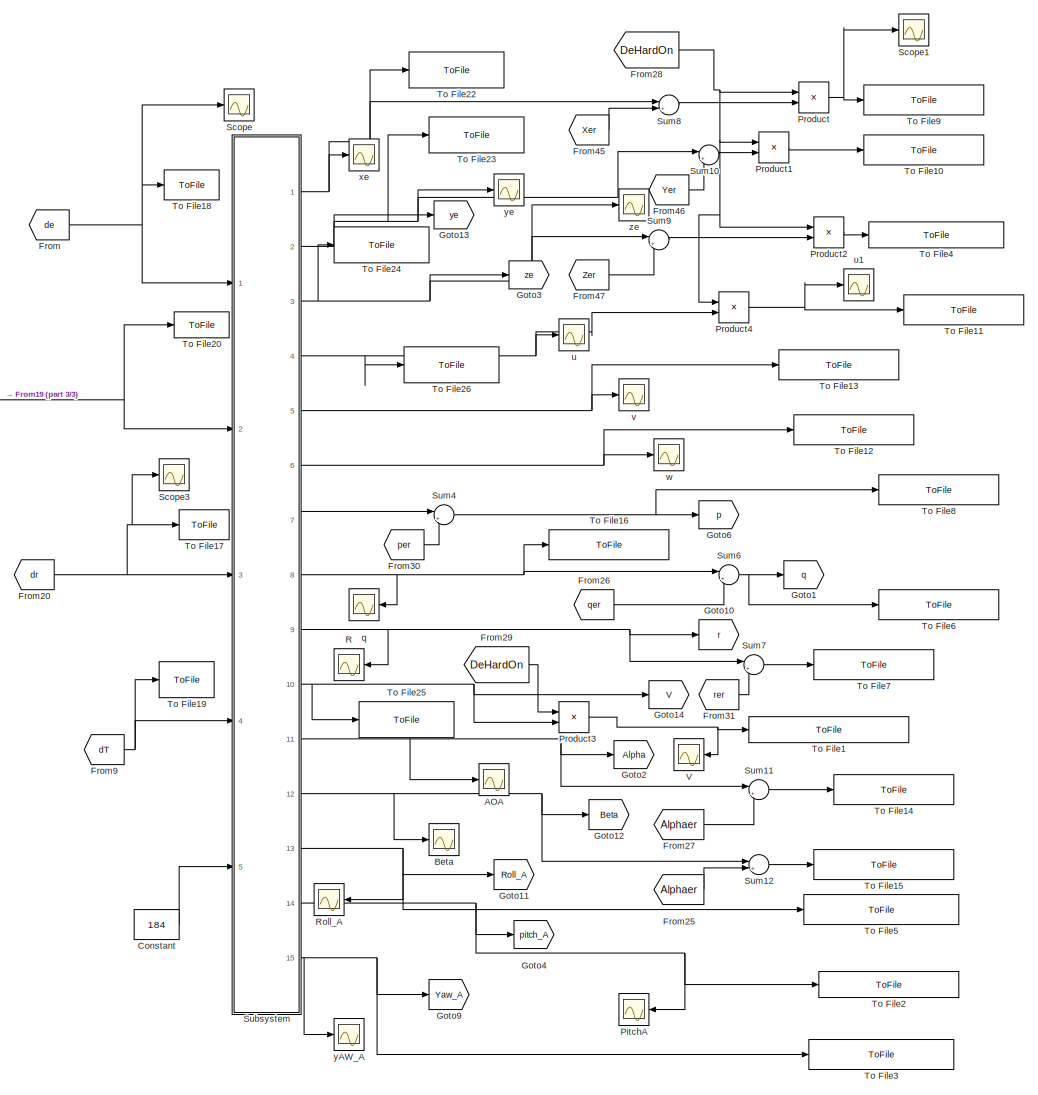
[diagram: root canvas - part 1/3, center side, full height]
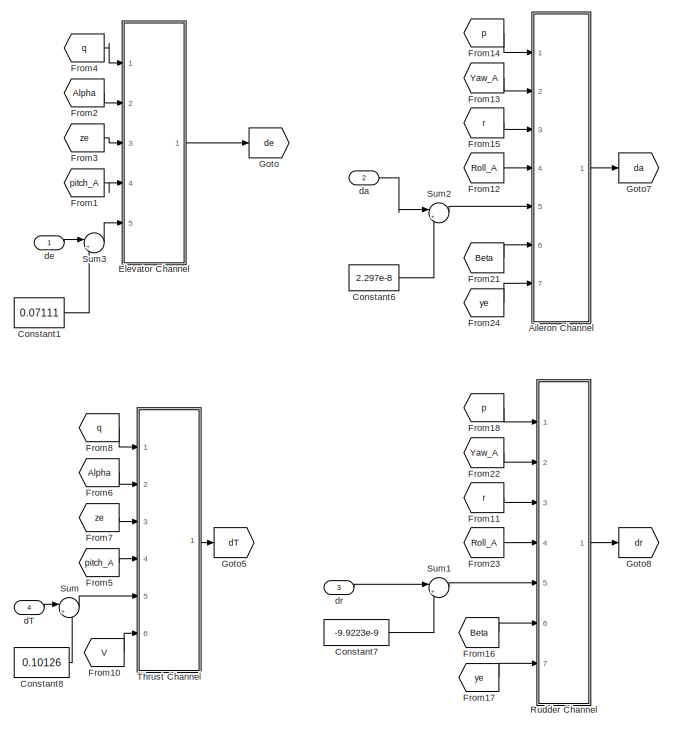
[diagram: root canvas - part 2/3, middle right region]
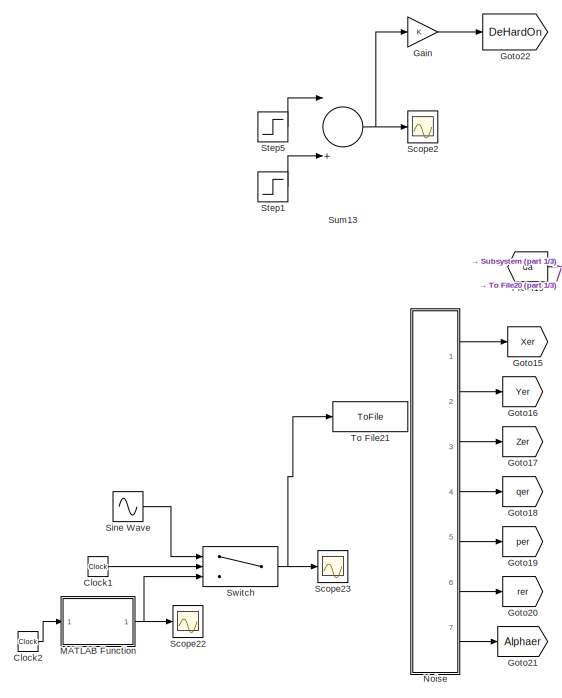
[diagram: root canvas - part 3/3, middle left region]
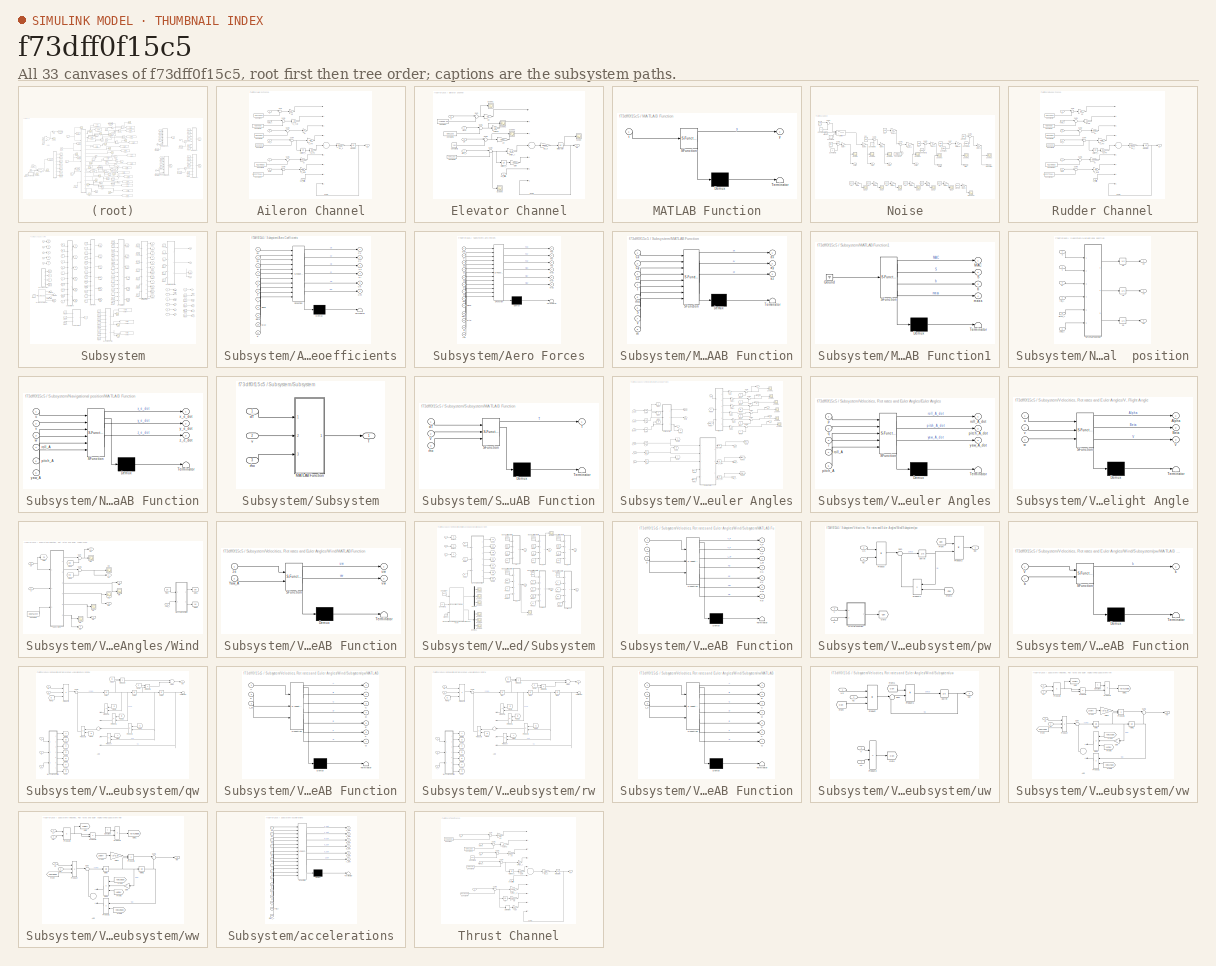
[diagram: thumbnail index - all 33 canvases of the model, root first then tree order]
MODEL slx_f73dff0f15c5
KIND model
CONFIG AbsTol = auto
CONFIG EnableMultiTasking = off
CONFIG FixedStep = auto
CONFIG MaxStep = auto
CONFIG MinStep = auto
CONFIG RelTol = 1e-3
CONFIG SampleTimeConstraint = Unconstrained
CONFIG Solver = VariableStepAuto
CONFIG SolverName = VariableStepAuto
CONFIG StartTime = 0.0
CONFIG StopTime = 200
BLOCK [Scope] AOA
  NumInputPorts = 1
  Ports = [1]
  ScopeSpecificationString = Simulink.scopes.TimeScopeBlockCfg('CurrentConfiguration', extmgr.ConfigurationSet(extmgr.Configuration('Core','General UI',true),extmgr.Configuration('Core','Source UI',true),extmgr.Configuration('Sources','WiredSimulink',true,'DataLoggingVariableName','ScopeData4'),extmgr.Configuration('Visuals','Time Domain',true,'SerializedDisplays',{struct('MinYLimReal','0.05051','MaxYLimReal','0.05129','YLabe...<+1445ch>
BLOCK [SubSystem] Aileron Channel
  Ports = [7, 1]
  RequestExecContextInheritance = off
  Variant = off
BLOCK [Inport] Aileron Channel/Beta
  IconDisplay = Port number
  Port = 6
BLOCK [Constant] Aileron Channel/Constant
  Value = -7.8474e-24
BLOCK [Constant] Aileron Channel/Constant1
  Value = 4.8875e-9
BLOCK [Constant] Aileron Channel/Constant2
  Value = 8.371e-23
BLOCK [Constant] Aileron Channel/Constant3
  Value = -1.2318e-8
BLOCK [Constant] Aileron Channel/Constant4
  Value = -5.5767751e-9
BLOCK [Constant] Aileron Channel/Constant5
  Value = -6.2148e-15
BLOCK [Integrator] Aileron Channel/Integrator
  InitialCondition = 2.297e-8
  LimitOutput = on
  LowerSaturationLimit = -0.3490658504
  Ports = [1, 1]
  UpperSaturationLimit = 0.3490658504
BLOCK [Integrator] Aileron Channel/KIpitch_A
  Ports = [1, 1]
BLOCK [Gain] Aileron Channel/K_Beta
  Gain = -0.05
  OutDataTypeStr = Inherit: Inherit via internal rule
  ParamDataTypeStr = Inherit: Inherit via internal rule
  SaturateOnIntegerOverflow = off
BLOCK [Gain] Aileron Channel/K_Phi
  Gain = -80
  OutDataTypeStr = Inherit: Inherit via internal rule
  ParamDataTypeStr = Inherit: Inherit via internal rule
  SaturateOnIntegerOverflow = off
BLOCK [Gain] Aileron Channel/K_YAW
  Gain = -20
  OutDataTypeStr = Inherit: Inherit via internal rule
  ParamDataTypeStr = Inherit: Inherit via internal rule
  SaturateOnIntegerOverflow = off
BLOCK [Gain] Aileron Channel/Ki_Phi
  Gain = -80
  OutDataTypeStr = Inherit: Inherit via internal rule
  ParamDataTypeStr = Inherit: Inherit via internal rule
  SaturateOnIntegerOverflow = off
BLOCK [Gain] Aileron Channel/Kq
  Gain = -15
  OutDataTypeStr = Inherit: Inherit via internal rule
  ParamDataTypeStr = Inherit: Inherit via internal rule
  SaturateOnIntegerOverflow = off
BLOCK [Gain] Aileron Channel/Kr
  Gain = -10
  OutDataTypeStr = Inherit: Inherit via internal rule
  ParamDataTypeStr = Inherit: Inherit via internal rule
  SaturateOnIntegerOverflow = off
BLOCK [Gain] Aileron Channel/Ky
  Gain = -0.015
  OutDataTypeStr = Inherit: Inherit via internal rule
  ParamDataTypeStr = Inherit: Inherit via internal rule
  SaturateOnIntegerOverflow = off
BLOCK [Inport] Aileron Channel/Phi_A
  IconDisplay = Port number
  Port = 4
BLOCK [Sum] Aileron Channel/Sum
  IconShape = round
  InputSameDT = off
  Inputs = |-+
  OutDataTypeStr = Inherit: Inherit via internal rule
  Ports = [2, 1]
  SaturateOnIntegerOverflow = off
BLOCK [Sum] Aileron Channel/Sum1
  IconShape = round
  InputSameDT = off
  Inputs = |-+
  OutDataTypeStr = Inherit: Inherit via internal rule
  Ports = [2, 1]
  SaturateOnIntegerOverflow = off
BLOCK [Sum] Aileron Channel/Sum2
  IconShape = round
  InputSameDT = off
  Inputs = |-+
  OutDataTypeStr = Inherit: Inherit via internal rule
  Ports = [2, 1]
  SaturateOnIntegerOverflow = off
BLOCK [Sum] Aileron Channel/Sum3
  InputSameDT = off
  Inputs = |++++++++-
  OutDataTypeStr = Inherit: Inherit via internal rule
  Ports = [9, 1]
  SaturateOnIntegerOverflow = off
BLOCK [Sum] Aileron Channel/Sum4
  IconShape = round
  InputSameDT = off
  Inputs = |-+
  OutDataTypeStr = Inherit: Inherit via internal rule
  Ports = [2, 1]
  SaturateOnIntegerOverflow = off
BLOCK [Sum] Aileron Channel/Sum5
  IconShape = round
  InputSameDT = off
  Inputs = |-+
  OutDataTypeStr = Inherit: Inherit via internal rule
  Ports = [2, 1]
  SaturateOnIntegerOverflow = off
BLOCK [Sum] Aileron Channel/Sum6
  IconShape = round
  InputSameDT = off
  Inputs = |-+
  OutDataTypeStr = Inherit: Inherit via internal rule
  Ports = [2, 1]
  SaturateOnIntegerOverflow = off
BLOCK [Inport] Aileron Channel/Yaw_A
  IconDisplay = Port number
  Port = 2
BLOCK [Outport] Aileron Channel/da
  IconDisplay = Port number
  OutMax = [0.3490658504]
  OutMin = [-0.3490658504]
BLOCK [Inport] Aileron Channel/da_Initital
  IconDisplay = Port number
  Port = 5
BLOCK [Inport] Aileron Channel/p
  IconDisplay = Port number
BLOCK [Inport] Aileron Channel/r
  IconDisplay = Port number
  Port = 3
BLOCK [Gain] Aileron Channel/tau_a
  Gain = 1/0.031
  OutDataTypeStr = Inherit: Inherit via internal rule
  ParamDataTypeStr = Inherit: Inherit via internal rule
  SaturateOnIntegerOverflow = off
BLOCK [Inport] Aileron Channel/y
  IconDisplay = Port number
  Port = 7
BLOCK [Scope] Beta 
  NumInputPorts = 1
  Ports = [1]
  ScopeSpecificationString = Simulink.scopes.TimeScopeBlockCfg('CurrentConfiguration', extmgr.ConfigurationSet(extmgr.Configuration('Core','General UI',true),extmgr.Configuration('Core','Source UI',true),extmgr.Configuration('Sources','WiredSimulink',true,'DataLoggingVariableName','ScopeData5'),extmgr.Configuration('Visuals','Time Domain',true,'SerializedDisplays',{struct('MinYLimReal','-0.00147','MaxYLimReal','0.00129','YLab...<+1446ch>
BLOCK [Clock] Clock1
BLOCK [Clock] Clock2
BLOCK [Constant] Constant
  Value = 184
BLOCK [Constant] Constant1
  Value = 0.07111
BLOCK [Constant] Constant6
  Value = 2.297e-8
BLOCK [Constant] Constant7
  Value = -9.9223e-9
BLOCK [Constant] Constant8
  Value = 0.10126
BLOCK [SubSystem] Elevator Channel
  Ports = [5, 1]
  RequestExecContextInheritance = off
  Variant = off
BLOCK [Inport] Elevator Channel/Alpha
  IconDisplay = Port number
  Port = 2
BLOCK [Constant] Elevator Channel/Constant
  Value = -7.7868e-20
BLOCK [Constant] Elevator Channel/Constant1
  Value = 0.051153
BLOCK [Constant] Elevator Channel/Constant2
  Value = 184
BLOCK [Constant] Elevator Channel/Constant3
  Value = 0.051153
BLOCK [Gain] Elevator Channel/Gain
  Gain = -0.016
  OutDataTypeStr = Inherit: Inherit via internal rule
  ParamDataTypeStr = Inherit: Inherit via internal rule
  SaturateOnIntegerOverflow = off
BLOCK [Integrator] Elevator Channel/Integrator
  InitialCondition = 0.07111
  LimitOutput = on
  LowerSaturationLimit = -0.6981317008
  Ports = [1, 1]
  UpperSaturationLimit = 0.3490658504
BLOCK [Integrator] Elevator Channel/KIpitch_A
  Ports = [1, 1]
BLOCK [Gain] Elevator Channel/KPitch_A
  Gain = -0.9
  OutDataTypeStr = Inherit: Inherit via internal rule
  ParamDataTypeStr = Inherit: Inherit via internal rule
  SaturateOnIntegerOverflow = off
BLOCK [Gain] Elevator Channel/Kalpha
  Gain = -5.1
  OutDataTypeStr = Inherit: Inherit via internal rule
  ParamDataTypeStr = Inherit: Inherit via internal rule
  SaturateOnIntegerOverflow = off
BLOCK [Gain] Elevator Channel/Kq
  Gain = -0.1
  OutDataTypeStr = Inherit: Inherit via internal rule
  ParamDataTypeStr = Inherit: Inherit via internal rule
  SaturateOnIntegerOverflow = off
BLOCK [Inport] Elevator Channel/Pitch_A
  IconDisplay = Port number
  Port = 4
BLOCK [Scope] Elevator Channel/Scope
  NumInputPorts = 1
  Ports = [1]
  ScopeSpecificationString = Simulink.scopes.TimeScopeBlockCfg('CurrentConfiguration', extmgr.ConfigurationSet(extmgr.Configuration('Core','General UI',true),extmgr.Configuration('Core','Source UI',true),extmgr.Configuration('Sources','WiredSimulink',true,'DataLoggingVariableName','ScopeData1'),extmgr.Configuration('Visuals','Time Domain',true,'SerializedDisplays',{struct('MinYLimReal','-0.82903','MaxYLimReal','0.47997','YLab...<+1413ch>
BLOCK [Scope] Elevator Channel/Scope1
  NumInputPorts = 1
  Ports = [1]
  ScopeSpecificationString = Simulink.scopes.TimeScopeBlockCfg('CurrentConfiguration', extmgr.ConfigurationSet(extmgr.Configuration('Core','General UI',true),extmgr.Configuration('Core','Source UI',true),extmgr.Configuration('Sources','WiredSimulink',true,'DataLoggingVariableName','ScopeData6'),extmgr.Configuration('Visuals','Time Domain',true,'SerializedDisplays',{struct('MinYLimReal','-0.01992','MaxYLimReal','-0.01252','YLa...<+1408ch>
BLOCK [Scope] Elevator Channel/Scope2
  NumInputPorts = 1
  Ports = [1]
  ScopeSpecificationString = Simulink.scopes.TimeScopeBlockCfg('CurrentConfiguration', extmgr.ConfigurationSet(extmgr.Configuration('Core','General UI',true),extmgr.Configuration('Core','Source UI',true),extmgr.Configuration('Sources','WiredSimulink',true,'DataLoggingVariableName','ScopeData7'),extmgr.Configuration('Visuals','Time Domain',true,'SerializedDisplays',{struct('MinYLimReal','-0.00683','MaxYLimReal','0.00673','YLab...<+1363ch>
BLOCK [Scope] Elevator Channel/Scope3
  NumInputPorts = 1
  Ports = [1]
  ScopeSpecificationString = Simulink.scopes.TimeScopeBlockCfg('CurrentConfiguration', extmgr.ConfigurationSet(extmgr.Configuration('Core','General UI',true),extmgr.Configuration('Core','Source UI',true),extmgr.Configuration('Sources','WiredSimulink',true,'DataLoggingVariableName','ScopeData8'),extmgr.Configuration('Visuals','Time Domain',true,'SerializedDisplays',{struct('MinYLimReal','-4.42364','MaxYLimReal','4.22355','YLab...<+1363ch>
BLOCK [Scope] Elevator Channel/Scope5
  NumInputPorts = 1
  Ports = [1]
  ScopeSpecificationString = Simulink.scopes.TimeScopeBlockCfg('CurrentConfiguration', extmgr.ConfigurationSet(extmgr.Configuration('Core','General UI',true),extmgr.Configuration('Core','Source UI',true),extmgr.Configuration('Sources','WiredSimulink',true,'DataLoggingVariableName','ScopeData10'),extmgr.Configuration('Visuals','Time Domain',true,'SerializedDisplays',{struct('MinYLimReal','-0.00892','MaxYLimReal','0.00603','YLa...<+1364ch>
BLOCK [Sum] Elevator Channel/Sum
  IconShape = round
  InputSameDT = off
  Inputs = |-+
  OutDataTypeStr = Inherit: Inherit via internal rule
  Ports = [2, 1]
  SaturateOnIntegerOverflow = off
BLOCK [Sum] Elevator Channel/Sum1
  IconShape = round
  InputSameDT = off
  Inputs = |-+
  OutDataTypeStr = Inherit: Inherit via internal rule
  Ports = [2, 1]
  SaturateOnIntegerOverflow = off
BLOCK [Sum] Elevator Channel/Sum2
  IconShape = round
  InputSameDT = off
  Inputs = |-+
  OutDataTypeStr = Inherit: Inherit via internal rule
  Ports = [2, 1]
  SaturateOnIntegerOverflow = off
BLOCK [Sum] Elevator Channel/Sum3
  InputSameDT = off
  Inputs = |++++++-
  OutDataTypeStr = Inherit: Inherit via internal rule
  Ports = [7, 1]
  SaturateOnIntegerOverflow = off
BLOCK [Sum] Elevator Channel/Sum4
  IconShape = round
  InputSameDT = off
  Inputs = |-+
  OutDataTypeStr = Inherit: Inherit via internal rule
  Ports = [2, 1]
  SaturateOnIntegerOverflow = off
BLOCK [Inport] Elevator Channel/Ze
  IconDisplay = Port number
  Port = 3
BLOCK [Outport] Elevator Channel/de
  IconDisplay = Port number
  OutMax = [0.3490658504]
  OutMin = [-0.6981317008504]
BLOCK [Inport] Elevator Channel/de_Initital
  IconDisplay = Port number
  Port = 5
BLOCK [Inport] Elevator Channel/q
  IconDisplay = Port number
BLOCK [Gain] Elevator Channel/tau_e
  Gain = 1/0.031
  OutDataTypeStr = Inherit: Inherit via internal rule
  ParamDataTypeStr = Inherit: Inherit via internal rule
  SaturateOnIntegerOverflow = off
BLOCK [Gain] Elevator Channel/ze
  Gain = -0.001
  OutDataTypeStr = Inherit: Inherit via internal rule
  ParamDataTypeStr = Inherit: Inherit via internal rule
  SaturateOnIntegerOverflow = off
BLOCK [From] From
  GotoTag = de
BLOCK [From] From1
  GotoTag = pitch_A
BLOCK [From] From10
  GotoTag = V
BLOCK [From] From11
  GotoTag = r
BLOCK [From] From12
  GotoTag = Roll_A
BLOCK [From] From13
  GotoTag = Yaw_A
BLOCK [From] From14
  GotoTag = p
BLOCK [From] From15
  GotoTag = r
BLOCK [From] From16
  GotoTag = Beta
BLOCK [From] From17
  GotoTag = ye
BLOCK [From] From18
  GotoTag = p
BLOCK [From] From19
  GotoTag = da
BLOCK [From] From2
  GotoTag = Alpha
BLOCK [From] From20
  GotoTag = dr
BLOCK [From] From21
  GotoTag = Beta
BLOCK [From] From22
  GotoTag = Yaw_A
BLOCK [From] From23
  GotoTag = Roll_A
BLOCK [From] From24
  GotoTag = ye
BLOCK [From] From25
  GotoTag = Alphaer
  TagVisibility = global
BLOCK [From] From26
  GotoTag = qer
  TagVisibility = global
BLOCK [From] From27
  GotoTag = Alphaer
  TagVisibility = global
BLOCK [From] From28
  GotoTag = DeHardOn
  TagVisibility = global
BLOCK [From] From29
  GotoTag = DeHardOn
  TagVisibility = global
BLOCK [From] From3
  GotoTag = ze
BLOCK [From] From30
  GotoTag = per
  TagVisibility = global
BLOCK [From] From31
  GotoTag = rer
  TagVisibility = global
BLOCK [From] From4
  GotoTag = q
BLOCK [From] From45
  GotoTag = Xer
  TagVisibility = global
BLOCK [From] From46
  GotoTag = Yer
  TagVisibility = global
BLOCK [From] From47
  GotoTag = Zer
  TagVisibility = global
BLOCK [From] From5
  GotoTag = pitch_A
BLOCK [From] From6
  GotoTag = Alpha
BLOCK [From] From7
  GotoTag = ze
BLOCK [From] From8
  GotoTag = q
BLOCK [From] From9
  GotoTag = dT
BLOCK [Gain] Gain
  OutDataTypeStr = Inherit: Inherit via internal rule
  ParamDataTypeStr = Inherit: Inherit via internal rule
  SaturateOnIntegerOverflow = off
BLOCK [Goto] Goto
  GotoTag = de
BLOCK [Goto] Goto1
  GotoTag = q
BLOCK [Goto] Goto10
  GotoTag = r
BLOCK [Goto] Goto11
  GotoTag = Roll_A
BLOCK [Goto] Goto12
  GotoTag = Beta
BLOCK [Goto] Goto13
  GotoTag = ye
BLOCK [Goto] Goto14
  GotoTag = V
BLOCK [Goto] Goto15
  GotoTag = Xer
  TagVisibility = global
BLOCK [Goto] Goto16
  GotoTag = Yer
  TagVisibility = global
BLOCK [Goto] Goto17
  GotoTag = Zer
  TagVisibility = global
BLOCK [Goto] Goto18
  GotoTag = qer
  TagVisibility = global
BLOCK [Goto] Goto19
  GotoTag = per
  TagVisibility = global
BLOCK [Goto] Goto2
  GotoTag = Alpha
BLOCK [Goto] Goto20
  GotoTag = rer
  TagVisibility = global
BLOCK [Goto] Goto21
  GotoTag = Alphaer
  TagVisibility = global
BLOCK [Goto] Goto22
  GotoTag = DeHardOn
  TagVisibility = global
BLOCK [Goto] Goto3
  GotoTag = ze
BLOCK [Goto] Goto4
  GotoTag = pitch_A
BLOCK [Goto] Goto5
  GotoTag = dT
BLOCK [Goto] Goto6
  GotoTag = p
BLOCK [Goto] Goto7
  GotoTag = da
BLOCK [Goto] Goto8
  GotoTag = dr
BLOCK [Goto] Goto9
  GotoTag = Yaw_A
BLOCK [SubSystem] MATLAB Function
  ErrorFcn = Stateflow.Translate.translate
  PermitHierarchicalResolution = ExplicitOnly
  Ports = [1, 1]
  RequestExecContextInheritance = off
  SFBlockType = MATLAB Function
  TreatAsAtomicUnit = on
  Variant = off
BLOCK [Demux] MATLAB Function/ Demux 
  Outputs = 1
  Ports = [1, 1]
BLOCK [S-Function] MATLAB Function/ SFunction 
  EnableBusSupport = on
  FunctionName = sf_sfun
  PortCounts = [1 2]
  Ports = [1, 2]
  SFcnIsStateOwnerBlock = off
  SFunctionDeploymentMode = off
  Tag = Stateflow S-Function FlightDynamicModelBlackOut 15
BLOCK [Terminator] MATLAB Function/ Terminator 
BLOCK [Inport] MATLAB Function/t
  IconDisplay = Port number
BLOCK [Outport] MATLAB Function/y
  IconDisplay = Port number
BLOCK [SubSystem] Noise
  Ports = [0, 7]
  RequestExecContextInheritance = off
  Variant = off
BLOCK [UniformRandomNumber] Noise/AlphaEr
  Maximum = 0.001*0.1014*pi/180
  Minimum = -0.001*0.1014*pi/180
  SampleTime = 0.1
BLOCK [Outport] Noise/Alphaerror
  IconDisplay = Port number
  Port = 7
BLOCK [Clock] Noise/Clock1
BLOCK [Constant] Noise/Constant
  Value = 0.1*pi/180
BLOCK [Constant] Noise/Constant1
  Value = 2*pi/180
BLOCK [Constant] Noise/Constant2
  Value = 0.1*pi/180
BLOCK [Constant] Noise/Constant3
  Value = 5
BLOCK [Constant] Noise/Constant4
  Value = 2
BLOCK [Constant] Noise/Constant5
  Value = 4
BLOCK [Constant] Noise/Constant6
  Value = 0.1*pi/180
BLOCK [Constant] Noise/Constant7
  Value = 0
BLOCK [Gain] Noise/Gain
  Gain = 0.2
  OutDataTypeStr = Inherit: Inherit via internal rule
  ParamDataTypeStr = Inherit: Inherit via internal rule
  SaturateOnIntegerOverflow = off
BLOCK [Gain] Noise/Gain1
  Gain = 0.2
  OutDataTypeStr = Inherit: Inherit via internal rule
  ParamDataTypeStr = Inherit: Inherit via internal rule
  SaturateOnIntegerOverflow = off
BLOCK [Gain] Noise/Gain10
  Gain = 0
  OutDataTypeStr = Inherit: Inherit via internal rule
  ParamDataTypeStr = Inherit: Inherit via internal rule
  SaturateOnIntegerOverflow = off
BLOCK [Gain] Noise/Gain11
  Gain = 0
  OutDataTypeStr = Inherit: Inherit via internal rule
  ParamDataTypeStr = Inherit: Inherit via internal rule
  SaturateOnIntegerOverflow = off
BLOCK [Gain] Noise/Gain12
  Gain = 0
  OutDataTypeStr = Inherit: Inherit via internal rule
  ParamDataTypeStr = Inherit: Inherit via internal rule
  SaturateOnIntegerOverflow = off
BLOCK [Gain] Noise/Gain13
  Gain = 0
  OutDataTypeStr = Inherit: Inherit via internal rule
  ParamDataTypeStr = Inherit: Inherit via internal rule
  SaturateOnIntegerOverflow = off
BLOCK [Gain] Noise/Gain14
  Gain = 0.1
  OutDataTypeStr = Inherit: Inherit via internal rule
  ParamDataTypeStr = Inherit: Inherit via internal rule
  SaturateOnIntegerOverflow = off
BLOCK [Gain] Noise/Gain2
  Gain = 0.2
  OutDataTypeStr = Inherit: Inherit via internal rule
  ParamDataTypeStr = Inherit: Inherit via internal rule
  SaturateOnIntegerOverflow = off
BLOCK [Gain] Noise/Gain3
  Gain = 0.2
  OutDataTypeStr = Inherit: Inherit via internal rule
  ParamDataTypeStr = Inherit: Inherit via internal rule
  SaturateOnIntegerOverflow = off
BLOCK [Gain] Noise/Gain4
  Gain = 0.2
  OutDataTypeStr = Inherit: Inherit via internal rule
  ParamDataTypeStr = Inherit: Inherit via internal rule
  SaturateOnIntegerOverflow = off
BLOCK [Gain] Noise/Gain5
  Gain = 0.2
  OutDataTypeStr = Inherit: Inherit via internal rule
  ParamDataTypeStr = Inherit: Inherit via internal rule
  SaturateOnIntegerOverflow = off
BLOCK [Gain] Noise/Gain6
  Gain = 0.2
  OutDataTypeStr = Inherit: Inherit via internal rule
  ParamDataTypeStr = Inherit: Inherit via internal rule
  SaturateOnIntegerOverflow = off
BLOCK [Gain] Noise/Gain7
  Gain = 0
  OutDataTypeStr = Inherit: Inherit via internal rule
  ParamDataTypeStr = Inherit: Inherit via internal rule
  SaturateOnIntegerOverflow = off
BLOCK [Gain] Noise/Gain8
  Gain = 0
  OutDataTypeStr = Inherit: Inherit via internal rule
  ParamDataTypeStr = Inherit: Inherit via internal rule
  SaturateOnIntegerOverflow = off
BLOCK [Gain] Noise/Gain9
  Gain = 0
  OutDataTypeStr = Inherit: Inherit via internal rule
  ParamDataTypeStr = Inherit: Inherit via internal rule
  SaturateOnIntegerOverflow = off
BLOCK [Scope] Noise/Scope
  NumInputPorts = 1
  Ports = [1]
  ScopeSpecificationString = Simulink.scopes.TimeScopeBlockCfg('CurrentConfiguration', extmgr.ConfigurationSet(extmgr.Configuration('Core','General UI',true),extmgr.Configuration('Core','Source UI',true),extmgr.Configuration('Sources','WiredSimulink',true,'DataLoggingVariableName','ScopeData15'),extmgr.Configuration('Visuals','Time Domain',true),extmgr.Configuration('Tools','Plot Navigation',true),extmgr.Configuration('Tools'...<+41ch>
BLOCK [Scope] Noise/Scope1
  NumInputPorts = 1
  Ports = [1]
  ScopeSpecificationString = Simulink.scopes.TimeScopeBlockCfg('CurrentConfiguration', extmgr.ConfigurationSet(extmgr.Configuration('Core','General UI',true),extmgr.Configuration('Core','Source UI',true),extmgr.Configuration('Sources','WiredSimulink',true,'DataLoggingVariableName','ScopeData10'),extmgr.Configuration('Visuals','Time Domain',true,'SerializedDisplays',{struct('MinYLimReal','-1.00000','MaxYLimReal','1.00000','YLa...<+1366ch>
BLOCK [Scope] Noise/Scope2
  NumInputPorts = 1
  Ports = [1]
  ScopeSpecificationString = Simulink.scopes.TimeScopeBlockCfg('CurrentConfiguration', extmgr.ConfigurationSet(extmgr.Configuration('Core','General UI',true),extmgr.Configuration('Core','Source UI',true),extmgr.Configuration('Sources','WiredSimulink',true,'DataLoggingVariableName','ScopeData2'),extmgr.Configuration('Visuals','Time Domain',true,'SerializedDisplays',{struct('MinYLimReal','-0.00441','MaxYLimReal','0.00441','YLab...<+1366ch>
BLOCK [Scope] Noise/Scope3
  NumInputPorts = 1
  Ports = [1]
  ScopeSpecificationString = Simulink.scopes.TimeScopeBlockCfg('CurrentConfiguration', extmgr.ConfigurationSet(extmgr.Configuration('Core','General UI',true),extmgr.Configuration('Core','Source UI',true),extmgr.Configuration('Sources','WiredSimulink',true,'DataLoggingVariableName','ScopeData11'),extmgr.Configuration('Visuals','Time Domain',true,'SerializedDisplays',{struct('MinYLimReal','-1.00000','MaxYLimReal','1.00000','YLa...<+1366ch>
BLOCK [Scope] Noise/Scope4
  NumInputPorts = 1
  Ports = [1]
  ScopeSpecificationString = Simulink.scopes.TimeScopeBlockCfg('CurrentConfiguration', extmgr.ConfigurationSet(extmgr.Configuration('Core','General UI',true),extmgr.Configuration('Core','Source UI',true),extmgr.Configuration('Sources','WiredSimulink',true,'DataLoggingVariableName','ScopeData12'),extmgr.Configuration('Visuals','Time Domain',true,'SerializedDisplays',{struct('MinYLimReal','0.0174529','MaxYLimReal','0.01745365',...<+1384ch>
BLOCK [Scope] Noise/Scope5
  NumInputPorts = 1
  Ports = [1]
  ScopeSpecificationString = Simulink.scopes.TimeScopeBlockCfg('CurrentConfiguration', extmgr.ConfigurationSet(extmgr.Configuration('Core','General UI',true),extmgr.Configuration('Core','Source UI',true),extmgr.Configuration('Sources','WiredSimulink',true,'DataLoggingVariableName','ScopeData13'),extmgr.Configuration('Visuals','Time Domain',true,'SerializedDisplays',{struct('MinYLimReal','-0.00441','MaxYLimReal','0.00441','YLa...<+1367ch>
BLOCK [Scope] Noise/Scope6
  NumInputPorts = 1
  Ports = [1]
  ScopeSpecificationString = Simulink.scopes.TimeScopeBlockCfg('CurrentConfiguration', extmgr.ConfigurationSet(extmgr.Configuration('Core','General UI',true),extmgr.Configuration('Core','Source UI',true),extmgr.Configuration('Sources','WiredSimulink',true,'DataLoggingVariableName','ScopeData14'),extmgr.Configuration('Visuals','Time Domain',true,'SerializedDisplays',{struct('MinYLimReal','-0.00441','MaxYLimReal','0.00441','YLa...<+1367ch>
BLOCK [Sum] Noise/Sum
  IconShape = round
  InputSameDT = off
  Inputs = |++
  OutDataTypeStr = Inherit: Inherit via internal rule
  Ports = [2, 1]
  SaturateOnIntegerOverflow = off
BLOCK [Sum] Noise/Sum1
  IconShape = round
  InputSameDT = off
  Inputs = |++
  OutDataTypeStr = Inherit: Inherit via internal rule
  Ports = [2, 1]
  SaturateOnIntegerOverflow = off
BLOCK [Sum] Noise/Sum2
  IconShape = round
  InputSameDT = off
  Inputs = |++
  OutDataTypeStr = Inherit: Inherit via internal rule
  Ports = [2, 1]
  SaturateOnIntegerOverflow = off
BLOCK [Sum] Noise/Sum3
  IconShape = round
  InputSameDT = off
  Inputs = |++
  OutDataTypeStr = Inherit: Inherit via internal rule
  Ports = [2, 1]
  SaturateOnIntegerOverflow = off
BLOCK [Sum] Noise/Sum4
  IconShape = round
  InputSameDT = off
  Inputs = |++
  OutDataTypeStr = Inherit: Inherit via internal rule
  Ports = [2, 1]
  SaturateOnIntegerOverflow = off
BLOCK [Sum] Noise/Sum5
  IconShape = round
  InputSameDT = off
  Inputs = |++
  OutDataTypeStr = Inherit: Inherit via internal rule
  Ports = [2, 1]
  SaturateOnIntegerOverflow = off
BLOCK [Sum] Noise/Sum6
  IconShape = round
  InputSameDT = off
  Inputs = |++
  OutDataTypeStr = Inherit: Inherit via internal rule
  Ports = [2, 1]
  SaturateOnIntegerOverflow = off
BLOCK [Switch] Noise/Switch
  InputSameDT = off
  SaturateOnIntegerOverflow = off
  Threshold = 20
BLOCK [Reference] Noise/Xe  REF=simulink/Sources/Band-Limited
White Noise
  Ports = [0, 1]
  SourceBlock = simulink/Sources/Band-Limited\nWhite Noise
  SourceProductBaseCode = SL
  SourceProductName = Simulink
  SourceType = Band-Limited White Noise.
BLOCK [Scope] Noise/XeSc
  NumInputPorts = 1
  Ports = [1]
  ScopeSpecificationString = Simulink.scopes.TimeScopeBlockCfg('CurrentConfiguration', extmgr.ConfigurationSet(extmgr.Configuration('Core','General UI',true),extmgr.Configuration('Core','Source UI',true),extmgr.Configuration('Sources','WiredSimulink',true,'DataLoggingVariableName','ScopeData3'),extmgr.Configuration('Visuals','Time Domain',true,'SerializedDisplays',{struct('MinYLimReal','-12.86598','MaxYLimReal','13.82401','YL...<+1367ch>
BLOCK [UniformRandomNumber] Noise/Xer
  Maximum = 2
  Minimum = -2
  SampleTime = 0.1
BLOCK [Outport] Noise/Xerror
  IconDisplay = Port number
BLOCK [Reference] Noise/Ye  REF=simulink/Sources/Band-Limited
White Noise
  Ports = [0, 1]
  SourceBlock = simulink/Sources/Band-Limited\nWhite Noise
  SourceProductBaseCode = SL
  SourceProductName = Simulink
  SourceType = Band-Limited White Noise.
BLOCK [Scope] Noise/YeSc
  NumInputPorts = 1
  Ports = [1]
  ScopeSpecificationString = Simulink.scopes.TimeScopeBlockCfg('CurrentConfiguration', extmgr.ConfigurationSet(extmgr.Configuration('Core','General UI',true),extmgr.Configuration('Core','Source UI',true),extmgr.Configuration('Sources','WiredSimulink',true,'DataLoggingVariableName','ScopeData5'),extmgr.Configuration('Visuals','Time Domain',true,'SerializedDisplays',{struct('MinYLimReal','-0.6433','MaxYLimReal','0.6912','YLabel...<+1358ch>
BLOCK [UniformRandomNumber] Noise/Yer
  Maximum = 0.05
  Minimum = -0.05
  SampleTime = 0.1
BLOCK [Outport] Noise/Yerror
  IconDisplay = Port number
  Port = 2
BLOCK [Reference] Noise/Ze  REF=simulink/Sources/Band-Limited
White Noise
  Ports = [0, 1]
  SourceBlock = simulink/Sources/Band-Limited\nWhite Noise
  SourceProductBaseCode = SL
  SourceProductName = Simulink
  SourceType = Band-Limited White Noise.
BLOCK [Scope] Noise/ZeSc
  NumInputPorts = 1
  Ports = [1]
  ScopeSpecificationString = Simulink.scopes.TimeScopeBlockCfg('CurrentConfiguration', extmgr.ConfigurationSet(extmgr.Configuration('Core','General UI',true),extmgr.Configuration('Core','Source UI',true),extmgr.Configuration('Sources','WiredSimulink',true,'DataLoggingVariableName','ScopeData6'),extmgr.Configuration('Visuals','Time Domain',true,'SerializedDisplays',{struct('MinYLimReal','-0.90976','MaxYLimReal','0.97751','YLab...<+1364ch>
BLOCK [UniformRandomNumber] Noise/Zer
  SampleTime = 0.1
BLOCK [Outport] Noise/Zerror
  IconDisplay = Port number
  Port = 3
BLOCK [Reference] Noise/alphae  REF=simulink/Sources/Band-Limited
White Noise
  Ports = [0, 1]
  SourceBlock = simulink/Sources/Band-Limited\nWhite Noise
  SourceProductBaseCode = SL
  SourceProductName = Simulink
  SourceType = Band-Limited White Noise.
BLOCK [Scope] Noise/alphaeSc
  NumInputPorts = 1
  Ports = [1]
  ScopeSpecificationString = Simulink.scopes.TimeScopeBlockCfg('CurrentConfiguration', extmgr.ConfigurationSet(extmgr.Configuration('Core','General UI',true),extmgr.Configuration('Core','Source UI',true),extmgr.Configuration('Sources','WiredSimulink',true,'DataLoggingVariableName','ScopeData8'),extmgr.Configuration('Visuals','Time Domain',true,'SerializedDisplays',{struct('MinYLimReal','-0.00257','MaxYLimReal','0.00276','YLab...<+1364ch>
BLOCK [UniformRandomNumber] Noise/pEr
  Maximum = 0.001*1.8707*pi/180
  Minimum = -0.001*1.8707*pi/180
  SampleTime = 0.1
BLOCK [Reference] Noise/pe  REF=simulink/Sources/Band-Limited
White Noise
  Ports = [0, 1]
  SourceBlock = simulink/Sources/Band-Limited\nWhite Noise
  SourceProductBaseCode = SL
  SourceProductName = Simulink
  SourceType = Band-Limited White Noise.
BLOCK [Scope] Noise/peSc
  NumInputPorts = 1
  Ports = [1]
  ScopeSpecificationString = Simulink.scopes.TimeScopeBlockCfg('CurrentConfiguration', extmgr.ConfigurationSet(extmgr.Configuration('Core','General UI',true),extmgr.Configuration('Core','Source UI',true),extmgr.Configuration('Sources','WiredSimulink',true,'DataLoggingVariableName','ScopeData7'),extmgr.Configuration('Visuals','Time Domain',true,'SerializedDisplays',{struct('MinYLimReal','-2.94144','MaxYLimReal','3.76225','YLab...<+1359ch>
BLOCK [Outport] Noise/perror
  IconDisplay = Port number
  Port = 5
BLOCK [UniformRandomNumber] Noise/qEr
  Maximum = 0.001*1.8707*pi/180
  Minimum = -0.001*1.8707*pi/180
  SampleTime = 0.1
BLOCK [Reference] Noise/qe  REF=simulink/Sources/Band-Limited
White Noise
  Ports = [0, 1]
  SourceBlock = simulink/Sources/Band-Limited\nWhite Noise
  SourceProductBaseCode = SL
  SourceProductName = Simulink
  SourceType = Band-Limited White Noise.
BLOCK [Scope] Noise/qeSc
  NumInputPorts = 1
  Ports = [1]
  ScopeSpecificationString = Simulink.scopes.TimeScopeBlockCfg('CurrentConfiguration', extmgr.ConfigurationSet(extmgr.Configuration('Core','General UI',true),extmgr.Configuration('Core','Source UI',true),extmgr.Configuration('Sources','WiredSimulink',true,'DataLoggingVariableName','ScopeData4'),extmgr.Configuration('Visuals','Time Domain',true,'SerializedDisplays',{struct('MinYLimReal','-0.02877','MaxYLimReal','0.03091','YLab...<+1364ch>
BLOCK [Outport] Noise/qerror
  IconDisplay = Port number
  Port = 4
BLOCK [UniformRandomNumber] Noise/rEr
  Maximum = 0.001*1.8707*pi/180
  Minimum = -0.001*1.8707*pi/180
  SampleTime = 0.1
BLOCK [Reference] Noise/re  REF=simulink/Sources/Band-Limited
White Noise
  Ports = [0, 1]
  SourceBlock = simulink/Sources/Band-Limited\nWhite Noise
  SourceProductBaseCode = SL
  SourceProductName = Simulink
  SourceType = Band-Limited White Noise.
BLOCK [Scope] Noise/reSc
  NumInputPorts = 1
  Ports = [1]
  ScopeSpecificationString = Simulink.scopes.TimeScopeBlockCfg('CurrentConfiguration', extmgr.ConfigurationSet(extmgr.Configuration('Core','General UI',true),extmgr.Configuration('Core','Source UI',true),extmgr.Configuration('Sources','WiredSimulink',true,'DataLoggingVariableName','ScopeData9'),extmgr.Configuration('Visuals','Time Domain',true,'SerializedDisplays',{struct('MinYLimReal','-0.02877','MaxYLimReal','0.03091','YLab...<+1364ch>
BLOCK [Outport] Noise/rerror
  IconDisplay = Port number
  Port = 6
BLOCK [Scope] PitchA
  NumInputPorts = 1
  Ports = [1]
  ScopeSpecificationString = Simulink.scopes.TimeScopeBlockCfg('CurrentConfiguration', extmgr.ConfigurationSet(extmgr.Configuration('Core','General UI',true),extmgr.Configuration('Core','Source UI',true),extmgr.Configuration('Sources','WiredSimulink',true,'DataLoggingVariableName','ScopeData1'),extmgr.Configuration('Visuals','Time Domain',true,'SerializedDisplays',{struct('MinYLimReal','0.051143','MaxYLimReal','0.05123','YLab...<+1446ch>
BLOCK [Product] Product
  InputSameDT = off
  OutDataTypeStr = Inherit: Inherit via internal rule
  Ports = [2, 1]
  RndMeth = Floor
  SaturateOnIntegerOverflow = off
BLOCK [Product] Product1
  InputSameDT = off
  OutDataTypeStr = Inherit: Inherit via internal rule
  Ports = [2, 1]
  RndMeth = Floor
  SaturateOnIntegerOverflow = off
BLOCK [Product] Product2
  InputSameDT = off
  OutDataTypeStr = Inherit: Inherit via internal rule
  Ports = [2, 1]
  RndMeth = Floor
  SaturateOnIntegerOverflow = off
BLOCK [Product] Product3
  InputSameDT = off
  OutDataTypeStr = Inherit: Inherit via internal rule
  Ports = [2, 1]
  RndMeth = Floor
  SaturateOnIntegerOverflow = off
BLOCK [Product] Product4
  InputSameDT = off
  OutDataTypeStr = Inherit: Inherit via internal rule
  Ports = [2, 1]
  RndMeth = Floor
  SaturateOnIntegerOverflow = off
BLOCK [Scope] R 
  NumInputPorts = 1
  Ports = [1]
  ScopeSpecificationString = Simulink.scopes.TimeScopeBlockCfg('CurrentConfiguration', extmgr.ConfigurationSet(extmgr.Configuration('Core','General UI',true),extmgr.Configuration('Core','Source UI',true),extmgr.Configuration('Sources','WiredSimulink',true,'DataLoggingVariableName','ScopeData6'),extmgr.Configuration('Visuals','Time Domain',true,'SerializedDisplays',{struct('MinYLimReal','-0.14964','MaxYLimReal','0.11679','YLab...<+1443ch>
BLOCK [Scope] Roll_A 
  NumInputPorts = 1
  Ports = [1]
  ScopeSpecificationString = Simulink.scopes.TimeScopeBlockCfg('CurrentConfiguration', extmgr.ConfigurationSet(extmgr.Configuration('Core','General UI',true),extmgr.Configuration('Core','Source UI',true),extmgr.Configuration('Sources','WiredSimulink',true,'DataLoggingVariableName','ScopeData7'),extmgr.Configuration('Visuals','Time Domain',true,'SerializedDisplays',{struct('MinYLimReal','-0.01219','MaxYLimReal','0.00868','YLab...<+1444ch>
BLOCK [SubSystem] Rudder Channel
  Ports = [7, 1]
  RequestExecContextInheritance = off
  Variant = off
BLOCK [Inport] Rudder Channel/Beta
  IconDisplay = Port number
  Port = 6
BLOCK [Constant] Rudder Channel/Constant10
  Value = -5.5767751e-9
BLOCK [Constant] Rudder Channel/Constant11
  Value = -6.2148e-15
BLOCK [Constant] Rudder Channel/Constant6
  Value = -7.8474e-24
BLOCK [Constant] Rudder Channel/Constant7
  Value = 4.8875e-9
BLOCK [Constant] Rudder Channel/Constant8
  Value = 8.371e-23
BLOCK [Constant] Rudder Channel/Constant9
  Value = -1.2318e-8
BLOCK [Integrator] Rudder Channel/Integrator
  InitialCondition = -9.9223e-9
  LimitOutput = on
  LowerSaturationLimit = -0.5235987756
  Ports = [1, 1]
  UpperSaturationLimit = 0.5235987756
BLOCK [Integrator] Rudder Channel/KIpitch_A
  Ports = [1, 1]
BLOCK [Gain] Rudder Channel/K_Beta
  Gain = -1.8
  OutDataTypeStr = Inherit: Inherit via internal rule
  ParamDataTypeStr = Inherit: Inherit via internal rule
  SaturateOnIntegerOverflow = off
BLOCK [Gain] Rudder Channel/K_Phi
  Gain = -0.25
  OutDataTypeStr = Inherit: Inherit via internal rule
  ParamDataTypeStr = Inherit: Inherit via internal rule
  SaturateOnIntegerOverflow = off
BLOCK [Gain] Rudder Channel/Ki_Phi
  Gain = -0.025
  OutDataTypeStr = Inherit: Inherit via internal rule
  ParamDataTypeStr = Inherit: Inherit via internal rule
  SaturateOnIntegerOverflow = off
BLOCK [Gain] Rudder Channel/Kp
  Gain = -0.1
  OutDataTypeStr = Inherit: Inherit via internal rule
  ParamDataTypeStr = Inherit: Inherit via internal rule
  SaturateOnIntegerOverflow = off
BLOCK [Gain] Rudder Channel/Ky
  Gain = -0.0045
  OutDataTypeStr = Inherit: Inherit via internal rule
  ParamDataTypeStr = Inherit: Inherit via internal rule
  SaturateOnIntegerOverflow = off
BLOCK [Gain] Rudder Channel/Kyaw
  Gain = -1.5
  OutDataTypeStr = Inherit: Inherit via internal rule
  ParamDataTypeStr = Inherit: Inherit via internal rule
  SaturateOnIntegerOverflow = off
BLOCK [Inport] Rudder Channel/Phi_A
  IconDisplay = Port number
  Port = 4
BLOCK [Sum] Rudder Channel/Sum
  IconShape = round
  InputSameDT = off
  Inputs = |-+
  OutDataTypeStr = Inherit: Inherit via internal rule
  Ports = [2, 1]
  SaturateOnIntegerOverflow = off
BLOCK [Sum] Rudder Channel/Sum1
  IconShape = round
  InputSameDT = off
  Inputs = |-+
  OutDataTypeStr = Inherit: Inherit via internal rule
  Ports = [2, 1]
  SaturateOnIntegerOverflow = off
BLOCK [Sum] Rudder Channel/Sum2
  IconShape = round
  InputSameDT = off
  Inputs = |-+
  OutDataTypeStr = Inherit: Inherit via internal rule
  Ports = [2, 1]
  SaturateOnIntegerOverflow = off
BLOCK [Sum] Rudder Channel/Sum3
  InputSameDT = off
  Inputs = |++++++++-
  OutDataTypeStr = Inherit: Inherit via internal rule
  Ports = [9, 1]
  SaturateOnIntegerOverflow = off
BLOCK [Sum] Rudder Channel/Sum4
  IconShape = round
  InputSameDT = off
  Inputs = |-+
  OutDataTypeStr = Inherit: Inherit via internal rule
  Ports = [2, 1]
  SaturateOnIntegerOverflow = off
BLOCK [Sum] Rudder Channel/Sum5
  IconShape = round
  InputSameDT = off
  Inputs = |-+
  OutDataTypeStr = Inherit: Inherit via internal rule
  Ports = [2, 1]
  SaturateOnIntegerOverflow = off
BLOCK [Sum] Rudder Channel/Sum6
  IconShape = round
  InputSameDT = off
  Inputs = |-+
  OutDataTypeStr = Inherit: Inherit via internal rule
  Ports = [2, 1]
  SaturateOnIntegerOverflow = off
BLOCK [Inport] Rudder Channel/Yaw_A
  IconDisplay = Port number
  Port = 2
BLOCK [Outport] Rudder Channel/dr
  IconDisplay = Port number
  OutMax = [0.5235987756]
  OutMin = [-0.5235987756]
BLOCK [Inport] Rudder Channel/dr_Initital
  IconDisplay = Port number
  Port = 5
BLOCK [Gain] Rudder Channel/kr 
  Gain = -0.008
  OutDataTypeStr = Inherit: Inherit via internal rule
  ParamDataTypeStr = Inherit: Inherit via internal rule
  SaturateOnIntegerOverflow = off
BLOCK [Inport] Rudder Channel/p
  IconDisplay = Port number
BLOCK [Inport] Rudder Channel/r
  IconDisplay = Port number
  Port = 3
BLOCK [Gain] Rudder Channel/tau_r
  Gain = 1/0.031
  OutDataTypeStr = Inherit: Inherit via internal rule
  ParamDataTypeStr = Inherit: Inherit via internal rule
  SaturateOnIntegerOverflow = off
BLOCK [Inport] Rudder Channel/y
  IconDisplay = Port number
  Port = 7
BLOCK [Scope] Scope
  NumInputPorts = 1
  Ports = [1]
  ScopeSpecificationString = Simulink.scopes.TimeScopeBlockCfg('CurrentConfiguration', extmgr.ConfigurationSet(extmgr.Configuration('Core','General UI',true),extmgr.Configuration('Core','Source UI',true),extmgr.Configuration('Sources','WiredSimulink',true,'DataLoggingVariableName','ScopeData6'),extmgr.Configuration('Visuals','Time Domain',true,'SerializedDisplays',{struct('MinYLimReal','0.07073','MaxYLimReal','0.07144','YLabe...<+1428ch>
BLOCK [Scope] Scope1
  NumInputPorts = 1
  Ports = [1]
  ScopeSpecificationString = Simulink.scopes.TimeScopeBlockCfg('CurrentConfiguration', extmgr.ConfigurationSet(extmgr.Configuration('Core','General UI',true),extmgr.Configuration('Core','Source UI',true),extmgr.Configuration('Sources','WiredSimulink',true,'DataLoggingVariableName','ScopeData1'),extmgr.Configuration('Visuals','Time Domain',true,'SerializedDisplays',{struct('MinYLimReal','-1127.01743','MaxYLimReal','10143.1569'...<+1442ch>
BLOCK [Scope] Scope2
  NumInputPorts = 1
  Ports = [1]
  ScopeSpecificationString = Simulink.scopes.TimeScopeBlockCfg('CurrentConfiguration', extmgr.ConfigurationSet(extmgr.Configuration('Core','General UI',true),extmgr.Configuration('Core','Source UI',true),extmgr.Configuration('Sources','WiredSimulink',true,'DataLoggingVariableName','ScopeData1'),extmgr.Configuration('Visuals','Time Domain',true,'SerializedDisplays',{struct('MinYLimReal','-0.125','MaxYLimReal','1.125','YLabelRe...<+1406ch>
BLOCK [Scope] Scope22
  NumInputPorts = 1
  Ports = [1]
  ScopeSpecificationString = Simulink.scopes.TimeScopeBlockCfg('CurrentConfiguration', extmgr.ConfigurationSet(extmgr.Configuration('Core','General UI',true),extmgr.Configuration('Core','Source UI',true),extmgr.Configuration('Sources','WiredSimulink',true,'DataLoggingVariableName','ScopeData2'),extmgr.Configuration('Visuals','Time Domain',true,'SerializedDisplays',{struct('MinYLimReal','-0.28778','MaxYLimReal','0.29754','YLab...<+1374ch>
BLOCK [Scope] Scope23
  NumInputPorts = 1
  Ports = [1]
  ScopeSpecificationString = Simulink.scopes.TimeScopeBlockCfg('CurrentConfiguration', extmgr.ConfigurationSet(extmgr.Configuration('Core','General UI',true),extmgr.Configuration('Core','Source UI',true),extmgr.Configuration('Sources','WiredSimulink',true,'DataLoggingVariableName','ScopeData3'),extmgr.Configuration('Visuals','Time Domain',true,'SerializedDisplays',{struct('MinYLimReal','-0.23012','MaxYLimReal','0.21946','YLab...<+1392ch>
BLOCK [Scope] Scope3
  NumInputPorts = 1
  Ports = [1]
  ScopeSpecificationString = Simulink.scopes.TimeScopeBlockCfg('CurrentConfiguration', extmgr.ConfigurationSet(extmgr.Configuration('Core','General UI',true),extmgr.Configuration('Core','Source UI',true),extmgr.Configuration('Sources','WiredSimulink',true,'DataLoggingVariableName','ScopeData2'),extmgr.Configuration('Visuals','Time Domain',true,'SerializedDisplays',{struct('MinYLimReal','-0.00551','MaxYLimReal','0.00378','YLab...<+1373ch>
BLOCK [Sin] Sine Wave
  Amplitude = 0.1745
  Frequency = 0.1833
  Phase = pi
  Ports = [0, 1]
  SampleTime = 0
BLOCK [Step] Step1
  SampleTime = 20
  Time = 80
BLOCK [Step] Step5
  After = 0
  Before = 1
  SampleTime = 20
  Time = 40
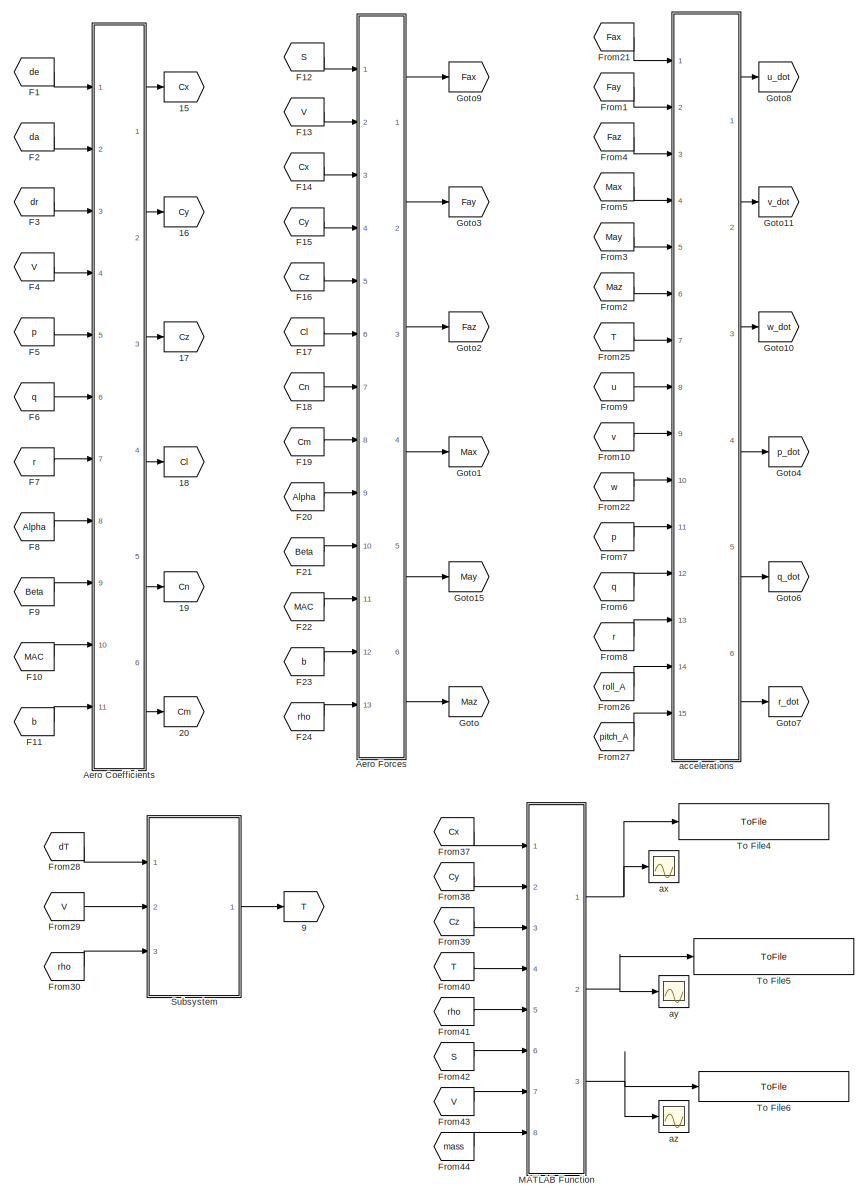
[diagram: Subsystem - part 1/3, center side, full height]
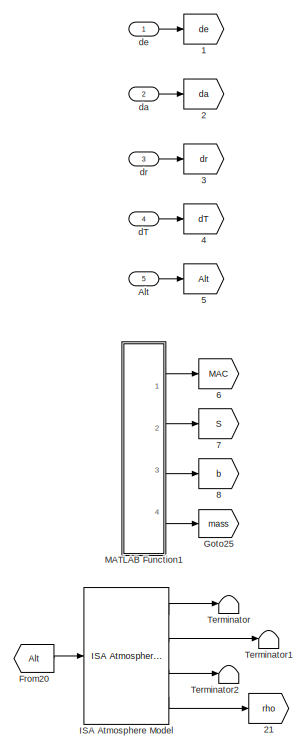
[diagram: Subsystem - part 2/3, top left region]
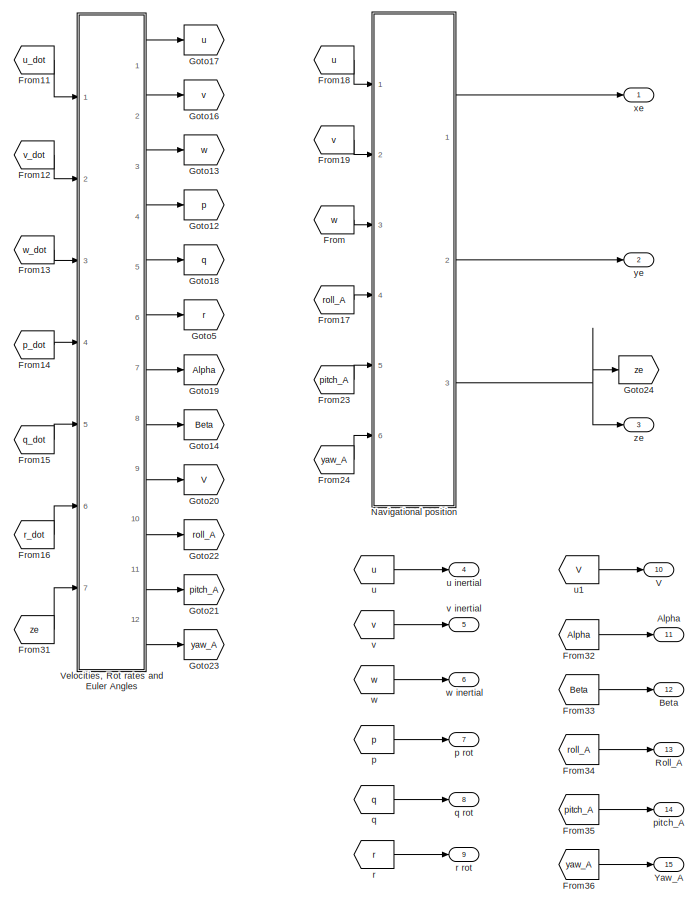
[diagram: Subsystem - part 3/3, right side, full height]
BLOCK [SubSystem] Subsystem
  Ports = [5, 15]
  RequestExecContextInheritance = off
  Variant = off
BLOCK [Goto] Subsystem/1
  GotoTag = de
BLOCK [Goto] Subsystem/15
  GotoTag = Cx
BLOCK [Goto] Subsystem/16
  GotoTag = Cy
BLOCK [Goto] Subsystem/17
  GotoTag = Cz
BLOCK [Goto] Subsystem/18
  GotoTag = Cl
BLOCK [Goto] Subsystem/19
  GotoTag = Cn
BLOCK [Goto] Subsystem/2
  GotoTag = da
BLOCK [Goto] Subsystem/20
  GotoTag = Cm
BLOCK [Goto] Subsystem/21
  GotoTag = rho
BLOCK [Goto] Subsystem/3
  GotoTag = dr
BLOCK [Goto] Subsystem/4
  GotoTag = dT
BLOCK [Goto] Subsystem/5
  GotoTag = Alt
BLOCK [Goto] Subsystem/6
  GotoTag = MAC
BLOCK [Goto] Subsystem/7
  GotoTag = S
BLOCK [Goto] Subsystem/8
  GotoTag = b
BLOCK [Goto] Subsystem/9
  GotoTag = T
BLOCK [SubSystem] Subsystem/Aero Coefficients
  ErrorFcn = Stateflow.Translate.translate
  PermitHierarchicalResolution = ExplicitOnly
  Ports = [11, 6]
  RequestExecContextInheritance = off
  SFBlockType = MATLAB Function
  TreatAsAtomicUnit = on
  Variant = off
BLOCK [Demux] Subsystem/Aero Coefficients/ Demux 
  Outputs = 1
  Ports = [1, 1]
BLOCK [S-Function] Subsystem/Aero Coefficients/ SFunction 
  EnableBusSupport = on
  FunctionName = sf_sfun
  PortCounts = [11 7]
  Ports = [11, 7]
  SFcnIsStateOwnerBlock = off
  SFunctionDeploymentMode = off
  Tag = Stateflow S-Function FlightDynamicModelBlackOut 2
BLOCK [Terminator] Subsystem/Aero Coefficients/ Terminator 
BLOCK [Inport] Subsystem/Aero Coefficients/Beta
  IconDisplay = Port number
  Port = 9
BLOCK [Outport] Subsystem/Aero Coefficients/Cl
  IconDisplay = Port number
  Port = 4
BLOCK [Outport] Subsystem/Aero Coefficients/Cm
  IconDisplay = Port number
  Port = 6
BLOCK [Outport] Subsystem/Aero Coefficients/Cn
  IconDisplay = Port number
  Port = 5
BLOCK [Outport] Subsystem/Aero Coefficients/Cx
  IconDisplay = Port number
BLOCK [Outport] Subsystem/Aero Coefficients/Cy
  IconDisplay = Port number
  Port = 2
BLOCK [Outport] Subsystem/Aero Coefficients/Cz
  IconDisplay = Port number
  Port = 3
BLOCK [Inport] Subsystem/Aero Coefficients/MAC
  IconDisplay = Port number
  Port = 10
BLOCK [Inport] Subsystem/Aero Coefficients/V
  IconDisplay = Port number
  Port = 4
BLOCK [Inport] Subsystem/Aero Coefficients/alpha
  IconDisplay = Port number
  Port = 8
BLOCK [Inport] Subsystem/Aero Coefficients/b
  IconDisplay = Port number
  Port = 11
BLOCK [Inport] Subsystem/Aero Coefficients/da
  IconDisplay = Port number
  Port = 2
BLOCK [Inport] Subsystem/Aero Coefficients/de
  IconDisplay = Port number
BLOCK [Inport] Subsystem/Aero Coefficients/dr
  IconDisplay = Port number
  Port = 3
BLOCK [Inport] Subsystem/Aero Coefficients/p
  IconDisplay = Port number
  Port = 5
BLOCK [Inport] Subsystem/Aero Coefficients/q
  IconDisplay = Port number
  Port = 6
BLOCK [Inport] Subsystem/Aero Coefficients/r
  IconDisplay = Port number
  Port = 7
BLOCK [SubSystem] Subsystem/Aero Forces
  ErrorFcn = Stateflow.Translate.translate
  PermitHierarchicalResolution = ExplicitOnly
  Ports = [13, 6]
  RequestExecContextInheritance = off
  SFBlockType = MATLAB Function
  TreatAsAtomicUnit = on
  Variant = off
BLOCK [Demux] Subsystem/Aero Forces/ Demux 
  Outputs = 1
  Ports = [1, 1]
BLOCK [S-Function] Subsystem/Aero Forces/ SFunction 
  EnableBusSupport = on
  FunctionName = sf_sfun
  PortCounts = [13 7]
  Ports = [13, 7]
  SFcnIsStateOwnerBlock = off
  SFunctionDeploymentMode = off
  Tag = Stateflow S-Function FlightDynamicModelBlackOut 3
BLOCK [Terminator] Subsystem/Aero Forces/ Terminator 
BLOCK [Inport] Subsystem/Aero Forces/Beta
  IconDisplay = Port number
  Port = 10
BLOCK [Inport] Subsystem/Aero Forces/Cl
  IconDisplay = Port number
  Port = 6
BLOCK [Inport] Subsystem/Aero Forces/Cm
  IconDisplay = Port number
  Port = 8
BLOCK [Inport] Subsystem/Aero Forces/Cn
  IconDisplay = Port number
  Port = 7
BLOCK [Inport] Subsystem/Aero Forces/Cx
  IconDisplay = Port number
  Port = 3
BLOCK [Inport] Subsystem/Aero Forces/Cy
  IconDisplay = Port number
  Port = 4
BLOCK [Inport] Subsystem/Aero Forces/Cz
  IconDisplay = Port number
  Port = 5
BLOCK [Outport] Subsystem/Aero Forces/Fax
  IconDisplay = Port number
BLOCK [Outport] Subsystem/Aero Forces/Fay
  IconDisplay = Port number
  Port = 2
BLOCK [Outport] Subsystem/Aero Forces/Faz
  IconDisplay = Port number
  Port = 3
BLOCK [Inport] Subsystem/Aero Forces/MAC
  IconDisplay = Port number
  Port = 11
BLOCK [Outport] Subsystem/Aero Forces/Max
  IconDisplay = Port number
  Port = 4
BLOCK [Outport] Subsystem/Aero Forces/May
  IconDisplay = Port number
  Port = 5
BLOCK [Outport] Subsystem/Aero Forces/Maz
  IconDisplay = Port number
  Port = 6
BLOCK [Inport] Subsystem/Aero Forces/Sref
  IconDisplay = Port number
BLOCK [Inport] Subsystem/Aero Forces/V
  IconDisplay = Port number
  Port = 2
BLOCK [Inport] Subsystem/Aero Forces/alpha
  IconDisplay = Port number
  Port = 9
BLOCK [Inport] Subsystem/Aero Forces/b
  IconDisplay = Port number
  Port = 12
BLOCK [Inport] Subsystem/Aero Forces/rho
  IconDisplay = Port number
  Port = 13
BLOCK [Outport] Subsystem/Alpha
  IconDisplay = Port number
  Port = 11
BLOCK [Inport] Subsystem/Alt
  IconDisplay = Port number
  Port = 5
BLOCK [Outport] Subsystem/Beta
  IconDisplay = Port number
  Port = 12
BLOCK [From] Subsystem/F1
  GotoTag = de
BLOCK [From] Subsystem/F10
  GotoTag = MAC
BLOCK [From] Subsystem/F11
  GotoTag = b
BLOCK [From] Subsystem/F12
  GotoTag = S
BLOCK [From] Subsystem/F13
  GotoTag = V
BLOCK [From] Subsystem/F14
  GotoTag = Cx
BLOCK [From] Subsystem/F15
  GotoTag = Cy
BLOCK [From] Subsystem/F16
  GotoTag = Cz
BLOCK [From] Subsystem/F17
  GotoTag = Cl
BLOCK [From] Subsystem/F18
  GotoTag = Cn
BLOCK [From] Subsystem/F19
  GotoTag = Cm
BLOCK [From] Subsystem/F2
  GotoTag = da
BLOCK [From] Subsystem/F20
  GotoTag = Alpha
BLOCK [From] Subsystem/F21
  GotoTag = Beta
BLOCK [From] Subsystem/F22
  GotoTag = MAC
BLOCK [From] Subsystem/F23
  GotoTag = b
BLOCK [From] Subsystem/F24
  GotoTag = rho
BLOCK [From] Subsystem/F3
  GotoTag = dr
BLOCK [From] Subsystem/F4
  GotoTag = V
BLOCK [From] Subsystem/F5
  GotoTag = p
BLOCK [From] Subsystem/F6
  GotoTag = q
BLOCK [From] Subsystem/F7
  GotoTag = r
BLOCK [From] Subsystem/F8
  GotoTag = Alpha
BLOCK [From] Subsystem/F9
  GotoTag = Beta
BLOCK [From] Subsystem/From
  GotoTag = w
BLOCK [From] Subsystem/From1
  GotoTag = Fay
BLOCK [From] Subsystem/From10
  GotoTag = v
BLOCK [From] Subsystem/From11
  GotoTag = u_dot
BLOCK [From] Subsystem/From12
  GotoTag = v_dot
BLOCK [From] Subsystem/From13
  GotoTag = w_dot
BLOCK [From] Subsystem/From14
  GotoTag = p_dot
BLOCK [From] Subsystem/From15
  GotoTag = q_dot
BLOCK [From] Subsystem/From16
  GotoTag = r_dot
BLOCK [From] Subsystem/From17
  GotoTag = roll_A
BLOCK [From] Subsystem/From18
  GotoTag = u
BLOCK [From] Subsystem/From19
  GotoTag = v
BLOCK [From] Subsystem/From2
  GotoTag = Maz
BLOCK [From] Subsystem/From20
  GotoTag = Alt
BLOCK [From] Subsystem/From21
  GotoTag = Fax
BLOCK [From] Subsystem/From22
  GotoTag = w
BLOCK [From] Subsystem/From23
  GotoTag = pitch_A
BLOCK [From] Subsystem/From24
  GotoTag = yaw_A
BLOCK [From] Subsystem/From25
  GotoTag = T
BLOCK [From] Subsystem/From26
  GotoTag = roll_A
BLOCK [From] Subsystem/From27
  GotoTag = pitch_A
BLOCK [From] Subsystem/From28
  GotoTag = dT
BLOCK [From] Subsystem/From29
  GotoTag = V
BLOCK [From] Subsystem/From3
  GotoTag = May
BLOCK [From] Subsystem/From30
  GotoTag = rho
BLOCK [From] Subsystem/From31
  GotoTag = ze
BLOCK [From] Subsystem/From32
  GotoTag = Alpha
BLOCK [From] Subsystem/From33
  GotoTag = Beta
BLOCK [From] Subsystem/From34
  GotoTag = roll_A
BLOCK [From] Subsystem/From35
  GotoTag = pitch_A
BLOCK [From] Subsystem/From36
  GotoTag = yaw_A
BLOCK [From] Subsystem/From37
  GotoTag = Cx
BLOCK [From] Subsystem/From38
  GotoTag = Cy
BLOCK [From] Subsystem/From39
  GotoTag = Cz
BLOCK [From] Subsystem/From4
  GotoTag = Faz
BLOCK [From] Subsystem/From40
  GotoTag = T
BLOCK [From] Subsystem/From41
  GotoTag = rho
BLOCK [From] Subsystem/From42
  GotoTag = S
BLOCK [From] Subsystem/From43
  GotoTag = V
BLOCK [From] Subsystem/From44
  GotoTag = mass
BLOCK [From] Subsystem/From5
  GotoTag = Max
BLOCK [From] Subsystem/From6
  GotoTag = q
BLOCK [From] Subsystem/From7
  GotoTag = p
BLOCK [From] Subsystem/From8
  GotoTag = r
BLOCK [From] Subsystem/From9
  GotoTag = u
BLOCK [Goto] Subsystem/Goto
  GotoTag = Maz
BLOCK [Goto] Subsystem/Goto1
  GotoTag = Max
BLOCK [Goto] Subsystem/Goto10
  GotoTag = w_dot
BLOCK [Goto] Subsystem/Goto11
  GotoTag = v_dot
BLOCK [Goto] Subsystem/Goto12
  GotoTag = p
BLOCK [Goto] Subsystem/Goto13
  GotoTag = w
BLOCK [Goto] Subsystem/Goto14
  GotoTag = Beta
BLOCK [Goto] Subsystem/Goto15
  GotoTag = May
BLOCK [Goto] Subsystem/Goto16
  GotoTag = v
BLOCK [Goto] Subsystem/Goto17
  GotoTag = u
BLOCK [Goto] Subsystem/Goto18
  GotoTag = q
BLOCK [Goto] Subsystem/Goto19
  GotoTag = Alpha
BLOCK [Goto] Subsystem/Goto2
  GotoTag = Faz
BLOCK [Goto] Subsystem/Goto20
  GotoTag = V
BLOCK [Goto] Subsystem/Goto21
  GotoTag = pitch_A
BLOCK [Goto] Subsystem/Goto22
  GotoTag = roll_A
BLOCK [Goto] Subsystem/Goto23
  GotoTag = yaw_A
BLOCK [Goto] Subsystem/Goto24
  GotoTag = ze
BLOCK [Goto] Subsystem/Goto25
  GotoTag = mass
BLOCK [Goto] Subsystem/Goto3
  GotoTag = Fay
BLOCK [Goto] Subsystem/Goto4
  GotoTag = p_dot
BLOCK [Goto] Subsystem/Goto5
  GotoTag = r
BLOCK [Goto] Subsystem/Goto6
  GotoTag = q_dot
BLOCK [Goto] Subsystem/Goto7
  GotoTag = r_dot
BLOCK [Goto] Subsystem/Goto8
  GotoTag = u_dot
BLOCK [Goto] Subsystem/Goto9
  GotoTag = Fax
BLOCK [Reference] Subsystem/ISA Atmosphere Model  REF=aerolibatmos2/ISA Atmosphere Model
  Ports = [1, 4]
  SourceBlock = aerolibatmos2/ISA Atmosphere Model
  SourceProductBaseCode = AE
  SourceProductName = Aerospace Blockset
  SourceType = International Standard Atmosphere Model
BLOCK [SubSystem] Subsystem/MATLAB Function
  ErrorFcn = Stateflow.Translate.translate
  PermitHierarchicalResolution = ExplicitOnly
  Ports = [8, 3]
  RequestExecContextInheritance = off
  SFBlockType = MATLAB Function
  TreatAsAtomicUnit = on
  Variant = off
BLOCK [Demux] Subsystem/MATLAB Function/ Demux 
  Outputs = 1
  Ports = [1, 1]
BLOCK [S-Function] Subsystem/MATLAB Function/ SFunction 
  EnableBusSupport = on
  FunctionName = sf_sfun
  PortCounts = [8 4]
  Ports = [8, 4]
  SFcnIsStateOwnerBlock = off
  SFunctionDeploymentMode = off
  Tag = Stateflow S-Function FlightDynamicModelBlackOut 14
BLOCK [Terminator] Subsystem/MATLAB Function/ Terminator 
BLOCK [Inport] Subsystem/MATLAB Function/Cx
  IconDisplay = Port number
BLOCK [Inport] Subsystem/MATLAB Function/Cy
  IconDisplay = Port number
  Port = 2
BLOCK [Inport] Subsystem/MATLAB Function/Cz
  IconDisplay = Port number
  Port = 3
BLOCK [Inport] Subsystem/MATLAB Function/S
  IconDisplay = Port number
  Port = 6
BLOCK [Inport] Subsystem/MATLAB Function/T
  IconDisplay = Port number
  Port = 4
BLOCK [Inport] Subsystem/MATLAB Function/V
  IconDisplay = Port number
  Port = 7
BLOCK [Outport] Subsystem/MATLAB Function/ax
  IconDisplay = Port number
BLOCK [Outport] Subsystem/MATLAB Function/ay
  IconDisplay = Port number
  Port = 2
BLOCK [Outport] Subsystem/MATLAB Function/az
  IconDisplay = Port number
  Port = 3
BLOCK [Inport] Subsystem/MATLAB Function/m
  IconDisplay = Port number
  Port = 8
BLOCK [Inport] Subsystem/MATLAB Function/rho
  IconDisplay = Port number
  Port = 5
BLOCK [SubSystem] Subsystem/MATLAB Function1
  ErrorFcn = Stateflow.Translate.translate
  PermitHierarchicalResolution = ExplicitOnly
  Ports = [0, 4]
  RequestExecContextInheritance = off
  SFBlockType = MATLAB Function
  TreatAsAtomicUnit = on
  Variant = off
BLOCK [Demux] Subsystem/MATLAB Function1/ Demux 
  Outputs = 1
  Ports = [1, 1]
BLOCK [Ground] Subsystem/MATLAB Function1/ Ground 
BLOCK [S-Function] Subsystem/MATLAB Function1/ SFunction 
  EnableBusSupport = on
  FunctionName = sf_sfun
  PortCounts = [1 5]
  Ports = [1, 5]
  SFcnIsStateOwnerBlock = off
  SFunctionDeploymentMode = off
  Tag = Stateflow S-Function FlightDynamicModelBlackOut 1
BLOCK [Terminator] Subsystem/MATLAB Function1/ Terminator 
BLOCK [Outport] Subsystem/MATLAB Function1/MAC
  IconDisplay = Port number
BLOCK [Outport] Subsystem/MATLAB Function1/S
  IconDisplay = Port number
  Port = 2
BLOCK [Outport] Subsystem/MATLAB Function1/b
  IconDisplay = Port number
  Port = 3
BLOCK [Outport] Subsystem/MATLAB Function1/mass
  IconDisplay = Port number
  Port = 4
BLOCK [SubSystem] Subsystem/Navigational  position
  Ports = [6, 3]
  RequestExecContextInheritance = off
  Variant = off
BLOCK [SubSystem] Subsystem/Navigational  position/MATLAB Function
  ErrorFcn = Stateflow.Translate.translate
  PermitHierarchicalResolution = ExplicitOnly
  Ports = [6, 3]
  RequestExecContextInheritance = off
  SFBlockType = MATLAB Function
  TreatAsAtomicUnit = on
  Variant = off
BLOCK [Demux] Subsystem/Navigational  position/MATLAB Function/ Demux 
  Outputs = 1
  Ports = [1, 1]
BLOCK [S-Function] Subsystem/Navigational  position/MATLAB Function/ SFunction 
  EnableBusSupport = on
  FunctionName = sf_sfun
  PortCounts = [6 4]
  Ports = [6, 4]
  SFcnIsStateOwnerBlock = off
  SFunctionDeploymentMode = off
  Tag = Stateflow S-Function FlightDynamicModelBlackOut 7
BLOCK [Terminator] Subsystem/Navigational  position/MATLAB Function/ Terminator 
BLOCK [Inport] Subsystem/Navigational  position/MATLAB Function/pitch_A
  IconDisplay = Port number
  Port = 5
BLOCK [Inport] Subsystem/Navigational  position/MATLAB Function/roll_A
  IconDisplay = Port number
  Port = 4
BLOCK [Inport] Subsystem/Navigational  position/MATLAB Function/u
  IconDisplay = Port number
BLOCK [Inport] Subsystem/Navigational  position/MATLAB Function/v
  IconDisplay = Port number
  Port = 2
BLOCK [Inport] Subsystem/Navigational  position/MATLAB Function/w
  IconDisplay = Port number
  Port = 3
BLOCK [Outport] Subsystem/Navigational  position/MATLAB Function/x_e_dot
  IconDisplay = Port number
BLOCK [Outport] Subsystem/Navigational  position/MATLAB Function/y_e_dot
  IconDisplay = Port number
  Port = 2
BLOCK [Inport] Subsystem/Navigational  position/MATLAB Function/yaw_A
  IconDisplay = Port number
  Port = 6
BLOCK [Outport] Subsystem/Navigational  position/MATLAB Function/z_e_dot
  IconDisplay = Port number
  Port = 3
BLOCK [Inport] Subsystem/Navigational  position/pitch_A
  IconDisplay = Port number
  Port = 5
BLOCK [Inport] Subsystem/Navigational  position/roll_A
  IconDisplay = Port number
  Port = 4
BLOCK [Inport] Subsystem/Navigational  position/u
  IconDisplay = Port number
BLOCK [Inport] Subsystem/Navigational  position/v
  IconDisplay = Port number
  Port = 2
BLOCK [Inport] Subsystem/Navigational  position/w
  IconDisplay = Port number
  Port = 3
BLOCK [Outport] Subsystem/Navigational  position/xe
  IconDisplay = Port number
BLOCK [Integrator] Subsystem/Navigational  position/xe 
  ContinuousStateAttributes = 'xPosition'
  Ports = [1, 1]
BLOCK [Inport] Subsystem/Navigational  position/yaw_A
  IconDisplay = Port number
  Port = 6
BLOCK [Outport] Subsystem/Navigational  position/ye
  IconDisplay = Port number
  Port = 2
BLOCK [Integrator] Subsystem/Navigational  position/ye 
  ContinuousStateAttributes = 'yPosition'
  InitialCondition = -6.2148e-15
  Ports = [1, 1]
BLOCK [Outport] Subsystem/Navigational  position/ze
  IconDisplay = Port number
  Port = 3
BLOCK [Integrator] Subsystem/Navigational  position/ze 
  ContinuousStateAttributes = 'zPosition'
  InitialCondition = 184
  Ports = [1, 1]
BLOCK [Outport] Subsystem/Roll_A
  IconDisplay = Port number
  Port = 13
BLOCK [SubSystem] Subsystem/Subsystem
  Ports = [3, 1]
  RequestExecContextInheritance = off
  Variant = off
BLOCK [SubSystem] Subsystem/Subsystem/MATLAB Function
  ErrorFcn = Stateflow.Translate.translate
  PermitHierarchicalResolution = ExplicitOnly
  Ports = [3, 1]
  RequestExecContextInheritance = off
  SFBlockType = MATLAB Function
  TreatAsAtomicUnit = on
  Variant = off
BLOCK [Demux] Subsystem/Subsystem/MATLAB Function/ Demux 
  Outputs = 1
  Ports = [1, 1]
BLOCK [S-Function] Subsystem/Subsystem/MATLAB Function/ SFunction 
  EnableBusSupport = on
  FunctionName = sf_sfun
  PortCounts = [3 2]
  Ports = [3, 2]
  SFcnIsStateOwnerBlock = off
  SFunctionDeploymentMode = off
  Tag = Stateflow S-Function FlightDynamicModelBlackOut 8
BLOCK [Terminator] Subsystem/Subsystem/MATLAB Function/ Terminator 
BLOCK [Outport] Subsystem/Subsystem/MATLAB Function/T
  IconDisplay = Port number
BLOCK [Inport] Subsystem/Subsystem/MATLAB Function/V
  IconDisplay = Port number
  Port = 2
BLOCK [Inport] Subsystem/Subsystem/MATLAB Function/dT
  IconDisplay = Port number
BLOCK [Inport] Subsystem/Subsystem/MATLAB Function/rho
  IconDisplay = Port number
  Port = 3
BLOCK [Outport] Subsystem/Subsystem/T
  IconDisplay = Port number
BLOCK [Inport] Subsystem/Subsystem/dT
  IconDisplay = Port number
BLOCK [Inport] Subsystem/Subsystem/rho
  IconDisplay = Port number
  Port = 3
BLOCK [Inport] Subsystem/Subsystem/v
  IconDisplay = Port number
  Port = 2
BLOCK [Terminator] Subsystem/Terminator
BLOCK [Terminator] Subsystem/Terminator1
BLOCK [Terminator] Subsystem/Terminator2
BLOCK [ToFile] Subsystem/To File4
  Filename = axControlledWindStep.mat
  MatrixName = axControlledWindStep
  Ports = [1]
BLOCK [ToFile] Subsystem/To File5
  Filename = ayControlledWindStep.mat
  MatrixName = ayControlledWindStep
  Ports = [1]
BLOCK [ToFile] Subsystem/To File6
  Filename = azControlledWindStep.mat
  MatrixName = azControlledWindStep
  Ports = [1]
BLOCK [Outport] Subsystem/V
  IconDisplay = Port number
  Port = 10
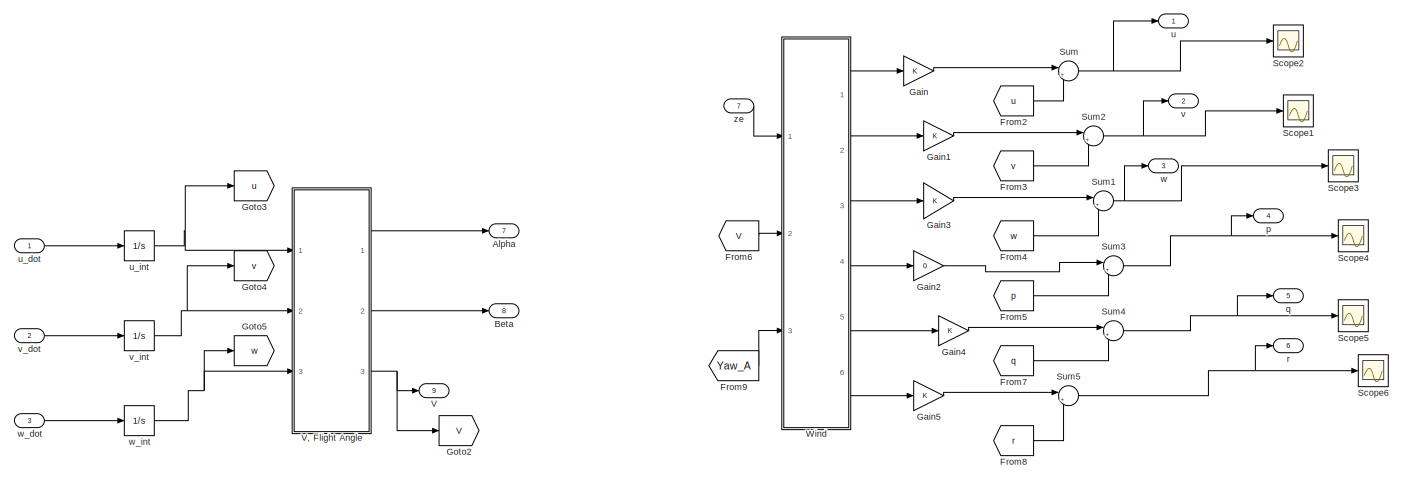
[diagram: Subsystem/Velocities, Rot rates and Euler Angles - part 1/2, full width, top band]
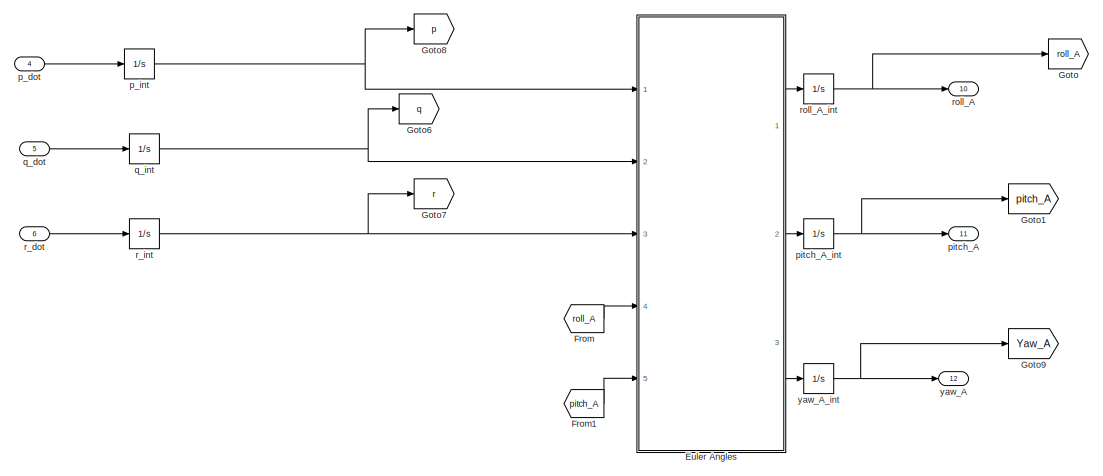
[diagram: Subsystem/Velocities, Rot rates and Euler Angles - part 2/2, full width, bottom band]
BLOCK [SubSystem] Subsystem/Velocities, Rot rates and Euler Angles
  Ports = [7, 12]
  RequestExecContextInheritance = off
  Variant = off
BLOCK [Outport] Subsystem/Velocities, Rot rates and Euler Angles/Alpha
  IconDisplay = Port number
  Port = 7
BLOCK [Outport] Subsystem/Velocities, Rot rates and Euler Angles/Beta
  IconDisplay = Port number
  Port = 8
BLOCK [SubSystem] Subsystem/Velocities, Rot rates and Euler Angles/Euler Angles
  ErrorFcn = Stateflow.Translate.translate
  PermitHierarchicalResolution = ExplicitOnly
  Ports = [5, 3]
  RequestExecContextInheritance = off
  SFBlockType = MATLAB Function
  TreatAsAtomicUnit = on
  Variant = off
BLOCK [Demux] Subsystem/Velocities, Rot rates and Euler Angles/Euler Angles/ Demux 
  Outputs = 1
  Ports = [1, 1]
BLOCK [S-Function] Subsystem/Velocities, Rot rates and Euler Angles/Euler Angles/ SFunction 
  EnableBusSupport = on
  FunctionName = sf_sfun
  PortCounts = [5 4]
  Ports = [5, 4]
  SFcnIsStateOwnerBlock = off
  SFunctionDeploymentMode = off
  Tag = Stateflow S-Function FlightDynamicModelBlackOut 6
BLOCK [Terminator] Subsystem/Velocities, Rot rates and Euler Angles/Euler Angles/ Terminator 
BLOCK [Inport] Subsystem/Velocities, Rot rates and Euler Angles/Euler Angles/p
  IconDisplay = Port number
BLOCK [Inport] Subsystem/Velocities, Rot rates and Euler Angles/Euler Angles/pitch_A
  IconDisplay = Port number
  Port = 5
BLOCK [Outport] Subsystem/Velocities, Rot rates and Euler Angles/Euler Angles/pitch_A_dot
  IconDisplay = Port number
  Port = 2
BLOCK [Inport] Subsystem/Velocities, Rot rates and Euler Angles/Euler Angles/q
  IconDisplay = Port number
  Port = 2
BLOCK [Inport] Subsystem/Velocities, Rot rates and Euler Angles/Euler Angles/r
  IconDisplay = Port number
  Port = 3
BLOCK [Inport] Subsystem/Velocities, Rot rates and Euler Angles/Euler Angles/roll_A
  IconDisplay = Port number
  Port = 4
BLOCK [Outport] Subsystem/Velocities, Rot rates and Euler Angles/Euler Angles/roll_A_dot
  IconDisplay = Port number
BLOCK [Outport] Subsystem/Velocities, Rot rates and Euler Angles/Euler Angles/yaw_A_dot
  IconDisplay = Port number
  Port = 3
BLOCK [From] Subsystem/Velocities, Rot rates and Euler Angles/From
  GotoTag = roll_A
BLOCK [From] Subsystem/Velocities, Rot rates and Euler Angles/From1
  GotoTag = pitch_A
BLOCK [From] Subsystem/Velocities, Rot rates and Euler Angles/From2
  GotoTag = u
BLOCK [From] Subsystem/Velocities, Rot rates and Euler Angles/From3
  GotoTag = v
BLOCK [From] Subsystem/Velocities, Rot rates and Euler Angles/From4
  GotoTag = w
BLOCK [From] Subsystem/Velocities, Rot rates and Euler Angles/From5
  GotoTag = p
BLOCK [From] Subsystem/Velocities, Rot rates and Euler Angles/From6
  GotoTag = V
BLOCK [From] Subsystem/Velocities, Rot rates and Euler Angles/From7
  GotoTag = q
BLOCK [From] Subsystem/Velocities, Rot rates and Euler Angles/From8
  GotoTag = r
BLOCK [From] Subsystem/Velocities, Rot rates and Euler Angles/From9
  GotoTag = Yaw_A
BLOCK [Gain] Subsystem/Velocities, Rot rates and Euler Angles/Gain
  OutDataTypeStr = Inherit: Inherit via internal rule
  ParamDataTypeStr = Inherit: Inherit via internal rule
  SaturateOnIntegerOverflow = off
BLOCK [Gain] Subsystem/Velocities, Rot rates and Euler Angles/Gain1
  OutDataTypeStr = Inherit: Inherit via internal rule
  ParamDataTypeStr = Inherit: Inherit via internal rule
  SaturateOnIntegerOverflow = off
BLOCK [Gain] Subsystem/Velocities, Rot rates and Euler Angles/Gain2
  Gain = 0
  OutDataTypeStr = Inherit: Inherit via internal rule
  ParamDataTypeStr = Inherit: Inherit via internal rule
  SaturateOnIntegerOverflow = off
BLOCK [Gain] Subsystem/Velocities, Rot rates and Euler Angles/Gain3
  OutDataTypeStr = Inherit: Inherit via internal rule
  ParamDataTypeStr = Inherit: Inherit via internal rule
  SaturateOnIntegerOverflow = off
BLOCK [Gain] Subsystem/Velocities, Rot rates and Euler Angles/Gain4
  OutDataTypeStr = Inherit: Inherit via internal rule
  ParamDataTypeStr = Inherit: Inherit via internal rule
  SaturateOnIntegerOverflow = off
BLOCK [Gain] Subsystem/Velocities, Rot rates and Euler Angles/Gain5
  OutDataTypeStr = Inherit: Inherit via internal rule
  ParamDataTypeStr = Inherit: Inherit via internal rule
  SaturateOnIntegerOverflow = off
BLOCK [Goto] Subsystem/Velocities, Rot rates and Euler Angles/Goto
  GotoTag = roll_A
BLOCK [Goto] Subsystem/Velocities, Rot rates and Euler Angles/Goto1
  GotoTag = pitch_A
BLOCK [Goto] Subsystem/Velocities, Rot rates and Euler Angles/Goto2
  GotoTag = V
BLOCK [Goto] Subsystem/Velocities, Rot rates and Euler Angles/Goto3
  GotoTag = u
BLOCK [Goto] Subsystem/Velocities, Rot rates and Euler Angles/Goto4
  GotoTag = v
BLOCK [Goto] Subsystem/Velocities, Rot rates and Euler Angles/Goto5
  GotoTag = w
BLOCK [Goto] Subsystem/Velocities, Rot rates and Euler Angles/Goto6
  GotoTag = q
BLOCK [Goto] Subsystem/Velocities, Rot rates and Euler Angles/Goto7
  GotoTag = r
BLOCK [Goto] Subsystem/Velocities, Rot rates and Euler Angles/Goto8
  GotoTag = p
BLOCK [Goto] Subsystem/Velocities, Rot rates and Euler Angles/Goto9
  GotoTag = Yaw_A
BLOCK [Scope] Subsystem/Velocities, Rot rates and Euler Angles/Scope1
  NumInputPorts = 1
  Ports = [1]
  ScopeSpecificationString = Simulink.scopes.TimeScopeBlockCfg('CurrentConfiguration', extmgr.ConfigurationSet(extmgr.Configuration('Core','General UI',true),extmgr.Configuration('Core','Source UI',true),extmgr.Configuration('Sources','WiredSimulink',true,'DataLoggingVariableName','ScopeData1'),extmgr.Configuration('Visuals','Time Domain',true,'SerializedDisplays',{struct('MinYLimReal','-0.16863','MaxYLimReal','0.16669','YLab...<+1417ch>
BLOCK [Scope] Subsystem/Velocities, Rot rates and Euler Angles/Scope2
  NumInputPorts = 1
  Ports = [1]
  ScopeSpecificationString = Simulink.scopes.TimeScopeBlockCfg('CurrentConfiguration', extmgr.ConfigurationSet(extmgr.Configuration('Core','General UI',true),extmgr.Configuration('Core','Source UI',true),extmgr.Configuration('Sources','WiredSimulink',true,'DataLoggingVariableName','ScopeData2'),extmgr.Configuration('Visuals','Time Domain',true,'SerializedDisplays',{struct('MinYLimReal','13.98636','MaxYLimReal','49.81352','YLa...<+1440ch>
BLOCK [Scope] Subsystem/Velocities, Rot rates and Euler Angles/Scope3
  NumInputPorts = 1
  Ports = [1]
  ScopeSpecificationString = Simulink.scopes.TimeScopeBlockCfg('CurrentConfiguration', extmgr.ConfigurationSet(extmgr.Configuration('Core','General UI',true),extmgr.Configuration('Core','Source UI',true),extmgr.Configuration('Sources','WiredSimulink',true,'DataLoggingVariableName','ScopeData3'),extmgr.Configuration('Visuals','Time Domain',true,'SerializedDisplays',{struct('MinYLimReal','1.68839','MaxYLimReal','7.38648','YLabe...<+1386ch>
BLOCK [Scope] Subsystem/Velocities, Rot rates and Euler Angles/Scope4
  NumInputPorts = 1
  Ports = [1]
  ScopeSpecificationString = Simulink.scopes.TimeScopeBlockCfg('CurrentConfiguration', extmgr.ConfigurationSet(extmgr.Configuration('Core','General UI',true),extmgr.Configuration('Core','Source UI',true),extmgr.Configuration('Sources','WiredSimulink',true,'DataLoggingVariableName','ScopeData4'),extmgr.Configuration('Visuals','Time Domain',true,'SerializedDisplays',{struct('MinYLimReal','-0.01386','MaxYLimReal','0.01338','YLab...<+1416ch>
BLOCK [Scope] Subsystem/Velocities, Rot rates and Euler Angles/Scope5
  NumInputPorts = 1
  Ports = [1]
  ScopeSpecificationString = Simulink.scopes.TimeScopeBlockCfg('CurrentConfiguration', extmgr.ConfigurationSet(extmgr.Configuration('Core','General UI',true),extmgr.Configuration('Core','Source UI',true),extmgr.Configuration('Sources','WiredSimulink',true,'DataLoggingVariableName','ScopeData5'),extmgr.Configuration('Visuals','Time Domain',true,'SerializedDisplays',{struct('MinYLimReal','-0.49564','MaxYLimReal','0.59715','YLab...<+1416ch>
BLOCK [Scope] Subsystem/Velocities, Rot rates and Euler Angles/Scope6
  NumInputPorts = 1
  Ports = [1]
  ScopeSpecificationString = Simulink.scopes.TimeScopeBlockCfg('CurrentConfiguration', extmgr.ConfigurationSet(extmgr.Configuration('Core','General UI',true),extmgr.Configuration('Core','Source UI',true),extmgr.Configuration('Sources','WiredSimulink',true,'DataLoggingVariableName','ScopeData6'),extmgr.Configuration('Visuals','Time Domain',true,'SerializedDisplays',{struct('MinYLimReal','-0.0058','MaxYLimReal','0.00792','YLabe...<+1414ch>
BLOCK [Sum] Subsystem/Velocities, Rot rates and Euler Angles/Sum
  IconShape = round
  InputSameDT = off
  Inputs = |++
  OutDataTypeStr = Inherit: Inherit via internal rule
  Ports = [2, 1]
  SaturateOnIntegerOverflow = off
BLOCK [Sum] Subsystem/Velocities, Rot rates and Euler Angles/Sum1
  IconShape = round
  InputSameDT = off
  Inputs = |++
  OutDataTypeStr = Inherit: Inherit via internal rule
  Ports = [2, 1]
  SaturateOnIntegerOverflow = off
BLOCK [Sum] Subsystem/Velocities, Rot rates and Euler Angles/Sum2
  IconShape = round
  InputSameDT = off
  Inputs = |++
  OutDataTypeStr = Inherit: Inherit via internal rule
  Ports = [2, 1]
  SaturateOnIntegerOverflow = off
BLOCK [Sum] Subsystem/Velocities, Rot rates and Euler Angles/Sum3
  IconShape = round
  InputSameDT = off
  Inputs = |++
  OutDataTypeStr = Inherit: Inherit via internal rule
  Ports = [2, 1]
  SaturateOnIntegerOverflow = off
BLOCK [Sum] Subsystem/Velocities, Rot rates and Euler Angles/Sum4
  IconShape = round
  InputSameDT = off
  Inputs = |++
  OutDataTypeStr = Inherit: Inherit via internal rule
  Ports = [2, 1]
  SaturateOnIntegerOverflow = off
BLOCK [Sum] Subsystem/Velocities, Rot rates and Euler Angles/Sum5
  IconShape = round
  InputSameDT = off
  Inputs = |++
  OutDataTypeStr = Inherit: Inherit via internal rule
  Ports = [2, 1]
  SaturateOnIntegerOverflow = off
BLOCK [Outport] Subsystem/Velocities, Rot rates and Euler Angles/V
  IconDisplay = Port number
  Port = 9
BLOCK [SubSystem] Subsystem/Velocities, Rot rates and Euler Angles/V, Flight Angle
  ErrorFcn = Stateflow.Translate.translate
  PermitHierarchicalResolution = ExplicitOnly
  Ports = [3, 3]
  RequestExecContextInheritance = off
  SFBlockType = MATLAB Function
  TreatAsAtomicUnit = on
  Variant = off
BLOCK [Demux] Subsystem/Velocities, Rot rates and Euler Angles/V, Flight Angle/ Demux 
  Outputs = 1
  Ports = [1, 1]
BLOCK [S-Function] Subsystem/Velocities, Rot rates and Euler Angles/V, Flight Angle/ SFunction 
  EnableBusSupport = on
  FunctionName = sf_sfun
  PortCounts = [3 4]
  Ports = [3, 4]
  SFcnIsStateOwnerBlock = off
  SFunctionDeploymentMode = off
  Tag = Stateflow S-Function FlightDynamicModelBlackOut 5
BLOCK [Terminator] Subsystem/Velocities, Rot rates and Euler Angles/V, Flight Angle/ Terminator 
BLOCK [Outport] Subsystem/Velocities, Rot rates and Euler Angles/V, Flight Angle/Alpha
  IconDisplay = Port number
BLOCK [Outport] Subsystem/Velocities, Rot rates and Euler Angles/V, Flight Angle/Beta
  IconDisplay = Port number
  Port = 2
BLOCK [Outport] Subsystem/Velocities, Rot rates and Euler Angles/V, Flight Angle/V
  IconDisplay = Port number
  Port = 3
BLOCK [Inport] Subsystem/Velocities, Rot rates and Euler Angles/V, Flight Angle/u
  IconDisplay = Port number
BLOCK [Inport] Subsystem/Velocities, Rot rates and Euler Angles/V, Flight Angle/v
  IconDisplay = Port number
  Port = 2
BLOCK [Inport] Subsystem/Velocities, Rot rates and Euler Angles/V, Flight Angle/w
  IconDisplay = Port number
  Port = 3
BLOCK [SubSystem] Subsystem/Velocities, Rot rates and Euler Angles/Wind
  Ports = [3, 6]
  RequestExecContextInheritance = off
  Variant = off
BLOCK [Constant] Subsystem/Velocities, Rot rates and Euler Angles/Wind/Constant2
  Value = 2.08751424
BLOCK [From] Subsystem/Velocities, Rot rates and Euler Angles/Wind/From
  GotoTag = ze
BLOCK [From] Subsystem/Velocities, Rot rates and Euler Angles/Wind/From1
  GotoTag = uw
BLOCK [From] Subsystem/Velocities, Rot rates and Euler Angles/Wind/From2
  GotoTag = vw
BLOCK [Goto] Subsystem/Velocities, Rot rates and Euler Angles/Wind/Goto
  GotoTag = ze
BLOCK [Goto] Subsystem/Velocities, Rot rates and Euler Angles/Wind/Goto1
  GotoTag = uw
BLOCK [Goto] Subsystem/Velocities, Rot rates and Euler Angles/Wind/Goto2
  GotoTag = vw
BLOCK [SubSystem] Subsystem/Velocities, Rot rates and Euler Angles/Wind/MATLAB Function
  ErrorFcn = Stateflow.Translate.translate
  PermitHierarchicalResolution = ExplicitOnly
  Ports = [2, 2]
  RequestExecContextInheritance = off
  SFBlockType = MATLAB Function
  TreatAsAtomicUnit = on
  Variant = off
BLOCK [Demux] Subsystem/Velocities, Rot rates and Euler Angles/Wind/MATLAB Function/ Demux 
  Outputs = 1
  Ports = [1, 1]
BLOCK [S-Function] Subsystem/Velocities, Rot rates and Euler Angles/Wind/MATLAB Function/ SFunction 
  EnableBusSupport = on
  FunctionName = sf_sfun
  PortCounts = [2 3]
  Ports = [2, 3]
  SFcnIsStateOwnerBlock = off
  SFunctionDeploymentMode = off
  Tag = Stateflow S-Function FlightDynamicModelBlackOut 13
BLOCK [Terminator] Subsystem/Velocities, Rot rates and Euler Angles/Wind/MATLAB Function/ Terminator 
BLOCK [Inport] Subsystem/Velocities, Rot rates and Euler Angles/Wind/MATLAB Function/Yaw_A
  IconDisplay = Port number
  Port = 2
BLOCK [Outport] Subsystem/Velocities, Rot rates and Euler Angles/Wind/MATLAB Function/uw
  IconDisplay = Port number
BLOCK [Outport] Subsystem/Velocities, Rot rates and Euler Angles/Wind/MATLAB Function/vw
  IconDisplay = Port number
  Port = 2
BLOCK [Inport] Subsystem/Velocities, Rot rates and Euler Angles/Wind/MATLAB Function/ze
  IconDisplay = Port number
BLOCK [Outport] Subsystem/Velocities, Rot rates and Euler Angles/Wind/Pw
  IconDisplay = Port number
  Port = 4
BLOCK [Scope] Subsystem/Velocities, Rot rates and Euler Angles/Wind/Pw 
  NumInputPorts = 1
  Ports = [1]
  ScopeSpecificationString = Simulink.scopes.TimeScopeBlockCfg('CurrentConfiguration', extmgr.ConfigurationSet(extmgr.Configuration('Core','General UI',true),extmgr.Configuration('Core','Source UI',true),extmgr.Configuration('Sources','WiredSimulink',true,'DataLoggingVariableName','ScopeData1','DataLoggingLimitDataPoints',true,'DataLoggingSaveFormat','Array','DataLoggingDecimation','1','DataLoggingDecimateData',true),extmgr.C...<+1603ch>
BLOCK [Outport] Subsystem/Velocities, Rot rates and Euler Angles/Wind/Qw
  IconDisplay = Port number
  Port = 5
BLOCK [Scope] Subsystem/Velocities, Rot rates and Euler Angles/Wind/Qw 
  NumInputPorts = 1
  Ports = [1]
  ScopeSpecificationString = Simulink.scopes.TimeScopeBlockCfg('CurrentConfiguration', extmgr.ConfigurationSet(extmgr.Configuration('Core','General UI',true),extmgr.Configuration('Core','Source UI',true),extmgr.Configuration('Sources','WiredSimulink',true,'DataLoggingVariableName','ScopeData2','DataLoggingLimitDataPoints',true,'DataLoggingSaveFormat','Array','DataLoggingDecimation','1','DataLoggingDecimateData',true),extmgr.C...<+1591ch>
BLOCK [Outport] Subsystem/Velocities, Rot rates and Euler Angles/Wind/Rw
  IconDisplay = Port number
  Port = 6
BLOCK [Scope] Subsystem/Velocities, Rot rates and Euler Angles/Wind/Rw 
  NumInputPorts = 1
  Ports = [1]
  ScopeSpecificationString = Simulink.scopes.TimeScopeBlockCfg('CurrentConfiguration', extmgr.ConfigurationSet(extmgr.Configuration('Core','General UI',true),extmgr.Configuration('Core','Source UI',true),extmgr.Configuration('Sources','WiredSimulink',true,'DataLoggingVariableName','ScopeData3','DataLoggingLimitDataPoints',true,'DataLoggingSaveFormat','Array','DataLoggingDecimation','1','DataLoggingDecimateData',true),extmgr.C...<+1547ch>
BLOCK [SubSystem] Subsystem/Velocities, Rot rates and Euler Angles/Wind/Subsystem
  Ports = [3, 6]
  RequestExecContextInheritance = off
  Variant = off
BLOCK [Reference] Subsystem/Velocities, Rot rates and Euler Angles/Wind/Subsystem/Band-Limited White Noise  REF=simulink/Sources/Band-Limited
White Noise
  Ports = [0, 1]
  SourceBlock = simulink/Sources/Band-Limited\nWhite Noise
  SourceProductBaseCode = SL
  SourceProductName = Simulink
  SourceType = Band-Limited White Noise.
BLOCK [Reference] Subsystem/Velocities, Rot rates and Euler Angles/Wind/Subsystem/Band-Limited White Noise1  REF=simulink/Sources/Band-Limited
White Noise
  Ports = [0, 1]
  SourceBlock = simulink/Sources/Band-Limited\nWhite Noise
  SourceProductBaseCode = SL
  SourceProductName = Simulink
  SourceType = Band-Limited White Noise.
BLOCK [Reference] Subsystem/Velocities, Rot rates and Euler Angles/Wind/Subsystem/Band-Limited White Noise2  REF=simulink/Sources/Band-Limited
White Noise
  Ports = [0, 1]
  SourceBlock = simulink/Sources/Band-Limited\nWhite Noise
  SourceProductBaseCode = SL
  SourceProductName = Simulink
  SourceType = Band-Limited White Noise.
BLOCK [Reference] Subsystem/Velocities, Rot rates and Euler Angles/Wind/Subsystem/Band-Limited White Noise3  REF=simulink/Sources/Band-Limited
White Noise
  Ports = [0, 1]
  SourceBlock = simulink/Sources/Band-Limited\nWhite Noise
  SourceProductBaseCode = SL
  SourceProductName = Simulink
  SourceType = Band-Limited White Noise.
BLOCK [Reference] Subsystem/Velocities, Rot rates and Euler Angles/Wind/Subsystem/Band-Limited White Noise4  REF=simulink/Sources/Band-Limited
White Noise
  Ports = [0, 1]
  SourceBlock = simulink/Sources/Band-Limited\nWhite Noise
  SourceProductBaseCode = SL
  SourceProductName = Simulink
  SourceType = Band-Limited White Noise.
BLOCK [Reference] Subsystem/Velocities, Rot rates and Euler Angles/Wind/Subsystem/Band-Limited White Noise5  REF=simulink/Sources/Band-Limited
White Noise
  Ports = [0, 1]
  SourceBlock = simulink/Sources/Band-Limited\nWhite Noise
  SourceProductBaseCode = SL
  SourceProductName = Simulink
  SourceType = Band-Limited White Noise.
BLOCK [Constant] Subsystem/Velocities, Rot rates and Euler Angles/Wind/Subsystem/Constant
  Value = 320
BLOCK [Constant] Subsystem/Velocities, Rot rates and Euler Angles/Wind/Subsystem/Constant1
  Value = 45
BLOCK [Demux] Subsystem/Velocities, Rot rates and Euler Angles/Wind/Subsystem/Demux
  DisplayOption = bar
  Outputs = 3
  Ports = [1, 3]
BLOCK [Demux] Subsystem/Velocities, Rot rates and Euler Angles/Wind/Subsystem/Demux1
  DisplayOption = bar
  Outputs = 3
  Ports = [1, 3]
BLOCK [Reference] Subsystem/Velocities, Rot rates and Euler Angles/Wind/Subsystem/Dryden Wind Turbulence Model (Continuous (+q +r))  REF=aerolibwind2/Dryden Wind Turbulence Model 
(Continuous (+q -r))
  Ports = [3, 2]
  SourceBlock = aerolibwind2/Dryden Wind Turbulence Model \n(Continuous (+q -r))
  SourceProductBaseCode = AE
  SourceProductName = Aerospace Blockset
  SourceType = Wind Turbulence Model
BLOCK [From] Subsystem/Velocities, Rot rates and Euler Angles/Wind/Subsystem/From
  GotoTag = h
BLOCK [From] Subsystem/Velocities, Rot rates and Euler Angles/Wind/Subsystem/From1
  GotoTag = V
BLOCK [From] Subsystem/Velocities, Rot rates and Euler Angles/Wind/Subsystem/From10
  GotoTag = V
BLOCK [From] Subsystem/Velocities, Rot rates and Euler Angles/Wind/Subsystem/From11
  GotoTag = Lw
BLOCK [From] Subsystem/Velocities, Rot rates and Euler Angles/Wind/Subsystem/From12
  GotoTag = Kp
BLOCK [From] Subsystem/Velocities, Rot rates and Euler Angles/Wind/Subsystem/From13
  GotoTag = V
BLOCK [From] Subsystem/Velocities, Rot rates and Euler Angles/Wind/Subsystem/From14
  GotoTag = Kv
BLOCK [From] Subsystem/Velocities, Rot rates and Euler Angles/Wind/Subsystem/From15
  GotoTag = b
BLOCK [From] Subsystem/Velocities, Rot rates and Euler Angles/Wind/Subsystem/From16
  GotoTag = V
BLOCK [From] Subsystem/Velocities, Rot rates and Euler Angles/Wind/Subsystem/From17
  GotoTag = b
BLOCK [From] Subsystem/Velocities, Rot rates and Euler Angles/Wind/Subsystem/From18
  GotoTag = Lv
BLOCK [From] Subsystem/Velocities, Rot rates and Euler Angles/Wind/Subsystem/From19
  GotoTag = V
BLOCK [From] Subsystem/Velocities, Rot rates and Euler Angles/Wind/Subsystem/From2
  GotoTag = b
BLOCK [From] Subsystem/Velocities, Rot rates and Euler Angles/Wind/Subsystem/From20
  GotoTag = b
BLOCK [From] Subsystem/Velocities, Rot rates and Euler Angles/Wind/Subsystem/From21
  GotoTag = Kw
BLOCK [From] Subsystem/Velocities, Rot rates and Euler Angles/Wind/Subsystem/From22
  GotoTag = Lv
BLOCK [From] Subsystem/Velocities, Rot rates and Euler Angles/Wind/Subsystem/From3
  GotoTag = Ku
BLOCK [From] Subsystem/Velocities, Rot rates and Euler Angles/Wind/Subsystem/From4
  GotoTag = V
BLOCK [From] Subsystem/Velocities, Rot rates and Euler Angles/Wind/Subsystem/From5
  GotoTag = Lu
BLOCK [From] Subsystem/Velocities, Rot rates and Euler Angles/Wind/Subsystem/From6
  GotoTag = Kv
BLOCK [From] Subsystem/Velocities, Rot rates and Euler Angles/Wind/Subsystem/From7
  GotoTag = V
BLOCK [From] Subsystem/Velocities, Rot rates and Euler Angles/Wind/Subsystem/From8
  GotoTag = Lv
BLOCK [From] Subsystem/Velocities, Rot rates and Euler Angles/Wind/Subsystem/From9
  GotoTag = Kw
BLOCK [Goto] Subsystem/Velocities, Rot rates and Euler Angles/Wind/Subsystem/Goto
  GotoTag = Kw
BLOCK [Goto] Subsystem/Velocities, Rot rates and Euler Angles/Wind/Subsystem/Goto1
  GotoTag = Lu
BLOCK [Goto] Subsystem/Velocities, Rot rates and Euler Angles/Wind/Subsystem/Goto10
  GotoTag = h
BLOCK [Goto] Subsystem/Velocities, Rot rates and Euler Angles/Wind/Subsystem/Goto11
  GotoTag = V
BLOCK [Goto] Subsystem/Velocities, Rot rates and Euler Angles/Wind/Subsystem/Goto12
  GotoTag = b
BLOCK [Goto] Subsystem/Velocities, Rot rates and Euler Angles/Wind/Subsystem/Goto2
  GotoTag = Lv
BLOCK [Goto] Subsystem/Velocities, Rot rates and Euler Angles/Wind/Subsystem/Goto3
  GotoTag = Lw
BLOCK [Goto] Subsystem/Velocities, Rot rates and Euler Angles/Wind/Subsystem/Goto7
  GotoTag = Ku
BLOCK [Goto] Subsystem/Velocities, Rot rates and Euler Angles/Wind/Subsystem/Goto8
  GotoTag = Kv
BLOCK [Goto] Subsystem/Velocities, Rot rates and Euler Angles/Wind/Subsystem/Goto9
  GotoTag = Kp
BLOCK [Ground] Subsystem/Velocities, Rot rates and Euler Angles/Wind/Subsystem/Ground
BLOCK [SubSystem] Subsystem/Velocities, Rot rates and Euler Angles/Wind/Subsystem/MATLAB Function
  ErrorFcn = Stateflow.Translate.translate
  PermitHierarchicalResolution = ExplicitOnly
  Ports = [3, 7]
  RequestExecContextInheritance = off
  SFBlockType = MATLAB Function
  TreatAsAtomicUnit = on
  Variant = off
BLOCK [Demux] Subsystem/Velocities, Rot rates and Euler Angles/Wind/Subsystem/MATLAB Function/ Demux 
  Outputs = 1
  Ports = [1, 1]
BLOCK [S-Function] Subsystem/Velocities, Rot rates and Euler Angles/Wind/Subsystem/MATLAB Function/ SFunction 
  EnableBusSupport = on
  FunctionName = sf_sfun
  PortCounts = [3 8]
  Ports = [3, 8]
  SFcnIsStateOwnerBlock = off
  SFunctionDeploymentMode = off
  Tag = Stateflow S-Function FlightDynamicModelBlackOut 9
BLOCK [Terminator] Subsystem/Velocities, Rot rates and Euler Angles/Wind/Subsystem/MATLAB Function/ Terminator 
BLOCK [Outport] Subsystem/Velocities, Rot rates and Euler Angles/Wind/Subsystem/MATLAB Function/Kp
  IconDisplay = Port number
  Port = 7
BLOCK [Outport] Subsystem/Velocities, Rot rates and Euler Angles/Wind/Subsystem/MATLAB Function/Ku
  IconDisplay = Port number
  Port = 4
BLOCK [Outport] Subsystem/Velocities, Rot rates and Euler Angles/Wind/Subsystem/MATLAB Function/Kv
  IconDisplay = Port number
  Port = 5
BLOCK [Outport] Subsystem/Velocities, Rot rates and Euler Angles/Wind/Subsystem/MATLAB Function/Kw
  IconDisplay = Port number
  Port = 6
BLOCK [Outport] Subsystem/Velocities, Rot rates and Euler Angles/Wind/Subsystem/MATLAB Function/L_u
  IconDisplay = Port number
BLOCK [Outport] Subsystem/Velocities, Rot rates and Euler Angles/Wind/Subsystem/MATLAB Function/L_v
  IconDisplay = Port number
  Port = 2
BLOCK [Outport] Subsystem/Velocities, Rot rates and Euler Angles/Wind/Subsystem/MATLAB Function/L_w
  IconDisplay = Port number
  Port = 3
BLOCK [Inport] Subsystem/Velocities, Rot rates and Euler Angles/Wind/Subsystem/MATLAB Function/V
  IconDisplay = Port number
  Port = 2
BLOCK [Inport] Subsystem/Velocities, Rot rates and Euler Angles/Wind/Subsystem/MATLAB Function/b
  IconDisplay = Port number
  Port = 3
BLOCK [Inport] Subsystem/Velocities, Rot rates and Euler Angles/Wind/Subsystem/MATLAB Function/h
  IconDisplay = Port number
BLOCK [Outport] Subsystem/Velocities, Rot rates and Euler Angles/Wind/Subsystem/Pw
  IconDisplay = Port number
  Port = 4
BLOCK [Outport] Subsystem/Velocities, Rot rates and Euler Angles/Wind/Subsystem/Qw
  IconDisplay = Port number
  Port = 5
BLOCK [Outport] Subsystem/Velocities, Rot rates and Euler Angles/Wind/Subsystem/Rw
  IconDisplay = Port number
  Port = 6
BLOCK [Scope] Subsystem/Velocities, Rot rates and Euler Angles/Wind/Subsystem/Scope
  NumInputPorts = 1
  Ports = [1]
  ScopeSpecificationString = Simulink.scopes.TimeScopeBlockCfg('CurrentConfiguration', extmgr.ConfigurationSet(extmgr.Configuration('Core','General UI',true),extmgr.Configuration('Core','Source UI',true),extmgr.Configuration('Sources','WiredSimulink',true,'DataLoggingVariableName','ScopeData1'),extmgr.Configuration('Visuals','Time Domain',true,'SerializedDisplays',{struct('MinYLimReal','-0.37781','MaxYLimReal','0.34459','YLab...<+1390ch>
BLOCK [Scope] Subsystem/Velocities, Rot rates and Euler Angles/Wind/Subsystem/Scope1
  NumInputPorts = 1
  Ports = [1]
  ScopeSpecificationString = Simulink.scopes.TimeScopeBlockCfg('CurrentConfiguration', extmgr.ConfigurationSet(extmgr.Configuration('Core','General UI',true),extmgr.Configuration('Core','Source UI',true),extmgr.Configuration('Sources','WiredSimulink',true,'DataLoggingVariableName','ScopeData2'),extmgr.Configuration('Visuals','Time Domain',true,'SerializedDisplays',{struct('MinYLimReal','-0.24166','MaxYLimReal','0.17155','YLab...<+1366ch>
BLOCK [Scope] Subsystem/Velocities, Rot rates and Euler Angles/Wind/Subsystem/Scope2
  NumInputPorts = 1
  Ports = [1]
  ScopeSpecificationString = Simulink.scopes.TimeScopeBlockCfg('CurrentConfiguration', extmgr.ConfigurationSet(extmgr.Configuration('Core','General UI',true),extmgr.Configuration('Core','Source UI',true),extmgr.Configuration('Sources','WiredSimulink',true,'DataLoggingVariableName','ScopeData3'),extmgr.Configuration('Visuals','Time Domain',true,'SerializedDisplays',{struct('MinYLimReal','-0.26709','MaxYLimReal','0.24406','YLab...<+1420ch>
BLOCK [Scope] Subsystem/Velocities, Rot rates and Euler Angles/Wind/Subsystem/Scope3
  NumInputPorts = 1
  Ports = [1]
  ScopeSpecificationString = Simulink.scopes.TimeScopeBlockCfg('CurrentConfiguration', extmgr.ConfigurationSet(extmgr.Configuration('Core','General UI',true),extmgr.Configuration('Core','Source UI',true),extmgr.Configuration('Sources','WiredSimulink',true,'DataLoggingVariableName','ScopeData4'),extmgr.Configuration('Visuals','Time Domain',true),extmgr.Configuration('Tools','Plot Navigation',true),extmgr.Configuration('Tools',...<+40ch>
BLOCK [Scope] Subsystem/Velocities, Rot rates and Euler Angles/Wind/Subsystem/Scope4
  NumInputPorts = 1
  Ports = [1]
  ScopeSpecificationString = Simulink.scopes.TimeScopeBlockCfg('CurrentConfiguration', extmgr.ConfigurationSet(extmgr.Configuration('Core','General UI',true),extmgr.Configuration('Core','Source UI',true),extmgr.Configuration('Sources','WiredSimulink',true,'DataLoggingVariableName','ScopeData5'),extmgr.Configuration('Visuals','Time Domain',true,'SerializedDisplays',{struct('MinYLimReal','-0.02567','MaxYLimReal','0.02901','YLab...<+1396ch>
BLOCK [Scope] Subsystem/Velocities, Rot rates and Euler Angles/Wind/Subsystem/Scope5
  NumInputPorts = 1
  Ports = [1]
  ScopeSpecificationString = Simulink.scopes.TimeScopeBlockCfg('CurrentConfiguration', extmgr.ConfigurationSet(extmgr.Configuration('Core','General UI',true),extmgr.Configuration('Core','Source UI',true),extmgr.Configuration('Sources','WiredSimulink',true,'DataLoggingVariableName','ScopeData7'),extmgr.Configuration('Visuals','Time Domain',true,'SerializedDisplays',{struct('MinYLimReal','-0.01067','MaxYLimReal','0.01225','YLab...<+1395ch>
BLOCK [Scope] Subsystem/Velocities, Rot rates and Euler Angles/Wind/Subsystem/Scope6
  NumInputPorts = 1
  Ports = [1]
  ScopeSpecificationString = Simulink.scopes.TimeScopeBlockCfg('CurrentConfiguration', extmgr.ConfigurationSet(extmgr.Configuration('Core','General UI',true),extmgr.Configuration('Core','Source UI',true),extmgr.Configuration('Sources','WiredSimulink',true,'DataLoggingVariableName','ScopeData8'),extmgr.Configuration('Visuals','Time Domain',true),extmgr.Configuration('Tools','Plot Navigation',true),extmgr.Configuration('Tools',...<+40ch>
BLOCK [Scope] Subsystem/Velocities, Rot rates and Euler Angles/Wind/Subsystem/Scope7
  NumInputPorts = 1
  Ports = [1]
  ScopeSpecificationString = Simulink.scopes.TimeScopeBlockCfg('CurrentConfiguration', extmgr.ConfigurationSet(extmgr.Configuration('Core','General UI',true),extmgr.Configuration('Core','Source UI',true),extmgr.Configuration('Sources','WiredSimulink',true,'DataLoggingVariableName','ScopeData9'),extmgr.Configuration('Visuals','Time Domain',true,'SerializedDisplays',{struct('MinYLimReal','-0.00443','MaxYLimReal','0.005','YLabel...<+1382ch>
BLOCK [Outport] Subsystem/Velocities, Rot rates and Euler Angles/Wind/Subsystem/Uw
  IconDisplay = Port number
BLOCK [Inport] Subsystem/Velocities, Rot rates and Euler Angles/Wind/Subsystem/V
  IconDisplay = Port number
  Port = 2
BLOCK [Outport] Subsystem/Velocities, Rot rates and Euler Angles/Wind/Subsystem/Vw
  IconDisplay = Port number
  Port = 2
BLOCK [Outport] Subsystem/Velocities, Rot rates and Euler Angles/Wind/Subsystem/Ww
  IconDisplay = Port number
  Port = 3
BLOCK [Inport] Subsystem/Velocities, Rot rates and Euler Angles/Wind/Subsystem/b
  IconDisplay = Port number
  Port = 3
BLOCK [Inport] Subsystem/Velocities, Rot rates and Euler Angles/Wind/Subsystem/h
  IconDisplay = Port number
BLOCK [SubSystem] Subsystem/Velocities, Rot rates and Euler Angles/Wind/Subsystem/pw
  Ports = [4, 1]
  RequestExecContextInheritance = off
  Variant = off
BLOCK [From] Subsystem/Velocities, Rot rates and Euler Angles/Wind/Subsystem/pw/From
  GotoTag = Con
BLOCK [From] Subsystem/Velocities, Rot rates and Euler Angles/Wind/Subsystem/pw/From1
  GotoTag = Con
BLOCK [Goto] Subsystem/Velocities, Rot rates and Euler Angles/Wind/Subsystem/pw/Goto
  GotoTag = Con
BLOCK [Inport] Subsystem/Velocities, Rot rates and Euler Angles/Wind/Subsystem/pw/Kp
  IconDisplay = Port number
  Port = 2
BLOCK [SubSystem] Subsystem/Velocities, Rot rates and Euler Angles/Wind/Subsystem/pw/MATLAB Function
  ErrorFcn = Stateflow.Translate.translate
  PermitHierarchicalResolution = ExplicitOnly
  Ports = [2, 1]
  RequestExecContextInheritance = off
  SFBlockType = MATLAB Function
  TreatAsAtomicUnit = on
  Variant = off
BLOCK [Demux] Subsystem/Velocities, Rot rates and Euler Angles/Wind/Subsystem/pw/MATLAB Function/ Demux 
  Outputs = 1
  Ports = [1, 1]
BLOCK [S-Function] Subsystem/Velocities, Rot rates and Euler Angles/Wind/Subsystem/pw/MATLAB Function/ SFunction 
  EnableBusSupport = on
  FunctionName = sf_sfun
  PortCounts = [2 2]
  Ports = [2, 2]
  SFcnIsStateOwnerBlock = off
  SFunctionDeploymentMode = off
  Tag = Stateflow S-Function FlightDynamicModelBlackOut 10
BLOCK [Terminator] Subsystem/Velocities, Rot rates and Euler Angles/Wind/Subsystem/pw/MATLAB Function/ Terminator 
BLOCK [Inport] Subsystem/Velocities, Rot rates and Euler Angles/Wind/Subsystem/pw/MATLAB Function/V
  IconDisplay = Port number
BLOCK [Inport] Subsystem/Velocities, Rot rates and Euler Angles/Wind/Subsystem/pw/MATLAB Function/b
  IconDisplay = Port number
  Port = 2
BLOCK [Outport] Subsystem/Velocities, Rot rates and Euler Angles/Wind/Subsystem/pw/MATLAB Function/k
  IconDisplay = Port number
BLOCK [Product] Subsystem/Velocities, Rot rates and Euler Angles/Wind/Subsystem/pw/Product
  InputSameDT = off
  OutDataTypeStr = Inherit: Inherit via internal rule
  Ports = [2, 1]
  RndMeth = Floor
  SaturateOnIntegerOverflow = off
BLOCK [Product] Subsystem/Velocities, Rot rates and Euler Angles/Wind/Subsystem/pw/Product1
  InputSameDT = off
  OutDataTypeStr = Inherit: Inherit via internal rule
  Ports = [2, 1]
  RndMeth = Floor
  SaturateOnIntegerOverflow = off
BLOCK [Product] Subsystem/Velocities, Rot rates and Euler Angles/Wind/Subsystem/pw/Product2
  InputSameDT = off
  OutDataTypeStr = Inherit: Inherit via internal rule
  Ports = [2, 1]
  RndMeth = Floor
  SaturateOnIntegerOverflow = off
BLOCK [Sum] Subsystem/Velocities, Rot rates and Euler Angles/Wind/Subsystem/pw/Sum
  IconShape = round
  InputSameDT = off
  Inputs = |+-
  OutDataTypeStr = Inherit: Inherit via internal rule
  Ports = [2, 1]
  SaturateOnIntegerOverflow = off
BLOCK [Inport] Subsystem/Velocities, Rot rates and Euler Angles/Wind/Subsystem/pw/Us
  IconDisplay = Port number
BLOCK [Inport] Subsystem/Velocities, Rot rates and Euler Angles/Wind/Subsystem/pw/V
  IconDisplay = Port number
  Port = 3
BLOCK [Inport] Subsystem/Velocities, Rot rates and Euler Angles/Wind/Subsystem/pw/b
  IconDisplay = Port number
  Port = 4
BLOCK [Outport] Subsystem/Velocities, Rot rates and Euler Angles/Wind/Subsystem/pw/pw
  IconDisplay = Port number
BLOCK [Integrator] Subsystem/Velocities, Rot rates and Euler Angles/Wind/Subsystem/pw/pwInt
  Ports = [1, 1]
BLOCK [SubSystem] Subsystem/Velocities, Rot rates and Euler Angles/Wind/Subsystem/qw
  Ports = [5, 1]
  RequestExecContextInheritance = off
  Variant = off
BLOCK [Sum] Subsystem/Velocities, Rot rates and Euler Angles/Wind/Subsystem/qw/Add
  InputSameDT = off
  Inputs = +++++
  OutDataTypeStr = Inherit: Inherit via internal rule
  Ports = [5, 1]
  SaturateOnIntegerOverflow = off
BLOCK [Sum] Subsystem/Velocities, Rot rates and Euler Angles/Wind/Subsystem/qw/Add1
  InputSameDT = off
  OutDataTypeStr = Inherit: Inherit via internal rule
  Ports = [2, 1]
  SaturateOnIntegerOverflow = off
BLOCK [From] Subsystem/Velocities, Rot rates and Euler Angles/Wind/Subsystem/qw/From
BLOCK [From] Subsystem/Velocities, Rot rates and Euler Angles/Wind/Subsystem/qw/From1
  GotoTag = B
BLOCK [From] Subsystem/Velocities, Rot rates and Euler Angles/Wind/Subsystem/qw/From2
  GotoTag = E
BLOCK [From] Subsystem/Velocities, Rot rates and Euler Angles/Wind/Subsystem/qw/From3
  GotoTag = F
BLOCK [From] Subsystem/Velocities, Rot rates and Euler Angles/Wind/Subsystem/qw/From4
  GotoTag = G
BLOCK [From] Subsystem/Velocities, Rot rates and Euler Angles/Wind/Subsystem/qw/From5
  GotoTag = C
BLOCK [From] Subsystem/Velocities, Rot rates and Euler Angles/Wind/Subsystem/qw/From6
  GotoTag = D
BLOCK [From] Subsystem/Velocities, Rot rates and Euler Angles/Wind/Subsystem/qw/From7
  GotoTag = E
BLOCK [Goto] Subsystem/Velocities, Rot rates and Euler Angles/Wind/Subsystem/qw/Goto1
BLOCK [Goto] Subsystem/Velocities, Rot rates and Euler Angles/Wind/Subsystem/qw/Goto2
  GotoTag = F
BLOCK [Goto] Subsystem/Velocities, Rot rates and Euler Angles/Wind/Subsystem/qw/Goto3
  GotoTag = B
BLOCK [Goto] Subsystem/Velocities, Rot rates and Euler Angles/Wind/Subsystem/qw/Goto4
  GotoTag = C
BLOCK [Goto] Subsystem/Velocities, Rot rates and Euler Angles/Wind/Subsystem/qw/Goto5
  GotoTag = D
BLOCK [Goto] Subsystem/Velocities, Rot rates and Euler Angles/Wind/Subsystem/qw/Goto6
  GotoTag = E
BLOCK [Goto] Subsystem/Velocities, Rot rates and Euler Angles/Wind/Subsystem/qw/Goto7
  GotoTag = G
BLOCK [Inport] Subsystem/Velocities, Rot rates and Euler Angles/Wind/Subsystem/qw/L_v
  IconDisplay = Port number
  Port = 5
BLOCK [SubSystem] Subsystem/Velocities, Rot rates and Euler Angles/Wind/Subsystem/qw/MATLAB Function
  ErrorFcn = Stateflow.Translate.translate
  PermitHierarchicalResolution = ExplicitOnly
  Ports = [3, 7]
  RequestExecContextInheritance = off
  SFBlockType = MATLAB Function
  TreatAsAtomicUnit = on
  Variant = off
BLOCK [Demux] Subsystem/Velocities, Rot rates and Euler Angles/Wind/Subsystem/qw/MATLAB Function/ Demux 
  Outputs = 1
  Ports = [1, 1]
BLOCK [S-Function] Subsystem/Velocities, Rot rates and Euler Angles/Wind/Subsystem/qw/MATLAB Function/ SFunction 
  EnableBusSupport = on
  FunctionName = sf_sfun
  PortCounts = [3 8]
  Ports = [3, 8]
  SFcnIsStateOwnerBlock = off
  SFunctionDeploymentMode = off
  Tag = Stateflow S-Function FlightDynamicModelBlackOut 11
BLOCK [Terminator] Subsystem/Velocities, Rot rates and Euler Angles/Wind/Subsystem/qw/MATLAB Function/ Terminator 
BLOCK [Outport] Subsystem/Velocities, Rot rates and Euler Angles/Wind/Subsystem/qw/MATLAB Function/A
  IconDisplay = Port number
BLOCK [Outport] Subsystem/Velocities, Rot rates and Euler Angles/Wind/Subsystem/qw/MATLAB Function/B
  IconDisplay = Port number
  Port = 2
BLOCK [Outport] Subsystem/Velocities, Rot rates and Euler Angles/Wind/Subsystem/qw/MATLAB Function/C
  IconDisplay = Port number
  Port = 3
BLOCK [Outport] Subsystem/Velocities, Rot rates and Euler Angles/Wind/Subsystem/qw/MATLAB Function/D
  IconDisplay = Port number
  Port = 4
BLOCK [Outport] Subsystem/Velocities, Rot rates and Euler Angles/Wind/Subsystem/qw/MATLAB Function/E
  IconDisplay = Port number
  Port = 5
BLOCK [Outport] Subsystem/Velocities, Rot rates and Euler Angles/Wind/Subsystem/qw/MATLAB Function/F
  IconDisplay = Port number
  Port = 6
BLOCK [Outport] Subsystem/Velocities, Rot rates and Euler Angles/Wind/Subsystem/qw/MATLAB Function/G
  IconDisplay = Port number
  Port = 7
BLOCK [Inport] Subsystem/Velocities, Rot rates and Euler Angles/Wind/Subsystem/qw/MATLAB Function/L_w
  IconDisplay = Port number
  Port = 3
BLOCK [Inport] Subsystem/Velocities, Rot rates and Euler Angles/Wind/Subsystem/qw/MATLAB Function/V
  IconDisplay = Port number
BLOCK [Inport] Subsystem/Velocities, Rot rates and Euler Angles/Wind/Subsystem/qw/MATLAB Function/b
  IconDisplay = Port number
  Port = 2
BLOCK [Product] Subsystem/Velocities, Rot rates and Euler Angles/Wind/Subsystem/qw/Product
  InputSameDT = off
  OutDataTypeStr = Inherit: Inherit via internal rule
  Ports = [2, 1]
  RndMeth = Floor
  SaturateOnIntegerOverflow = off
BLOCK [Product] Subsystem/Velocities, Rot rates and Euler Angles/Wind/Subsystem/qw/Product1
  InputSameDT = off
  OutDataTypeStr = Inherit: Inherit via internal rule
  Ports = [2, 1]
  RndMeth = Floor
  SaturateOnIntegerOverflow = off
BLOCK [Product] Subsystem/Velocities, Rot rates and Euler Angles/Wind/Subsystem/qw/Product2
  InputSameDT = off
  Inputs = 3
  OutDataTypeStr = Inherit: Inherit via internal rule
  Ports = [3, 1]
  RndMeth = Floor
  SaturateOnIntegerOverflow = off
BLOCK [Product] Subsystem/Velocities, Rot rates and Euler Angles/Wind/Subsystem/qw/Product3
  InputSameDT = off
  OutDataTypeStr = Inherit: Inherit via internal rule
  Ports = [2, 1]
  RndMeth = Floor
  SaturateOnIntegerOverflow = off
BLOCK [Product] Subsystem/Velocities, Rot rates and Euler Angles/Wind/Subsystem/qw/Product4
  InputSameDT = off
  OutDataTypeStr = Inherit: Inherit via internal rule
  Ports = [2, 1]
  RndMeth = Floor
  SaturateOnIntegerOverflow = off
BLOCK [Product] Subsystem/Velocities, Rot rates and Euler Angles/Wind/Subsystem/qw/Product5
  InputSameDT = off
  OutDataTypeStr = Inherit: Inherit via internal rule
  Ports = [2, 1]
  RndMeth = Floor
  SaturateOnIntegerOverflow = off
BLOCK [Product] Subsystem/Velocities, Rot rates and Euler Angles/Wind/Subsystem/qw/Product6
  InputSameDT = off
  OutDataTypeStr = Inherit: Inherit via internal rule
  Ports = [2, 1]
  RndMeth = Floor
  SaturateOnIntegerOverflow = off
BLOCK [Product] Subsystem/Velocities, Rot rates and Euler Angles/Wind/Subsystem/qw/Product7
  InputSameDT = off
  OutDataTypeStr = Inherit: Inherit via internal rule
  Ports = [2, 1]
  RndMeth = Floor
  SaturateOnIntegerOverflow = off
BLOCK [Sum] Subsystem/Velocities, Rot rates and Euler Angles/Wind/Subsystem/qw/Sum1
  IconShape = round
  InputSameDT = off
  Inputs = |+-
  OutDataTypeStr = Inherit: Inherit via internal rule
  Ports = [2, 1]
  SaturateOnIntegerOverflow = off
BLOCK [Terminator] Subsystem/Velocities, Rot rates and Euler Angles/Wind/Subsystem/qw/Terminator
BLOCK [Inport] Subsystem/Velocities, Rot rates and Euler Angles/Wind/Subsystem/qw/Us
  IconDisplay = Port number
BLOCK [Inport] Subsystem/Velocities, Rot rates and Euler Angles/Wind/Subsystem/qw/V
  IconDisplay = Port number
  Port = 2
BLOCK [Inport] Subsystem/Velocities, Rot rates and Euler Angles/Wind/Subsystem/qw/b
  IconDisplay = Port number
  Port = 3
BLOCK [Inport] Subsystem/Velocities, Rot rates and Euler Angles/Wind/Subsystem/qw/kw
  IconDisplay = Port number
  Port = 4
BLOCK [Outport] Subsystem/Velocities, Rot rates and Euler Angles/Wind/Subsystem/qw/qw
  IconDisplay = Port number
BLOCK [Integrator] Subsystem/Velocities, Rot rates and Euler Angles/Wind/Subsystem/qw/qwInt
  Ports = [1, 1]
BLOCK [Integrator] Subsystem/Velocities, Rot rates and Euler Angles/Wind/Subsystem/qw/qwInt1
  Ports = [1, 1]
BLOCK [Integrator] Subsystem/Velocities, Rot rates and Euler Angles/Wind/Subsystem/qw/qwInt2
  Ports = [1, 1]
BLOCK [SubSystem] Subsystem/Velocities, Rot rates and Euler Angles/Wind/Subsystem/rw
  Ports = [5, 1]
  RequestExecContextInheritance = off
  Variant = off
BLOCK [Sum] Subsystem/Velocities, Rot rates and Euler Angles/Wind/Subsystem/rw/Add
  InputSameDT = off
  Inputs = +++++
  OutDataTypeStr = Inherit: Inherit via internal rule
  Ports = [5, 1]
  SaturateOnIntegerOverflow = off
BLOCK [Sum] Subsystem/Velocities, Rot rates and Euler Angles/Wind/Subsystem/rw/Add1
  InputSameDT = off
  OutDataTypeStr = Inherit: Inherit via internal rule
  Ports = [2, 1]
  SaturateOnIntegerOverflow = off
BLOCK [From] Subsystem/Velocities, Rot rates and Euler Angles/Wind/Subsystem/rw/From
BLOCK [From] Subsystem/Velocities, Rot rates and Euler Angles/Wind/Subsystem/rw/From1
  GotoTag = B
BLOCK [From] Subsystem/Velocities, Rot rates and Euler Angles/Wind/Subsystem/rw/From2
  GotoTag = E
BLOCK [From] Subsystem/Velocities, Rot rates and Euler Angles/Wind/Subsystem/rw/From3
  GotoTag = F
BLOCK [From] Subsystem/Velocities, Rot rates and Euler Angles/Wind/Subsystem/rw/From4
  GotoTag = G
BLOCK [From] Subsystem/Velocities, Rot rates and Euler Angles/Wind/Subsystem/rw/From5
  GotoTag = C
BLOCK [From] Subsystem/Velocities, Rot rates and Euler Angles/Wind/Subsystem/rw/From6
  GotoTag = D
BLOCK [From] Subsystem/Velocities, Rot rates and Euler Angles/Wind/Subsystem/rw/From7
  GotoTag = E
BLOCK [Goto] Subsystem/Velocities, Rot rates and Euler Angles/Wind/Subsystem/rw/Goto1
BLOCK [Goto] Subsystem/Velocities, Rot rates and Euler Angles/Wind/Subsystem/rw/Goto2
  GotoTag = F
BLOCK [Goto] Subsystem/Velocities, Rot rates and Euler Angles/Wind/Subsystem/rw/Goto3
  GotoTag = B
BLOCK [Goto] Subsystem/Velocities, Rot rates and Euler Angles/Wind/Subsystem/rw/Goto4
  GotoTag = C
BLOCK [Goto] Subsystem/Velocities, Rot rates and Euler Angles/Wind/Subsystem/rw/Goto5
  GotoTag = D
BLOCK [Goto] Subsystem/Velocities, Rot rates and Euler Angles/Wind/Subsystem/rw/Goto6
  GotoTag = E
BLOCK [Goto] Subsystem/Velocities, Rot rates and Euler Angles/Wind/Subsystem/rw/Goto7
  GotoTag = G
BLOCK [Inport] Subsystem/Velocities, Rot rates and Euler Angles/Wind/Subsystem/rw/L_v
  IconDisplay = Port number
  Port = 5
BLOCK [SubSystem] Subsystem/Velocities, Rot rates and Euler Angles/Wind/Subsystem/rw/MATLAB Function
  ErrorFcn = Stateflow.Translate.translate
  PermitHierarchicalResolution = ExplicitOnly
  Ports = [3, 7]
  RequestExecContextInheritance = off
  SFBlockType = MATLAB Function
  TreatAsAtomicUnit = on
  Variant = off
BLOCK [Demux] Subsystem/Velocities, Rot rates and Euler Angles/Wind/Subsystem/rw/MATLAB Function/ Demux 
  Outputs = 1
  Ports = [1, 1]
BLOCK [S-Function] Subsystem/Velocities, Rot rates and Euler Angles/Wind/Subsystem/rw/MATLAB Function/ SFunction 
  EnableBusSupport = on
  FunctionName = sf_sfun
  PortCounts = [3 8]
  Ports = [3, 8]
  SFcnIsStateOwnerBlock = off
  SFunctionDeploymentMode = off
  Tag = Stateflow S-Function FlightDynamicModelBlackOut 12
BLOCK [Terminator] Subsystem/Velocities, Rot rates and Euler Angles/Wind/Subsystem/rw/MATLAB Function/ Terminator 
BLOCK [Outport] Subsystem/Velocities, Rot rates and Euler Angles/Wind/Subsystem/rw/MATLAB Function/A
  IconDisplay = Port number
BLOCK [Outport] Subsystem/Velocities, Rot rates and Euler Angles/Wind/Subsystem/rw/MATLAB Function/B
  IconDisplay = Port number
  Port = 2
BLOCK [Outport] Subsystem/Velocities, Rot rates and Euler Angles/Wind/Subsystem/rw/MATLAB Function/C
  IconDisplay = Port number
  Port = 3
BLOCK [Outport] Subsystem/Velocities, Rot rates and Euler Angles/Wind/Subsystem/rw/MATLAB Function/D
  IconDisplay = Port number
  Port = 4
BLOCK [Outport] Subsystem/Velocities, Rot rates and Euler Angles/Wind/Subsystem/rw/MATLAB Function/E
  IconDisplay = Port number
  Port = 5
BLOCK [Outport] Subsystem/Velocities, Rot rates and Euler Angles/Wind/Subsystem/rw/MATLAB Function/F
  IconDisplay = Port number
  Port = 6
BLOCK [Outport] Subsystem/Velocities, Rot rates and Euler Angles/Wind/Subsystem/rw/MATLAB Function/G
  IconDisplay = Port number
  Port = 7
BLOCK [Inport] Subsystem/Velocities, Rot rates and Euler Angles/Wind/Subsystem/rw/MATLAB Function/L_v
  IconDisplay = Port number
  Port = 3
BLOCK [Inport] Subsystem/Velocities, Rot rates and Euler Angles/Wind/Subsystem/rw/MATLAB Function/V
  IconDisplay = Port number
BLOCK [Inport] Subsystem/Velocities, Rot rates and Euler Angles/Wind/Subsystem/rw/MATLAB Function/b
  IconDisplay = Port number
  Port = 2
BLOCK [Product] Subsystem/Velocities, Rot rates and Euler Angles/Wind/Subsystem/rw/Product
  InputSameDT = off
  OutDataTypeStr = Inherit: Inherit via internal rule
  Ports = [2, 1]
  RndMeth = Floor
  SaturateOnIntegerOverflow = off
BLOCK [Product] Subsystem/Velocities, Rot rates and Euler Angles/Wind/Subsystem/rw/Product1
  InputSameDT = off
  OutDataTypeStr = Inherit: Inherit via internal rule
  Ports = [2, 1]
  RndMeth = Floor
  SaturateOnIntegerOverflow = off
BLOCK [Product] Subsystem/Velocities, Rot rates and Euler Angles/Wind/Subsystem/rw/Product2
  InputSameDT = off
  Inputs = 3
  OutDataTypeStr = Inherit: Inherit via internal rule
  Ports = [3, 1]
  RndMeth = Floor
  SaturateOnIntegerOverflow = off
BLOCK [Product] Subsystem/Velocities, Rot rates and Euler Angles/Wind/Subsystem/rw/Product3
  InputSameDT = off
  OutDataTypeStr = Inherit: Inherit via internal rule
  Ports = [2, 1]
  RndMeth = Floor
  SaturateOnIntegerOverflow = off
BLOCK [Product] Subsystem/Velocities, Rot rates and Euler Angles/Wind/Subsystem/rw/Product4
  InputSameDT = off
  OutDataTypeStr = Inherit: Inherit via internal rule
  Ports = [2, 1]
  RndMeth = Floor
  SaturateOnIntegerOverflow = off
BLOCK [Product] Subsystem/Velocities, Rot rates and Euler Angles/Wind/Subsystem/rw/Product5
  InputSameDT = off
  OutDataTypeStr = Inherit: Inherit via internal rule
  Ports = [2, 1]
  RndMeth = Floor
  SaturateOnIntegerOverflow = off
BLOCK [Product] Subsystem/Velocities, Rot rates and Euler Angles/Wind/Subsystem/rw/Product6
  InputSameDT = off
  OutDataTypeStr = Inherit: Inherit via internal rule
  Ports = [2, 1]
  RndMeth = Floor
  SaturateOnIntegerOverflow = off
BLOCK [Product] Subsystem/Velocities, Rot rates and Euler Angles/Wind/Subsystem/rw/Product7
  InputSameDT = off
  OutDataTypeStr = Inherit: Inherit via internal rule
  Ports = [2, 1]
  RndMeth = Floor
  SaturateOnIntegerOverflow = off
BLOCK [Sum] Subsystem/Velocities, Rot rates and Euler Angles/Wind/Subsystem/rw/Sum1
  IconShape = round
  InputSameDT = off
  Inputs = |+-
  OutDataTypeStr = Inherit: Inherit via internal rule
  Ports = [2, 1]
  SaturateOnIntegerOverflow = off
BLOCK [Terminator] Subsystem/Velocities, Rot rates and Euler Angles/Wind/Subsystem/rw/Terminator
BLOCK [Inport] Subsystem/Velocities, Rot rates and Euler Angles/Wind/Subsystem/rw/Us
  IconDisplay = Port number
BLOCK [Inport] Subsystem/Velocities, Rot rates and Euler Angles/Wind/Subsystem/rw/V
  IconDisplay = Port number
  Port = 2
BLOCK [Inport] Subsystem/Velocities, Rot rates and Euler Angles/Wind/Subsystem/rw/b
  IconDisplay = Port number
  Port = 3
BLOCK [Inport] Subsystem/Velocities, Rot rates and Euler Angles/Wind/Subsystem/rw/kv
  IconDisplay = Port number
  Port = 4
BLOCK [Outport] Subsystem/Velocities, Rot rates and Euler Angles/Wind/Subsystem/rw/rw
  IconDisplay = Port number
BLOCK [Integrator] Subsystem/Velocities, Rot rates and Euler Angles/Wind/Subsystem/rw/rwInt
  Ports = [1, 1]
BLOCK [Integrator] Subsystem/Velocities, Rot rates and Euler Angles/Wind/Subsystem/rw/rwInt1
  Ports = [1, 1]
BLOCK [Integrator] Subsystem/Velocities, Rot rates and Euler Angles/Wind/Subsystem/rw/rwInt2
  Ports = [1, 1]
BLOCK [SubSystem] Subsystem/Velocities, Rot rates and Euler Angles/Wind/Subsystem/uw
  Ports = [4, 1]
  RequestExecContextInheritance = off
  Variant = off
BLOCK [From] Subsystem/Velocities, Rot rates and Euler Angles/Wind/Subsystem/uw/From
  GotoTag = Con
BLOCK [From] Subsystem/Velocities, Rot rates and Euler Angles/Wind/Subsystem/uw/From1
  GotoTag = Con
BLOCK [Goto] Subsystem/Velocities, Rot rates and Euler Angles/Wind/Subsystem/uw/Goto
  GotoTag = Con
BLOCK [Inport] Subsystem/Velocities, Rot rates and Euler Angles/Wind/Subsystem/uw/Ku
  IconDisplay = Port number
  Port = 2
BLOCK [Inport] Subsystem/Velocities, Rot rates and Euler Angles/Wind/Subsystem/uw/Lu
  IconDisplay = Port number
  Port = 4
BLOCK [Product] Subsystem/Velocities, Rot rates and Euler Angles/Wind/Subsystem/uw/Product
  InputSameDT = off
  Inputs = 3
  OutDataTypeStr = Inherit: Inherit via internal rule
  Ports = [3, 1]
  RndMeth = Floor
  SaturateOnIntegerOverflow = off
BLOCK [Product] Subsystem/Velocities, Rot rates and Euler Angles/Wind/Subsystem/uw/Product1
  InputSameDT = off
  OutDataTypeStr = Inherit: Inherit via internal rule
  Ports = [2, 1]
  RndMeth = Floor
  SaturateOnIntegerOverflow = off
BLOCK [Product] Subsystem/Velocities, Rot rates and Euler Angles/Wind/Subsystem/uw/Product2
  InputSameDT = off
  Inputs = */
  OutDataTypeStr = Inherit: Inherit via internal rule
  Ports = [2, 1]
  RndMeth = Floor
  SaturateOnIntegerOverflow = off
BLOCK [Sum] Subsystem/Velocities, Rot rates and Euler Angles/Wind/Subsystem/uw/Sum
  IconShape = round
  InputSameDT = off
  Inputs = |+-
  OutDataTypeStr = Inherit: Inherit via internal rule
  Ports = [2, 1]
  SaturateOnIntegerOverflow = off
BLOCK [Inport] Subsystem/Velocities, Rot rates and Euler Angles/Wind/Subsystem/uw/Us
  IconDisplay = Port number
BLOCK [Inport] Subsystem/Velocities, Rot rates and Euler Angles/Wind/Subsystem/uw/V
  IconDisplay = Port number
  Port = 3
BLOCK [Outport] Subsystem/Velocities, Rot rates and Euler Angles/Wind/Subsystem/uw/uw
  IconDisplay = Port number
BLOCK [Integrator] Subsystem/Velocities, Rot rates and Euler Angles/Wind/Subsystem/uw/uwInt
  Ports = [1, 1]
BLOCK [SubSystem] Subsystem/Velocities, Rot rates and Euler Angles/Wind/Subsystem/vw
  Ports = [4, 1]
  RequestExecContextInheritance = off
  Variant = off
BLOCK [Sum] Subsystem/Velocities, Rot rates and Euler Angles/Wind/Subsystem/vw/Add
  InputSameDT = off
  OutDataTypeStr = Inherit: Inherit via internal rule
  Ports = [2, 1]
  SaturateOnIntegerOverflow = off
BLOCK [Constant] Subsystem/Velocities, Rot rates and Euler Angles/Wind/Subsystem/vw/Constant
BLOCK [Product] Subsystem/Velocities, Rot rates and Euler Angles/Wind/Subsystem/vw/Divide
  InputSameDT = off
  Inputs = ***
  OutDataTypeStr = Inherit: Inherit via internal rule
  Ports = [3, 1]
  RndMeth = Floor
  SaturateOnIntegerOverflow = off
BLOCK [From] Subsystem/Velocities, Rot rates and Euler Angles/Wind/Subsystem/vw/From
  GotoTag = VOvLvSqd
BLOCK [From] Subsystem/Velocities, Rot rates and Euler Angles/Wind/Subsystem/vw/From1
  GotoTag = VOvLvSqd
BLOCK [From] Subsystem/Velocities, Rot rates and Euler Angles/Wind/Subsystem/vw/From2
  GotoTag = VOvLvSqd
BLOCK [From] Subsystem/Velocities, Rot rates and Euler Angles/Wind/Subsystem/vw/From3
  GotoTag = LvOvV
BLOCK [From] Subsystem/Velocities, Rot rates and Euler Angles/Wind/Subsystem/vw/From4
  GotoTag = LvOvV
BLOCK [Gain] Subsystem/Velocities, Rot rates and Euler Angles/Wind/Subsystem/vw/Gain
  Gain = 2
  OutDataTypeStr = Inherit: Inherit via internal rule
  ParamDataTypeStr = Inherit: Inherit via internal rule
  SaturateOnIntegerOverflow = off
BLOCK [Gain] Subsystem/Velocities, Rot rates and Euler Angles/Wind/Subsystem/vw/Gain1
  Gain = (3^0.5)
  OutDataTypeStr = Inherit: Inherit via internal rule
  ParamDataTypeStr = Inherit: Inherit via internal rule
  SaturateOnIntegerOverflow = off
BLOCK [Goto] Subsystem/Velocities, Rot rates and Euler Angles/Wind/Subsystem/vw/Goto
  GotoTag = LvOvV
BLOCK [Goto] Subsystem/Velocities, Rot rates and Euler Angles/Wind/Subsystem/vw/Goto1
  GotoTag = VOvLvSqd
BLOCK [Inport] Subsystem/Velocities, Rot rates and Euler Angles/Wind/Subsystem/vw/Kv
  IconDisplay = Port number
  Port = 2
BLOCK [Inport] Subsystem/Velocities, Rot rates and Euler Angles/Wind/Subsystem/vw/Lv
  IconDisplay = Port number
  Port = 4
BLOCK [Product] Subsystem/Velocities, Rot rates and Euler Angles/Wind/Subsystem/vw/Product
  InputSameDT = off
  Inputs = 3
  OutDataTypeStr = Inherit: Inherit via internal rule
  Ports = [3, 1]
  RndMeth = Floor
  SaturateOnIntegerOverflow = off
BLOCK [Product] Subsystem/Velocities, Rot rates and Euler Angles/Wind/Subsystem/vw/Product1
  InputSameDT = off
  OutDataTypeStr = Inherit: Inherit via internal rule
  Ports = [2, 1]
  RndMeth = Floor
  SaturateOnIntegerOverflow = off
BLOCK [Product] Subsystem/Velocities, Rot rates and Euler Angles/Wind/Subsystem/vw/Product2
  InputSameDT = off
  Inputs = /*
  OutDataTypeStr = Inherit: Inherit via internal rule
  Ports = [2, 1]
  RndMeth = Floor
  SaturateOnIntegerOverflow = off
BLOCK [Product] Subsystem/Velocities, Rot rates and Euler Angles/Wind/Subsystem/vw/Product3
  InputSameDT = off
  OutDataTypeStr = Inherit: Inherit via internal rule
  Ports = [2, 1]
  RndMeth = Floor
  SaturateOnIntegerOverflow = off
BLOCK [Product] Subsystem/Velocities, Rot rates and Euler Angles/Wind/Subsystem/vw/Product4
  InputSameDT = off
  Inputs = */
  OutDataTypeStr = Inherit: Inherit via internal rule
  Ports = [2, 1]
  RndMeth = Floor
  SaturateOnIntegerOverflow = off
BLOCK [Product] Subsystem/Velocities, Rot rates and Euler Angles/Wind/Subsystem/vw/Product5
  InputSameDT = off
  OutDataTypeStr = Inherit: Inherit via internal rule
  Ports = [2, 1]
  RndMeth = Floor
  SaturateOnIntegerOverflow = off
BLOCK [Sum] Subsystem/Velocities, Rot rates and Euler Angles/Wind/Subsystem/vw/Sum
  IconShape = round
  InputSameDT = off
  Inputs = |+-
  OutDataTypeStr = Inherit: Inherit via internal rule
  Ports = [2, 1]
  SaturateOnIntegerOverflow = off
BLOCK [Sum] Subsystem/Velocities, Rot rates and Euler Angles/Wind/Subsystem/vw/Sum1
  IconShape = round
  InputSameDT = off
  Inputs = |++
  OutDataTypeStr = Inherit: Inherit via internal rule
  Ports = [2, 1]
  SaturateOnIntegerOverflow = off
BLOCK [Inport] Subsystem/Velocities, Rot rates and Euler Angles/Wind/Subsystem/vw/Us
  IconDisplay = Port number
BLOCK [Inport] Subsystem/Velocities, Rot rates and Euler Angles/Wind/Subsystem/vw/V
  IconDisplay = Port number
  Port = 3
BLOCK [Outport] Subsystem/Velocities, Rot rates and Euler Angles/Wind/Subsystem/vw/vw
  IconDisplay = Port number
BLOCK [Integrator] Subsystem/Velocities, Rot rates and Euler Angles/Wind/Subsystem/vw/vwInt
  Ports = [1, 1]
BLOCK [Integrator] Subsystem/Velocities, Rot rates and Euler Angles/Wind/Subsystem/vw/vwInt1
  Ports = [1, 1]
BLOCK [SubSystem] Subsystem/Velocities, Rot rates and Euler Angles/Wind/Subsystem/ww
  Ports = [4, 1]
  RequestExecContextInheritance = off
  Variant = off
BLOCK [Sum] Subsystem/Velocities, Rot rates and Euler Angles/Wind/Subsystem/ww/Add
  InputSameDT = off
  OutDataTypeStr = Inherit: Inherit via internal rule
  Ports = [2, 1]
  SaturateOnIntegerOverflow = off
BLOCK [Constant] Subsystem/Velocities, Rot rates and Euler Angles/Wind/Subsystem/ww/Constant
BLOCK [Product] Subsystem/Velocities, Rot rates and Euler Angles/Wind/Subsystem/ww/Divide
  InputSameDT = off
  Inputs = ***
  OutDataTypeStr = Inherit: Inherit via internal rule
  Ports = [3, 1]
  RndMeth = Floor
  SaturateOnIntegerOverflow = off
BLOCK [From] Subsystem/Velocities, Rot rates and Euler Angles/Wind/Subsystem/ww/From
  GotoTag = VOvLwSqd
BLOCK [From] Subsystem/Velocities, Rot rates and Euler Angles/Wind/Subsystem/ww/From1
  GotoTag = VOvLwSqd
BLOCK [From] Subsystem/Velocities, Rot rates and Euler Angles/Wind/Subsystem/ww/From2
  GotoTag = VOvLwSqd
BLOCK [From] Subsystem/Velocities, Rot rates and Euler Angles/Wind/Subsystem/ww/From3
  GotoTag = LwOvV
BLOCK [From] Subsystem/Velocities, Rot rates and Euler Angles/Wind/Subsystem/ww/From4
  GotoTag = LwOvV
BLOCK [Gain] Subsystem/Velocities, Rot rates and Euler Angles/Wind/Subsystem/ww/Gain
  Gain = 2
  OutDataTypeStr = Inherit: Inherit via internal rule
  ParamDataTypeStr = Inherit: Inherit via internal rule
  SaturateOnIntegerOverflow = off
BLOCK [Gain] Subsystem/Velocities, Rot rates and Euler Angles/Wind/Subsystem/ww/Gain1
  Gain = (3^0.5)
  OutDataTypeStr = Inherit: Inherit via internal rule
  ParamDataTypeStr = Inherit: Inherit via internal rule
  SaturateOnIntegerOverflow = off
BLOCK [Goto] Subsystem/Velocities, Rot rates and Euler Angles/Wind/Subsystem/ww/Goto
  GotoTag = LwOvV
BLOCK [Goto] Subsystem/Velocities, Rot rates and Euler Angles/Wind/Subsystem/ww/Goto1
  GotoTag = VOvLwSqd
BLOCK [Inport] Subsystem/Velocities, Rot rates and Euler Angles/Wind/Subsystem/ww/Kw
  IconDisplay = Port number
  Port = 2
BLOCK [Inport] Subsystem/Velocities, Rot rates and Euler Angles/Wind/Subsystem/ww/Lw
  IconDisplay = Port number
  Port = 4
BLOCK [Product] Subsystem/Velocities, Rot rates and Euler Angles/Wind/Subsystem/ww/Product
  InputSameDT = off
  Inputs = 3
  OutDataTypeStr = Inherit: Inherit via internal rule
  Ports = [3, 1]
  RndMeth = Floor
  SaturateOnIntegerOverflow = off
BLOCK [Product] Subsystem/Velocities, Rot rates and Euler Angles/Wind/Subsystem/ww/Product1
  InputSameDT = off
  OutDataTypeStr = Inherit: Inherit via internal rule
  Ports = [2, 1]
  RndMeth = Floor
  SaturateOnIntegerOverflow = off
BLOCK [Product] Subsystem/Velocities, Rot rates and Euler Angles/Wind/Subsystem/ww/Product2
  InputSameDT = off
  Inputs = /*
  OutDataTypeStr = Inherit: Inherit via internal rule
  Ports = [2, 1]
  RndMeth = Floor
  SaturateOnIntegerOverflow = off
BLOCK [Product] Subsystem/Velocities, Rot rates and Euler Angles/Wind/Subsystem/ww/Product3
  InputSameDT = off
  OutDataTypeStr = Inherit: Inherit via internal rule
  Ports = [2, 1]
  RndMeth = Floor
  SaturateOnIntegerOverflow = off
BLOCK [Product] Subsystem/Velocities, Rot rates and Euler Angles/Wind/Subsystem/ww/Product4
  InputSameDT = off
  Inputs = */
  OutDataTypeStr = Inherit: Inherit via internal rule
  Ports = [2, 1]
  RndMeth = Floor
  SaturateOnIntegerOverflow = off
BLOCK [Product] Subsystem/Velocities, Rot rates and Euler Angles/Wind/Subsystem/ww/Product5
  InputSameDT = off
  OutDataTypeStr = Inherit: Inherit via internal rule
  Ports = [2, 1]
  RndMeth = Floor
  SaturateOnIntegerOverflow = off
BLOCK [Sum] Subsystem/Velocities, Rot rates and Euler Angles/Wind/Subsystem/ww/Sum
  IconShape = round
  InputSameDT = off
  Inputs = |+-
  OutDataTypeStr = Inherit: Inherit via internal rule
  Ports = [2, 1]
  SaturateOnIntegerOverflow = off
BLOCK [Sum] Subsystem/Velocities, Rot rates and Euler Angles/Wind/Subsystem/ww/Sum1
  IconShape = round
  InputSameDT = off
  Inputs = |++
  OutDataTypeStr = Inherit: Inherit via internal rule
  Ports = [2, 1]
  SaturateOnIntegerOverflow = off
BLOCK [Inport] Subsystem/Velocities, Rot rates and Euler Angles/Wind/Subsystem/ww/Us
  IconDisplay = Port number
BLOCK [Inport] Subsystem/Velocities, Rot rates and Euler Angles/Wind/Subsystem/ww/V
  IconDisplay = Port number
  Port = 3
BLOCK [Outport] Subsystem/Velocities, Rot rates and Euler Angles/Wind/Subsystem/ww/ww
  IconDisplay = Port number
BLOCK [Integrator] Subsystem/Velocities, Rot rates and Euler Angles/Wind/Subsystem/ww/wwInt
  Ports = [1, 1]
BLOCK [Integrator] Subsystem/Velocities, Rot rates and Euler Angles/Wind/Subsystem/ww/wwInt2
  Ports = [1, 1]
BLOCK [Sum] Subsystem/Velocities, Rot rates and Euler Angles/Wind/Sum
  IconShape = round
  InputSameDT = off
  Inputs = |++
  OutDataTypeStr = Inherit: Inherit via internal rule
  Ports = [2, 1]
  SaturateOnIntegerOverflow = off
BLOCK [Sum] Subsystem/Velocities, Rot rates and Euler Angles/Wind/Sum1
  IconShape = round
  InputSameDT = off
  Inputs = |++
  OutDataTypeStr = Inherit: Inherit via internal rule
  Ports = [2, 1]
  SaturateOnIntegerOverflow = off
BLOCK [Scope] Subsystem/Velocities, Rot rates and Euler Angles/Wind/Uw
  NumInputPorts = 1
  Ports = [1]
  ScopeSpecificationString = Simulink.scopes.TimeScopeBlockCfg('CurrentConfiguration', extmgr.ConfigurationSet(extmgr.Configuration('Core','General UI',true),extmgr.Configuration('Core','Source UI',true),extmgr.Configuration('Sources','WiredSimulink',true,'DataLoggingVariableName','ScopeData4'),extmgr.Configuration('Visuals','Time Domain',true,'SerializedDisplays',{struct('MinYLimReal','-0.01486','MaxYLimReal','0.00655','YLab...<+1424ch>
BLOCK [Outport] Subsystem/Velocities, Rot rates and Euler Angles/Wind/Uw 
  IconDisplay = Port number
BLOCK [Inport] Subsystem/Velocities, Rot rates and Euler Angles/Wind/V
  IconDisplay = Port number
  Port = 2
BLOCK [Scope] Subsystem/Velocities, Rot rates and Euler Angles/Wind/Vw
  NumInputPorts = 1
  Ports = [1]
  ScopeSpecificationString = Simulink.scopes.TimeScopeBlockCfg('CurrentConfiguration', extmgr.ConfigurationSet(extmgr.Configuration('Core','General UI',true),extmgr.Configuration('Core','Source UI',true),extmgr.Configuration('Sources','WiredSimulink',true,'DataLoggingVariableName','ScopeData5','DataLoggingLimitDataPoints',true,'DataLoggingSaveFormat','Array','DataLoggingDecimation','1','DataLoggingDecimateData',true),extmgr.C...<+1600ch>
BLOCK [Outport] Subsystem/Velocities, Rot rates and Euler Angles/Wind/Vw 
  IconDisplay = Port number
  Port = 2
BLOCK [Scope] Subsystem/Velocities, Rot rates and Euler Angles/Wind/Ww
  NumInputPorts = 1
  Ports = [1]
  ScopeSpecificationString = Simulink.scopes.TimeScopeBlockCfg('CurrentConfiguration', extmgr.ConfigurationSet(extmgr.Configuration('Core','General UI',true),extmgr.Configuration('Core','Source UI',true),extmgr.Configuration('Sources','WiredSimulink',true,'DataLoggingVariableName','ScopeData6','DataLoggingLimitDataPoints',true,'DataLoggingSaveFormat','Array','DataLoggingDecimation','1','DataLoggingDecimateData',true),extmgr.C...<+1601ch>
BLOCK [Outport] Subsystem/Velocities, Rot rates and Euler Angles/Wind/Ww 
  IconDisplay = Port number
  Port = 3
BLOCK [Inport] Subsystem/Velocities, Rot rates and Euler Angles/Wind/Yaw_A
  IconDisplay = Port number
  Port = 3
BLOCK [Inport] Subsystem/Velocities, Rot rates and Euler Angles/Wind/ze
  IconDisplay = Port number
BLOCK [Outport] Subsystem/Velocities, Rot rates and Euler Angles/p
  IconDisplay = Port number
  Port = 4
BLOCK [Inport] Subsystem/Velocities, Rot rates and Euler Angles/p_dot
  IconDisplay = Port number
  Port = 4
BLOCK [Integrator] Subsystem/Velocities, Rot rates and Euler Angles/p_int
  ContinuousStateAttributes = 'velocity_p'
  InitialCondition = -7.8474e-24
  Ports = [1, 1]
BLOCK [Outport] Subsystem/Velocities, Rot rates and Euler Angles/pitch_A
  IconDisplay = Port number
  Port = 11
BLOCK [Integrator] Subsystem/Velocities, Rot rates and Euler Angles/pitch_A_int
  ContinuousStateAttributes = 'pitch_A'
  InitialCondition = 0.051153
  Ports = [1, 1]
BLOCK [Outport] Subsystem/Velocities, Rot rates and Euler Angles/q
  IconDisplay = Port number
  Port = 5
BLOCK [Inport] Subsystem/Velocities, Rot rates and Euler Angles/q_dot
  IconDisplay = Port number
  Port = 5
BLOCK [Integrator] Subsystem/Velocities, Rot rates and Euler Angles/q_int
  ContinuousStateAttributes = 'velocity_q'
  InitialCondition = -7.7868e-20
  Ports = [1, 1]
BLOCK [Outport] Subsystem/Velocities, Rot rates and Euler Angles/r
  IconDisplay = Port number
  Port = 6
BLOCK [Inport] Subsystem/Velocities, Rot rates and Euler Angles/r_dot
  IconDisplay = Port number
  Port = 6
BLOCK [Integrator] Subsystem/Velocities, Rot rates and Euler Angles/r_int
  ContinuousStateAttributes = 'velocity_r'
  InitialCondition = 8.371e-23
  Ports = [1, 1]
BLOCK [Outport] Subsystem/Velocities, Rot rates and Euler Angles/roll_A
  IconDisplay = Port number
  Port = 10
BLOCK [Integrator] Subsystem/Velocities, Rot rates and Euler Angles/roll_A_int
  ContinuousStateAttributes = 'roll_A'
  InitialCondition = -1.22318e-8
  Ports = [1, 1]
BLOCK [Outport] Subsystem/Velocities, Rot rates and Euler Angles/u
  IconDisplay = Port number
BLOCK [Inport] Subsystem/Velocities, Rot rates and Euler Angles/u_dot
  IconDisplay = Port number
BLOCK [Integrator] Subsystem/Velocities, Rot rates and Euler Angles/u_int
  ContinuousStateAttributes = 'velocity_u'
  InitialCondition = 45.0151
  Ports = [1, 1]
BLOCK [Outport] Subsystem/Velocities, Rot rates and Euler Angles/v
  IconDisplay = Port number
  Port = 2
BLOCK [Inport] Subsystem/Velocities, Rot rates and Euler Angles/v_dot
  IconDisplay = Port number
  Port = 2
BLOCK [Integrator] Subsystem/Velocities, Rot rates and Euler Angles/v_int
  ContinuousStateAttributes = 'velocity_v'
  InitialCondition = -2.4869e-7
  Ports = [1, 1]
BLOCK [Outport] Subsystem/Velocities, Rot rates and Euler Angles/w
  IconDisplay = Port number
  Port = 3
BLOCK [Inport] Subsystem/Velocities, Rot rates and Euler Angles/w_dot
  IconDisplay = Port number
  Port = 3
BLOCK [Integrator] Subsystem/Velocities, Rot rates and Euler Angles/w_int
  ContinuousStateAttributes = 'velocity_w'
  InitialCondition = 2.3047
  Ports = [1, 1]
BLOCK [Outport] Subsystem/Velocities, Rot rates and Euler Angles/yaw_A
  IconDisplay = Port number
  Port = 12
BLOCK [Integrator] Subsystem/Velocities, Rot rates and Euler Angles/yaw_A_int
  ContinuousStateAttributes = 'Yaw_A'
  InitialCondition = 4.8875e-9
  Ports = [1, 1]
BLOCK [Inport] Subsystem/Velocities, Rot rates and Euler Angles/ze
  IconDisplay = Port number
  Port = 7
BLOCK [Outport] Subsystem/Yaw_A
  IconDisplay = Port number
  Port = 15
BLOCK [SubSystem] Subsystem/accelerations
  ErrorFcn = Stateflow.Translate.translate
  PermitHierarchicalResolution = ExplicitOnly
  Ports = [15, 6]
  RequestExecContextInheritance = off
  SFBlockType = MATLAB Function
  TreatAsAtomicUnit = on
  Variant = off
BLOCK [Demux] Subsystem/accelerations/ Demux 
  Outputs = 1
  Ports = [1, 1]
BLOCK [S-Function] Subsystem/accelerations/ SFunction 
  EnableBusSupport = on
  FunctionName = sf_sfun
  PortCounts = [15 7]
  Ports = [15, 7]
  SFcnIsStateOwnerBlock = off
  SFunctionDeploymentMode = off
  Tag = Stateflow S-Function FlightDynamicModelBlackOut 4
BLOCK [Terminator] Subsystem/accelerations/ Terminator 
BLOCK [Inport] Subsystem/accelerations/Fx
  IconDisplay = Port number
BLOCK [Inport] Subsystem/accelerations/Fy
  IconDisplay = Port number
  Port = 2
BLOCK [Inport] Subsystem/accelerations/Fz
  IconDisplay = Port number
  Port = 3
BLOCK [Inport] Subsystem/accelerations/L
  IconDisplay = Port number
  Port = 4
BLOCK [Inport] Subsystem/accelerations/M
  IconDisplay = Port number
  Port = 5
BLOCK [Inport] Subsystem/accelerations/N
  IconDisplay = Port number
  Port = 6
BLOCK [Inport] Subsystem/accelerations/T
  IconDisplay = Port number
  Port = 7
BLOCK [Inport] Subsystem/accelerations/p
  IconDisplay = Port number
  Port = 11
BLOCK [Outport] Subsystem/accelerations/p_dot
  IconDisplay = Port number
  Port = 4
BLOCK [Inport] Subsystem/accelerations/pitch_A
  IconDisplay = Port number
  Port = 15
BLOCK [Inport] Subsystem/accelerations/q
  IconDisplay = Port number
  Port = 12
BLOCK [Outport] Subsystem/accelerations/q_dot
  IconDisplay = Port number
  Port = 5
BLOCK [Inport] Subsystem/accelerations/r
  IconDisplay = Port number
  Port = 13
BLOCK [Outport] Subsystem/accelerations/r_dot
  IconDisplay = Port number
  Port = 6
BLOCK [Inport] Subsystem/accelerations/roll_A
  IconDisplay = Port number
  Port = 14
BLOCK [Inport] Subsystem/accelerations/u
  IconDisplay = Port number
  Port = 8
BLOCK [Outport] Subsystem/accelerations/u_dot
  IconDisplay = Port number
BLOCK [Inport] Subsystem/accelerations/v
  IconDisplay = Port number
  Port = 9
BLOCK [Outport] Subsystem/accelerations/v_dot
  IconDisplay = Port number
  Port = 2
BLOCK [Inport] Subsystem/accelerations/w
  IconDisplay = Port number
  Port = 10
BLOCK [Outport] Subsystem/accelerations/w_dot
  IconDisplay = Port number
  Port = 3
BLOCK [Scope] Subsystem/ax
  NumInputPorts = 1
  Ports = [1]
  ScopeSpecificationString = Simulink.scopes.TimeScopeBlockCfg('CurrentConfiguration', extmgr.ConfigurationSet(extmgr.Configuration('Core','General UI',true),extmgr.Configuration('Core','Source UI',true),extmgr.Configuration('Sources','WiredSimulink',true,'DataLoggingVariableName','ScopeData1','DataLoggingLimitDataPoints',true,'DataLoggingSaveFormat','Array','DataLoggingDecimation','1','DataLoggingDecimateData',true),extmgr.C...<+1554ch>
BLOCK [Scope] Subsystem/ay
  NumInputPorts = 1
  Ports = [1]
  ScopeSpecificationString = Simulink.scopes.TimeScopeBlockCfg('CurrentConfiguration', extmgr.ConfigurationSet(extmgr.Configuration('Core','General UI',true),extmgr.Configuration('Core','Source UI',true),extmgr.Configuration('Sources','WiredSimulink',true,'DataLoggingVariableName','ScopeData2','DataLoggingLimitDataPoints',true,'DataLoggingSaveFormat','Array','DataLoggingDecimation','1','DataLoggingDecimateData',true),extmgr.C...<+1531ch>
BLOCK [Scope] Subsystem/az
  NumInputPorts = 1
  Ports = [1]
  ScopeSpecificationString = Simulink.scopes.TimeScopeBlockCfg('CurrentConfiguration', extmgr.ConfigurationSet(extmgr.Configuration('Core','General UI',true),extmgr.Configuration('Core','Source UI',true),extmgr.Configuration('Sources','WiredSimulink',true,'DataLoggingVariableName','ScopeData3','DataLoggingLimitDataPoints',true,'DataLoggingSaveFormat','Array','DataLoggingDecimation','1','DataLoggingDecimateData',true),extmgr.C...<+1529ch>
BLOCK [Inport] Subsystem/dT
  IconDisplay = Port number
  Port = 4
BLOCK [Inport] Subsystem/da
  IconDisplay = Port number
  Port = 2
BLOCK [Inport] Subsystem/de
  IconDisplay = Port number
BLOCK [Inport] Subsystem/dr
  IconDisplay = Port number
  Port = 3
BLOCK [From] Subsystem/p
  GotoTag = p
BLOCK [Outport] Subsystem/p rot
  IconDisplay = Port number
  Port = 7
BLOCK [Outport] Subsystem/pitch_A
  IconDisplay = Port number
  Port = 14
BLOCK [From] Subsystem/q
  GotoTag = q
BLOCK [Outport] Subsystem/q rot
  IconDisplay = Port number
  Port = 8
BLOCK [From] Subsystem/r
  GotoTag = r
BLOCK [Outport] Subsystem/r rot
  IconDisplay = Port number
  Port = 9
BLOCK [From] Subsystem/u
  GotoTag = u
BLOCK [Outport] Subsystem/u inertial
  IconDisplay = Port number
  Port = 4
BLOCK [From] Subsystem/u1
  GotoTag = V
BLOCK [From] Subsystem/v
  GotoTag = v
BLOCK [Outport] Subsystem/v inertial
  IconDisplay = Port number
  Port = 5
BLOCK [From] Subsystem/w
  GotoTag = w
BLOCK [Outport] Subsystem/w inertial
  IconDisplay = Port number
  Port = 6
BLOCK [Outport] Subsystem/xe
  IconDisplay = Port number
BLOCK [Outport] Subsystem/ye
  IconDisplay = Port number
  Port = 2
BLOCK [Outport] Subsystem/ze
  IconDisplay = Port number
  Port = 3
BLOCK [Sum] Sum
  IconShape = round
  InputSameDT = off
  Inputs = |++
  OutDataTypeStr = Inherit: Inherit via internal rule
  Ports = [2, 1]
  SaturateOnIntegerOverflow = off
BLOCK [Sum] Sum1
  IconShape = round
  InputSameDT = off
  Inputs = |++
  OutDataTypeStr = Inherit: Inherit via internal rule
  Ports = [2, 1]
  SaturateOnIntegerOverflow = off
BLOCK [Sum] Sum10
  IconShape = round
  InputSameDT = off
  Inputs = |++
  OutDataTypeStr = Inherit: Inherit via internal rule
  Ports = [2, 1]
  SaturateOnIntegerOverflow = off
BLOCK [Sum] Sum11
  IconShape = round
  InputSameDT = off
  Inputs = |++
  OutDataTypeStr = Inherit: Inherit via internal rule
  Ports = [2, 1]
  SaturateOnIntegerOverflow = off
BLOCK [Sum] Sum12
  IconShape = round
  InputSameDT = off
  Inputs = |++
  OutDataTypeStr = Inherit: Inherit via internal rule
  Ports = [2, 1]
  SaturateOnIntegerOverflow = off
BLOCK [Sum] Sum13
  InputSameDT = off
  Inputs = |++
  OutDataTypeStr = Inherit: Inherit via internal rule
  Ports = [2, 1]
  SaturateOnIntegerOverflow = off
BLOCK [Sum] Sum2
  IconShape = round
  InputSameDT = off
  Inputs = |++
  OutDataTypeStr = Inherit: Inherit via internal rule
  Ports = [2, 1]
  SaturateOnIntegerOverflow = off
BLOCK [Sum] Sum3
  IconShape = round
  InputSameDT = off
  Inputs = |++
  OutDataTypeStr = Inherit: Inherit via internal rule
  Ports = [2, 1]
  SaturateOnIntegerOverflow = off
BLOCK [Sum] Sum4
  IconShape = round
  InputSameDT = off
  Inputs = |++
  OutDataTypeStr = Inherit: Inherit via internal rule
  Ports = [2, 1]
  SaturateOnIntegerOverflow = off
BLOCK [Sum] Sum6
  IconShape = round
  InputSameDT = off
  Inputs = |++
  OutDataTypeStr = Inherit: Inherit via internal rule
  Ports = [2, 1]
  SaturateOnIntegerOverflow = off
BLOCK [Sum] Sum7
  IconShape = round
  InputSameDT = off
  Inputs = |++
  OutDataTypeStr = Inherit: Inherit via internal rule
  Ports = [2, 1]
  SaturateOnIntegerOverflow = off
BLOCK [Sum] Sum8
  IconShape = round
  InputSameDT = off
  Inputs = |++
  OutDataTypeStr = Inherit: Inherit via internal rule
  Ports = [2, 1]
  SaturateOnIntegerOverflow = off
BLOCK [Sum] Sum9
  IconShape = round
  InputSameDT = off
  Inputs = |++
  OutDataTypeStr = Inherit: Inherit via internal rule
  Ports = [2, 1]
  SaturateOnIntegerOverflow = off
BLOCK [Switch] Switch
  InputSameDT = off
  SaturateOnIntegerOverflow = off
  Threshold = 120
BLOCK [SubSystem] Thrust Channel
  Ports = [6, 1]
  RequestExecContextInheritance = off
  Variant = off
BLOCK [Inport] Thrust Channel/Alpha
  IconDisplay = Port number
  Port = 2
BLOCK [Constant] Thrust Channel/Constant
  Value = -7.7868e-20
BLOCK [Constant] Thrust Channel/Constant1
  Value = 0.051153
BLOCK [Constant] Thrust Channel/Constant2
  Value = 184
BLOCK [Constant] Thrust Channel/Constant3
  Value = 0.051153
BLOCK [Constant] Thrust Channel/Constant4
  Value = 45.07622785
BLOCK [Derivative] Thrust Channel/Derivative
BLOCK [Gain] Thrust Channel/Gain
  Gain = -0.01
  OutDataTypeStr = Inherit: Inherit via internal rule
  ParamDataTypeStr = Inherit: Inherit via internal rule
  SaturateOnIntegerOverflow = off
BLOCK [Integrator] Thrust Channel/Integrator
  InitialCondition = 0.10126
  LimitOutput = on
  LowerSaturationLimit = 0
  Ports = [1, 1]
  UpperSaturationLimit = 1
BLOCK [Integrator] Thrust Channel/KIV
  Ports = [1, 1]
BLOCK [Integrator] Thrust Channel/KIpitch_A
  Ports = [1, 1]
BLOCK [Gain] Thrust Channel/KPitch_A
  Gain = 0.1
  OutDataTypeStr = Inherit: Inherit via internal rule
  ParamDataTypeStr = Inherit: Inherit via internal rule
  SaturateOnIntegerOverflow = off
BLOCK [Gain] Thrust Channel/KPitch_A1
  Gain = 0.005
  OutDataTypeStr = Inherit: Inherit via internal rule
  ParamDataTypeStr = Inherit: Inherit via internal rule
  SaturateOnIntegerOverflow = off
BLOCK [Gain] Thrust Channel/Kalpha
  Gain = -4
  OutDataTypeStr = Inherit: Inherit via internal rule
  ParamDataTypeStr = Inherit: Inherit via internal rule
  SaturateOnIntegerOverflow = off
BLOCK [Gain] Thrust Channel/Kq
  Gain = 0.008
  OutDataTypeStr = Inherit: Inherit via internal rule
  ParamDataTypeStr = Inherit: Inherit via internal rule
  SaturateOnIntegerOverflow = off
BLOCK [Inport] Thrust Channel/Pitch_A
  IconDisplay = Port number
  Port = 4
BLOCK [Sum] Thrust Channel/Sum
  IconShape = round
  InputSameDT = off
  Inputs = |-+
  OutDataTypeStr = Inherit: Inherit via internal rule
  Ports = [2, 1]
  SaturateOnIntegerOverflow = off
BLOCK [Sum] Thrust Channel/Sum1
  IconShape = round
  InputSameDT = off
  Inputs = |-+
  OutDataTypeStr = Inherit: Inherit via internal rule
  Ports = [2, 1]
  SaturateOnIntegerOverflow = off
BLOCK [Sum] Thrust Channel/Sum2
  IconShape = round
  InputSameDT = off
  Inputs = |-+
  OutDataTypeStr = Inherit: Inherit via internal rule
  Ports = [2, 1]
  SaturateOnIntegerOverflow = off
BLOCK [Sum] Thrust Channel/Sum3
  InputSameDT = off
  Inputs = |+++++++++-
  OutDataTypeStr = Inherit: Inherit via internal rule
  Ports = [10, 1]
  SaturateOnIntegerOverflow = off
BLOCK [Sum] Thrust Channel/Sum4
  IconShape = round
  InputSameDT = off
  Inputs = |-+
  OutDataTypeStr = Inherit: Inherit via internal rule
  Ports = [2, 1]
  SaturateOnIntegerOverflow = off
BLOCK [Sum] Thrust Channel/Sum5
  IconShape = round
  InputSameDT = off
  Inputs = |-+
  OutDataTypeStr = Inherit: Inherit via internal rule
  Ports = [2, 1]
  SaturateOnIntegerOverflow = off
BLOCK [Inport] Thrust Channel/V
  IconDisplay = Port number
  Port = 6
BLOCK [Inport] Thrust Channel/Ze
  IconDisplay = Port number
  Port = 3
BLOCK [Outport] Thrust Channel/dT
  IconDisplay = Port number
  OutMax = [1]
  OutMin = [0]
BLOCK [Inport] Thrust Channel/dT_Initital
  IconDisplay = Port number
  Port = 5
BLOCK [Gain] Thrust Channel/kDV
  Gain = -0.01
  OutDataTypeStr = Inherit: Inherit via internal rule
  ParamDataTypeStr = Inherit: Inherit via internal rule
  SaturateOnIntegerOverflow = off
BLOCK [Gain] Thrust Channel/kiv 
  Gain = 0.001
  OutDataTypeStr = Inherit: Inherit via internal rule
  ParamDataTypeStr = Inherit: Inherit via internal rule
  SaturateOnIntegerOverflow = off
BLOCK [Inport] Thrust Channel/q
  IconDisplay = Port number
BLOCK [Gain] Thrust Channel/tau_t
  Gain = 1/1.5
  OutDataTypeStr = Inherit: Inherit via internal rule
  ParamDataTypeStr = Inherit: Inherit via internal rule
  SaturateOnIntegerOverflow = off
BLOCK [Gain] Thrust Channel/ze
  Gain = -0.003
  OutDataTypeStr = Inherit: Inherit via internal rule
  ParamDataTypeStr = Inherit: Inherit via internal rule
  SaturateOnIntegerOverflow = off
BLOCK [ToFile] To File1
  Filename = VelocityControlledWindStep.mat
  MatrixName = VelocityControlledWindStep
  Ports = [1]
BLOCK [ToFile] To File10
  Filename = yControlledWindStep.mat
  MatrixName = yControlledWindStep
  Ports = [1]
BLOCK [ToFile] To File11
  Filename = uControlledWindStep.mat
  MatrixName = uControlledWindStep
  Ports = [1]
BLOCK [ToFile] To File12
  Filename = wControlledWindStep.mat
  MatrixName = wControlledWindStep
  Ports = [1]
BLOCK [ToFile] To File13
  Filename = vControlledWindStep.mat
  MatrixName = vControlledWindStep
  Ports = [1]
BLOCK [ToFile] To File14
  Filename = alphaControlledWindStep.mat
  MatrixName = alphaControlledWindStep
  Ports = [1]
BLOCK [ToFile] To File15
  Filename = betaControlledWindStep.mat
  MatrixName = betaControlledWindStep
  Ports = [1]
BLOCK [ToFile] To File16
  Filename = qNoBias.mat
  MatrixName = qNoBias
  Ports = [1]
BLOCK [ToFile] To File17
  Filename = Dr.mat
  MatrixName = Dr
  Ports = [1]
BLOCK [ToFile] To File18
  Filename = De.mat
  MatrixName = De
  Ports = [1]
BLOCK [ToFile] To File19
  Filename = Dt.mat
  MatrixName = Dt
  Ports = [1]
BLOCK [ToFile] To File2
  Filename = pitchControlledWindStep.mat
  MatrixName = pitchControlledWindStep
  Ports = [1]
BLOCK [ToFile] To File20
  Filename = Da.mat
  MatrixName = Da
  Ports = [1]
BLOCK [ToFile] To File21
  Filename = Float.mat
  MatrixName = Float
  Ports = [1]
BLOCK [ToFile] To File22
  Filename = xeBefore.mat
  MatrixName = xeBefore
  Ports = [1]
BLOCK [ToFile] To File23
  Filename = yeBefore.mat
  MatrixName = yeBefore
  Ports = [1]
BLOCK [ToFile] To File24
  Filename = zeBefore.mat
  MatrixName = zeBefore
  Ports = [1]
BLOCK [ToFile] To File25
  Filename = VBefore.mat
  MatrixName = VBefore
  Ports = [1]
BLOCK [ToFile] To File26
  Filename = uBefore.mat
  MatrixName = uBefore
  Ports = [1]
BLOCK [ToFile] To File3
  Filename = yawControlledWindStep.mat
  MatrixName = yawControlledWindStep
  Ports = [1]
BLOCK [ToFile] To File4
  Filename = zControlledWindStep.mat
  MatrixName = zControlledWindStep
  Ports = [1]
BLOCK [ToFile] To File5
  Filename = rollControlledWindStep.mat
  MatrixName = rollControlledWindStep
  Ports = [1]
BLOCK [ToFile] To File6
  Filename = qControlledWindStep.mat
  MatrixName = qControlledWindStep
  Ports = [1]
BLOCK [ToFile] To File7
  Filename = rControlledWindStep.mat
  MatrixName = rControlledWindStep
  Ports = [1]
BLOCK [ToFile] To File8
  Filename = pControlledWindStep.mat
  MatrixName = pControlledWindStep
  Ports = [1]
BLOCK [ToFile] To File9
  Filename = xControlledWindStep.mat
  MatrixName = xControlledWindStep
  Ports = [1]
BLOCK [Scope] V
  NumInputPorts = 1
  Ports = [1]
  ScopeSpecificationString = Simulink.scopes.TimeScopeBlockCfg('CurrentConfiguration', extmgr.ConfigurationSet(extmgr.Configuration('Core','General UI',true),extmgr.Configuration('Core','Source UI',true),extmgr.Configuration('Sources','WiredSimulink',true,'DataLoggingVariableName','ScopeData8'),extmgr.Configuration('Visuals','Time Domain',true,'SerializedDisplays',{struct('MinYLimReal','-5.64386','MaxYLimReal','50.79474','YLa...<+1444ch>
BLOCK [Inport] dT
  IconDisplay = Port number
  Port = 4
BLOCK [Inport] da
  IconDisplay = Port number
  Port = 2
BLOCK [Inport] de
  IconDisplay = Port number
BLOCK [Inport] dr
  IconDisplay = Port number
  Port = 3
BLOCK [Scope] q
  NumInputPorts = 1
  Ports = [1]
  ScopeSpecificationString = Simulink.scopes.TimeScopeBlockCfg('CurrentConfiguration', extmgr.ConfigurationSet(extmgr.Configuration('Core','General UI',true),extmgr.Configuration('Core','Source UI',true),extmgr.Configuration('Sources','WiredSimulink',true,'DataLoggingVariableName','ScopeData9'),extmgr.Configuration('Visuals','Time Domain',true,'SerializedDisplays',{struct('MinYLimReal','-0.1771','MaxYLimReal','0.19683','YLabe...<+1439ch>
BLOCK [Scope] u
  NumInputPorts = 1
  Ports = [1]
  ScopeSpecificationString = Simulink.scopes.TimeScopeBlockCfg('CurrentConfiguration', extmgr.ConfigurationSet(extmgr.Configuration('Core','General UI',true,'FigureColor',[0.156862745098039 0.156862745098039 0.156862745098039]),extmgr.Configuration('Core','Source UI',true),extmgr.Configuration('Sources','WiredSimulink',true,'DataLoggingVariableName','ScopeData10','DataLoggingSaveFormat','StructureWithTime','DataLoggingDecimat...<+3159ch>
BLOCK [Scope] u1
  NumInputPorts = 1
  Ports = [1]
  ScopeSpecificationString = Simulink.scopes.TimeScopeBlockCfg('CurrentConfiguration', extmgr.ConfigurationSet(extmgr.Configuration('Core','General UI',true,'FigureColor',[0.156862745098039 0.156862745098039 0.156862745098039]),extmgr.Configuration('Core','Source UI',true),extmgr.Configuration('Sources','WiredSimulink',true,'DataLoggingVariableName','ScopeData1','DataLoggingSaveFormat','StructureWithTime','DataLoggingDecimati...<+3149ch>
BLOCK [Scope] v
  NumInputPorts = 1
  Ports = [1]
  ScopeSpecificationString = Simulink.scopes.TimeScopeBlockCfg('CurrentConfiguration', extmgr.ConfigurationSet(extmgr.Configuration('Core','General UI',true,'FigureColor',[0.156862745098039 0.156862745098039 0.156862745098039]),extmgr.Configuration('Core','Source UI',true),extmgr.Configuration('Sources','WiredSimulink',true,'DataLoggingVariableName','ScopeData11','DataLoggingSaveFormat','StructureWithTime','DataLoggingDecimat...<+3152ch>
BLOCK [Scope] w
  NumInputPorts = 1
  Ports = [1]
  ScopeSpecificationString = Simulink.scopes.TimeScopeBlockCfg('CurrentConfiguration', extmgr.ConfigurationSet(extmgr.Configuration('Core','General UI',true,'FigureColor',[0.156862745098039 0.156862745098039 0.156862745098039]),extmgr.Configuration('Core','Source UI',true),extmgr.Configuration('Sources','WiredSimulink',true,'DataLoggingVariableName','ScopeData12','DataLoggingSaveFormat','StructureWithTime','DataLoggingDecimat...<+3176ch>
BLOCK [Scope] xe
  NumInputPorts = 1
  Ports = [1]
  ScopeSpecificationString = Simulink.scopes.TimeScopeBlockCfg('CurrentConfiguration', extmgr.ConfigurationSet(extmgr.Configuration('Core','General UI',true,'FigureColor',[0.156862745098039 0.156862745098039 0.156862745098039]),extmgr.Configuration('Core','Source UI',true),extmgr.Configuration('Sources','WiredSimulink',true,'DataLoggingVariableName','ScopeData13','DataLoggingSaveFormat','StructureWithTime','DataLoggingDecimat...<+3201ch>
BLOCK [Scope] yAW_A
  NumInputPorts = 1
  Ports = [1]
  ScopeSpecificationString = Simulink.scopes.TimeScopeBlockCfg('CurrentConfiguration', extmgr.ConfigurationSet(extmgr.Configuration('Core','General UI',true),extmgr.Configuration('Core','Source UI',true),extmgr.Configuration('Sources','WiredSimulink',true,'DataLoggingVariableName','ScopeData14'),extmgr.Configuration('Visuals','Time Domain',true,'SerializedDisplays',{struct('MinYLimReal','-0.00415','MaxYLimReal','0.00442','YLa...<+1470ch>
BLOCK [Scope] ye
  NumInputPorts = 1
  Ports = [1]
  ScopeSpecificationString = Simulink.scopes.TimeScopeBlockCfg('CurrentConfiguration', extmgr.ConfigurationSet(extmgr.Configuration('Core','General UI',true),extmgr.Configuration('Core','Source UI',true),extmgr.Configuration('Sources','WiredSimulink',true,'DataLoggingVariableName','ScopeData15'),extmgr.Configuration('Visuals','Time Domain',true,'SerializedDisplays',{struct('MinYLimReal','-1.4711','MaxYLimReal','1.53838','YLab...<+1442ch>
BLOCK [Scope] ze
  NumInputPorts = 1
  Ports = [1]
  ScopeSpecificationString = Simulink.scopes.TimeScopeBlockCfg('CurrentConfiguration', extmgr.ConfigurationSet(extmgr.Configuration('Core','General UI',true),extmgr.Configuration('Core','Source UI',true),extmgr.Configuration('Sources','WiredSimulink',true,'DataLoggingVariableName','ScopeData16'),extmgr.Configuration('Visuals','Time Domain',true,'SerializedDisplays',{struct('MinYLimReal','182.74955','MaxYLimReal','185.23738','...<+1458ch>
LINE Aileron Channel/Beta:1 -> Aileron Channel/Sum5:1
LINE Aileron Channel/Constant1:1 -> Aileron Channel/Sum1:2
LINE Aileron Channel/Constant2:1 -> Aileron Channel/Sum2:2
LINE Aileron Channel/Constant3:1 -> Aileron Channel/Sum4:2
LINE Aileron Channel/Constant4:1 -> Aileron Channel/Sum5:2
LINE Aileron Channel/Constant5:1 -> Aileron Channel/Sum6:2
LINE Aileron Channel/Constant:1 -> Aileron Channel/Sum:2
NET Aileron Channel/Integrator:1 -> Aileron Channel/Sum3:9, Aileron Channel/da:1
LINE Aileron Channel/KIpitch_A:1 -> Aileron Channel/Ki_Phi:1
LINE Aileron Channel/K_Beta:1 -> Aileron Channel/Sum3:7
LINE Aileron Channel/K_Phi:1 -> Aileron Channel/Sum3:4
LINE Aileron Channel/K_YAW:1 -> Aileron Channel/Sum3:2
LINE Aileron Channel/Ki_Phi:1 -> Aileron Channel/Sum3:5
LINE Aileron Channel/Kq:1 -> Aileron Channel/Sum3:1
LINE Aileron Channel/Kr:1 -> Aileron Channel/Sum3:3
LINE Aileron Channel/Ky:1 -> Aileron Channel/Sum3:6
LINE Aileron Channel/Phi_A:1 -> Aileron Channel/Sum4:1
LINE Aileron Channel/Sum1:1 -> Aileron Channel/K_YAW:1
LINE Aileron Channel/Sum2:1 -> Aileron Channel/Kr:1
LINE Aileron Channel/Sum3:1 -> Aileron Channel/tau_a:1
NET Aileron Channel/Sum4:1 -> Aileron Channel/KIpitch_A:1, Aileron Channel/K_Phi:1
LINE Aileron Channel/Sum5:1 -> Aileron Channel/K_Beta:1
LINE Aileron Channel/Sum6:1 -> Aileron Channel/Ky:1
LINE Aileron Channel/Sum:1 -> Aileron Channel/Kq:1
LINE Aileron Channel/Yaw_A:1 -> Aileron Channel/Sum1:1
LINE Aileron Channel/da_Initital:1 -> Aileron Channel/Sum3:8
LINE Aileron Channel/p:1 -> Aileron Channel/Sum:1
LINE Aileron Channel/r:1 -> Aileron Channel/Sum2:1
LINE Aileron Channel/tau_a:1 -> Aileron Channel/Integrator:1
LINE Aileron Channel/y:1 -> Aileron Channel/Sum6:1
LINE Aileron Channel:1 -> Goto7:1
LINE Clock1:1 -> Switch:2
LINE Clock2:1 -> MATLAB Function:1
LINE Constant1:1 -> Sum3:2
LINE Constant6:1 -> Sum2:2
LINE Constant7:1 -> Sum1:2
LINE Constant8:1 -> Sum:2
LINE Constant:1 -> Subsystem:5
LINE Elevator Channel/Alpha:1 -> Elevator Channel/Sum1:1
LINE Elevator Channel/Constant1:1 -> Elevator Channel/Sum1:2
LINE Elevator Channel/Constant2:1 -> Elevator Channel/Sum2:2
LINE Elevator Channel/Constant3:1 -> Elevator Channel/Sum4:2
LINE Elevator Channel/Constant:1 -> Elevator Channel/Sum:2
LINE Elevator Channel/Gain:1 -> Elevator Channel/Sum3:5
NET Elevator Channel/Integrator:1 -> Elevator Channel/Scope:1, Elevator Channel/Sum3:7, Elevator Channel/de:1
LINE Elevator Channel/KIpitch_A:1 -> Elevator Channel/Gain:1
LINE Elevator Channel/KPitch_A:1 -> Elevator Channel/Sum3:4
LINE Elevator Channel/Kalpha:1 -> Elevator Channel/Sum3:2
LINE Elevator Channel/Kq:1 -> Elevator Channel/Sum3:1
LINE Elevator Channel/Pitch_A:1 -> Elevator Channel/Sum4:1
NET Elevator Channel/Sum1:1 -> Elevator Channel/Kalpha:1, Elevator Channel/Scope2:1
NET Elevator Channel/Sum2:1 -> Elevator Channel/Scope3:1, Elevator Channel/ze:1
LINE Elevator Channel/Sum3:1 -> Elevator Channel/tau_e:1
NET Elevator Channel/Sum4:1 -> Elevator Channel/KIpitch_A:1, Elevator Channel/KPitch_A:1, Elevator Channel/Scope5:1
NET Elevator Channel/Sum:1 -> Elevator Channel/Kq:1, Elevator Channel/Scope1:1
LINE Elevator Channel/Ze:1 -> Elevator Channel/Sum2:1
LINE Elevator Channel/de_Initital:1 -> Elevator Channel/Sum3:6
LINE Elevator Channel/q:1 -> Elevator Channel/Sum:1
LINE Elevator Channel/tau_e:1 -> Elevator Channel/Integrator:1
LINE Elevator Channel/ze:1 -> Elevator Channel/Sum3:3
LINE Elevator Channel:1 -> Goto:1
LINE From10:1 -> Thrust Channel:6
LINE From11:1 -> Rudder Channel:3
LINE From12:1 -> Aileron Channel:4
LINE From13:1 -> Aileron Channel:2
LINE From14:1 -> Aileron Channel:1
LINE From15:1 -> Aileron Channel:3
LINE From16:1 -> Rudder Channel:6
LINE From17:1 -> Rudder Channel:7
LINE From18:1 -> Rudder Channel:1
NET From19:1 -> Subsystem:2, To File20:1
LINE From1:1 -> Elevator Channel:4
NET From20:1 -> Scope3:1, Subsystem:3, To File17:1
LINE From21:1 -> Aileron Channel:6
LINE From22:1 -> Rudder Channel:2
LINE From23:1 -> Rudder Channel:4
LINE From24:1 -> Aileron Channel:7
LINE From25:1 -> Sum12:2
LINE From26:1 -> Sum6:2
LINE From27:1 -> Sum11:2
NET From28:1 -> Product1:1, Product2:1, Product4:1, Product:1
LINE From29:1 -> Product3:1
LINE From2:1 -> Elevator Channel:2
LINE From30:1 -> Sum4:2
LINE From31:1 -> Sum7:2
LINE From3:1 -> Elevator Channel:3
LINE From45:1 -> Sum8:2
LINE From46:1 -> Sum10:2
LINE From47:1 -> Sum9:2
LINE From4:1 -> Elevator Channel:1
LINE From5:1 -> Thrust Channel:4
LINE From6:1 -> Thrust Channel:2
LINE From7:1 -> Thrust Channel:3
LINE From8:1 -> Thrust Channel:1
NET From9:1 -> Subsystem:4, To File19:1
NET From:1 -> Scope:1, Subsystem:1, To File18:1
LINE Gain:1 -> Goto22:1
NET MATLAB Function:1 -> Scope22:1, Switch:3
LINE Noise/AlphaEr:1 -> Noise/Sum6:1
LINE Noise/Clock1:1 -> Noise/Switch:2
LINE Noise/Constant1:1 -> Noise/Sum1:2
LINE Noise/Constant2:1 -> Noise/Sum3:2
LINE Noise/Constant3:1 -> Noise/Sum2:2
LINE Noise/Constant4:1 -> Noise/Sum4:2
LINE Noise/Constant5:1 -> Noise/Sum5:2
LINE Noise/Constant6:1 -> Noise/Sum6:2
LINE Noise/Constant7:1 -> Noise/Switch:3
LINE Noise/Constant:1 -> Noise/Sum:2
NET Noise/Gain10:1 -> Noise/Alphaerror:1, Noise/Scope2:1
NET Noise/Gain11:1 -> Noise/Scope4:1, Noise/qerror:1
NET Noise/Gain12:1 -> Noise/Scope3:1, Noise/perror:1
NET Noise/Gain13:1 -> Noise/Scope1:1, Noise/rerror:1
LINE Noise/Gain14:1 -> Noise/Sum1:1
LINE Noise/Gain1:1 -> Noise/YeSc:1
LINE Noise/Gain2:1 -> Noise/ZeSc:1
LINE Noise/Gain3:1 -> Noise/qeSc:1
LINE Noise/Gain4:1 -> Noise/peSc:1
LINE Noise/Gain5:1 -> Noise/alphaeSc:1
LINE Noise/Gain6:1 -> Noise/reSc:1
NET Noise/Gain7:1 -> Noise/Scope:1, Noise/Xerror:1
NET Noise/Gain8:1 -> Noise/Scope6:1, Noise/Yerror:1
NET Noise/Gain9:1 -> Noise/Scope5:1, Noise/Zerror:1
LINE Noise/Gain:1 -> Noise/XeSc:1
LINE Noise/Sum1:1 -> Noise/Gain11:1
LINE Noise/Sum2:1 -> Noise/Gain7:1
LINE Noise/Sum3:1 -> Noise/Gain12:1
LINE Noise/Sum4:1 -> Noise/Switch:1
LINE Noise/Sum5:1 -> Noise/Gain9:1
LINE Noise/Sum6:1 -> Noise/Gain10:1
LINE Noise/Sum:1 -> Noise/Gain13:1
LINE Noise/Switch:1 -> Noise/Gain8:1
LINE Noise/Xe:1 -> Noise/Gain:1
LINE Noise/Xer:1 -> Noise/Sum2:1
LINE Noise/Ye:1 -> Noise/Gain1:1
LINE Noise/Yer:1 -> Noise/Sum4:1
LINE Noise/Ze:1 -> Noise/Gain2:1
LINE Noise/Zer:1 -> Noise/Sum5:1
LINE Noise/alphae:1 -> Noise/Gain5:1
LINE Noise/pEr:1 -> Noise/Sum3:1
LINE Noise/pe:1 -> Noise/Gain4:1
LINE Noise/qEr:1 -> Noise/Gain14:1
LINE Noise/qe:1 -> Noise/Gain3:1
LINE Noise/rEr:1 -> Noise/Sum:1
LINE Noise/re:1 -> Noise/Gain6:1
LINE Noise:1 -> Goto15:1
LINE Noise:2 -> Goto16:1
LINE Noise:3 -> Goto17:1
LINE Noise:4 -> Goto18:1
LINE Noise:5 -> Goto19:1
LINE Noise:6 -> Goto20:1
LINE Noise:7 -> Goto21:1
LINE Product1:1 -> To File10:1
LINE Product2:1 -> To File4:1
NET Product3:1 -> To File1:1, V:1
NET Product4:1 -> To File11:1, u1:1
NET Product:1 -> Scope1:1, To File9:1
LINE Rudder Channel/Beta:1 -> Rudder Channel/Sum5:1
LINE Rudder Channel/Constant10:1 -> Rudder Channel/Sum5:2
LINE Rudder Channel/Constant11:1 -> Rudder Channel/Sum6:2
LINE Rudder Channel/Constant6:1 -> Rudder Channel/Sum:2
LINE Rudder Channel/Constant7:1 -> Rudder Channel/Sum1:2
LINE Rudder Channel/Constant8:1 -> Rudder Channel/Sum2:2
LINE Rudder Channel/Constant9:1 -> Rudder Channel/Sum4:2
NET Rudder Channel/Integrator:1 -> Rudder Channel/Sum3:9, Rudder Channel/dr:1
LINE Rudder Channel/KIpitch_A:1 -> Rudder Channel/Ki_Phi:1
LINE Rudder Channel/K_Beta:1 -> Rudder Channel/Sum3:7
LINE Rudder Channel/K_Phi:1 -> Rudder Channel/Sum3:4
LINE Rudder Channel/Ki_Phi:1 -> Rudder Channel/Sum3:5
LINE Rudder Channel/Kp:1 -> Rudder Channel/Sum3:1
LINE Rudder Channel/Ky:1 -> Rudder Channel/Sum3:6
LINE Rudder Channel/Kyaw:1 -> Rudder Channel/Sum3:2
LINE Rudder Channel/Phi_A:1 -> Rudder Channel/Sum4:1
LINE Rudder Channel/Sum1:1 -> Rudder Channel/Kyaw:1
LINE Rudder Channel/Sum2:1 -> Rudder Channel/kr :1
LINE Rudder Channel/Sum3:1 -> Rudder Channel/tau_r:1
NET Rudder Channel/Sum4:1 -> Rudder Channel/KIpitch_A:1, Rudder Channel/K_Phi:1
LINE Rudder Channel/Sum5:1 -> Rudder Channel/K_Beta:1
LINE Rudder Channel/Sum6:1 -> Rudder Channel/Ky:1
LINE Rudder Channel/Sum:1 -> Rudder Channel/Kp:1
LINE Rudder Channel/Yaw_A:1 -> Rudder Channel/Sum1:1
LINE Rudder Channel/dr_Initital:1 -> Rudder Channel/Sum3:8
LINE Rudder Channel/kr :1 -> Rudder Channel/Sum3:3
LINE Rudder Channel/p:1 -> Rudder Channel/Sum:1
LINE Rudder Channel/r:1 -> Rudder Channel/Sum2:1
LINE Rudder Channel/tau_r:1 -> Rudder Channel/Integrator:1
LINE Rudder Channel/y:1 -> Rudder Channel/Sum6:1
LINE Rudder Channel:1 -> Goto8:1
LINE Sine Wave:1 -> Switch:1
LINE Step1:1 -> Sum13:2
LINE Step5:1 -> Sum13:1
LINE Subsystem/Aero Coefficients:1 -> Subsystem/15:1
LINE Subsystem/Aero Coefficients:2 -> Subsystem/16:1
LINE Subsystem/Aero Coefficients:3 -> Subsystem/17:1
LINE Subsystem/Aero Coefficients:4 -> Subsystem/18:1
LINE Subsystem/Aero Coefficients:5 -> Subsystem/19:1
LINE Subsystem/Aero Coefficients:6 -> Subsystem/20:1
LINE Subsystem/Aero Forces:1 -> Subsystem/Goto9:1
LINE Subsystem/Aero Forces:2 -> Subsystem/Goto3:1
LINE Subsystem/Aero Forces:3 -> Subsystem/Goto2:1
LINE Subsystem/Aero Forces:4 -> Subsystem/Goto1:1
LINE Subsystem/Aero Forces:5 -> Subsystem/Goto15:1
LINE Subsystem/Aero Forces:6 -> Subsystem/Goto:1
LINE Subsystem/Alt:1 -> Subsystem/5:1
LINE Subsystem/F10:1 -> Subsystem/Aero Coefficients:10
LINE Subsystem/F11:1 -> Subsystem/Aero Coefficients:11
LINE Subsystem/F12:1 -> Subsystem/Aero Forces:1
LINE Subsystem/F13:1 -> Subsystem/Aero Forces:2
LINE Subsystem/F14:1 -> Subsystem/Aero Forces:3
LINE Subsystem/F15:1 -> Subsystem/Aero Forces:4
LINE Subsystem/F16:1 -> Subsystem/Aero Forces:5
LINE Subsystem/F17:1 -> Subsystem/Aero Forces:6
LINE Subsystem/F18:1 -> Subsystem/Aero Forces:7
LINE Subsystem/F19:1 -> Subsystem/Aero Forces:8
LINE Subsystem/F1:1 -> Subsystem/Aero Coefficients:1
LINE Subsystem/F20:1 -> Subsystem/Aero Forces:9
LINE Subsystem/F21:1 -> Subsystem/Aero Forces:10
LINE Subsystem/F22:1 -> Subsystem/Aero Forces:11
LINE Subsystem/F23:1 -> Subsystem/Aero Forces:12
LINE Subsystem/F24:1 -> Subsystem/Aero Forces:13
LINE Subsystem/F2:1 -> Subsystem/Aero Coefficients:2
LINE Subsystem/F3:1 -> Subsystem/Aero Coefficients:3
LINE Subsystem/F4:1 -> Subsystem/Aero Coefficients:4
LINE Subsystem/F5:1 -> Subsystem/Aero Coefficients:5
LINE Subsystem/F6:1 -> Subsystem/Aero Coefficients:6
LINE Subsystem/F7:1 -> Subsystem/Aero Coefficients:7
LINE Subsystem/F8:1 -> Subsystem/Aero Coefficients:8
LINE Subsystem/F9:1 -> Subsystem/Aero Coefficients:9
LINE Subsystem/From10:1 -> Subsystem/accelerations:9
LINE Subsystem/From11:1 -> Subsystem/Velocities, Rot rates and Euler Angles:1
LINE Subsystem/From12:1 -> Subsystem/Velocities, Rot rates and Euler Angles:2
LINE Subsystem/From13:1 -> Subsystem/Velocities, Rot rates and Euler Angles:3
LINE Subsystem/From14:1 -> Subsystem/Velocities, Rot rates and Euler Angles:4
LINE Subsystem/From15:1 -> Subsystem/Velocities, Rot rates and Euler Angles:5
LINE Subsystem/From16:1 -> Subsystem/Velocities, Rot rates and Euler Angles:6
LINE Subsystem/From17:1 -> Subsystem/Navigational  position:4
LINE Subsystem/From18:1 -> Subsystem/Navigational  position:1
LINE Subsystem/From19:1 -> Subsystem/Navigational  position:2
LINE Subsystem/From1:1 -> Subsystem/accelerations:2
LINE Subsystem/From20:1 -> Subsystem/ISA Atmosphere Model:1
LINE Subsystem/From21:1 -> Subsystem/accelerations:1
LINE Subsystem/From22:1 -> Subsystem/accelerations:10
LINE Subsystem/From23:1 -> Subsystem/Navigational  position:5
LINE Subsystem/From24:1 -> Subsystem/Navigational  position:6
LINE Subsystem/From25:1 -> Subsystem/accelerations:7
LINE Subsystem/From26:1 -> Subsystem/accelerations:14
LINE Subsystem/From27:1 -> Subsystem/accelerations:15
LINE Subsystem/From28:1 -> Subsystem/Subsystem:1
LINE Subsystem/From29:1 -> Subsystem/Subsystem:2
LINE Subsystem/From2:1 -> Subsystem/accelerations:6
LINE Subsystem/From30:1 -> Subsystem/Subsystem:3
LINE Subsystem/From31:1 -> Subsystem/Velocities, Rot rates and Euler Angles:7
LINE Subsystem/From32:1 -> Subsystem/Alpha:1
LINE Subsystem/From33:1 -> Subsystem/Beta:1
LINE Subsystem/From34:1 -> Subsystem/Roll_A:1
LINE Subsystem/From35:1 -> Subsystem/pitch_A:1
LINE Subsystem/From36:1 -> Subsystem/Yaw_A:1
LINE Subsystem/From37:1 -> Subsystem/MATLAB Function:1
LINE Subsystem/From38:1 -> Subsystem/MATLAB Function:2
LINE Subsystem/From39:1 -> Subsystem/MATLAB Function:3
LINE Subsystem/From3:1 -> Subsystem/accelerations:5
LINE Subsystem/From40:1 -> Subsystem/MATLAB Function:4
LINE Subsystem/From41:1 -> Subsystem/MATLAB Function:5
LINE Subsystem/From42:1 -> Subsystem/MATLAB Function:6
LINE Subsystem/From43:1 -> Subsystem/MATLAB Function:7
LINE Subsystem/From44:1 -> Subsystem/MATLAB Function:8
LINE Subsystem/From4:1 -> Subsystem/accelerations:3
LINE Subsystem/From5:1 -> Subsystem/accelerations:4
LINE Subsystem/From6:1 -> Subsystem/accelerations:12
LINE Subsystem/From7:1 -> Subsystem/accelerations:11
LINE Subsystem/From8:1 -> Subsystem/accelerations:13
LINE Subsystem/From9:1 -> Subsystem/accelerations:8
LINE Subsystem/From:1 -> Subsystem/Navigational  position:3
LINE Subsystem/ISA Atmosphere Model:1 -> Subsystem/Terminator:1
LINE Subsystem/ISA Atmosphere Model:2 -> Subsystem/Terminator1:1
LINE Subsystem/ISA Atmosphere Model:3 -> Subsystem/Terminator2:1
LINE Subsystem/ISA Atmosphere Model:4 -> Subsystem/21:1
LINE Subsystem/MATLAB Function1:1 -> Subsystem/6:1
LINE Subsystem/MATLAB Function1:2 -> Subsystem/7:1
LINE Subsystem/MATLAB Function1:3 -> Subsystem/8:1
LINE Subsystem/MATLAB Function1:4 -> Subsystem/Goto25:1
NET Subsystem/MATLAB Function:1 -> Subsystem/To File4:1, Subsystem/ax:1
NET Subsystem/MATLAB Function:2 -> Subsystem/To File5:1, Subsystem/ay:1
NET Subsystem/MATLAB Function:3 -> Subsystem/To File6:1, Subsystem/az:1
LINE Subsystem/Navigational  position/MATLAB Function:1 -> Subsystem/Navigational  position/xe :1
LINE Subsystem/Navigational  position/MATLAB Function:2 -> Subsystem/Navigational  position/ye :1
LINE Subsystem/Navigational  position/MATLAB Function:3 -> Subsystem/Navigational  position/ze :1
LINE Subsystem/Navigational  position/pitch_A:1 -> Subsystem/Navigational  position/MATLAB Function:5
LINE Subsystem/Navigational  position/roll_A:1 -> Subsystem/Navigational  position/MATLAB Function:4
LINE Subsystem/Navigational  position/u:1 -> Subsystem/Navigational  position/MATLAB Function:1
LINE Subsystem/Navigational  position/v:1 -> Subsystem/Navigational  position/MATLAB Function:2
LINE Subsystem/Navigational  position/w:1 -> Subsystem/Navigational  position/MATLAB Function:3
LINE Subsystem/Navigational  position/xe :1 -> Subsystem/Navigational  position/xe:1
LINE Subsystem/Navigational  position/yaw_A:1 -> Subsystem/Navigational  position/MATLAB Function:6
LINE Subsystem/Navigational  position/ye :1 -> Subsystem/Navigational  position/ye:1
LINE Subsystem/Navigational  position/ze :1 -> Subsystem/Navigational  position/ze:1
LINE Subsystem/Navigational  position:1 -> Subsystem/xe:1
LINE Subsystem/Navigational  position:2 -> Subsystem/ye:1
NET Subsystem/Navigational  position:3 -> Subsystem/Goto24:1, Subsystem/ze:1
LINE Subsystem/Subsystem/MATLAB Function:1 -> Subsystem/Subsystem/T:1
LINE Subsystem/Subsystem/dT:1 -> Subsystem/Subsystem/MATLAB Function:1
LINE Subsystem/Subsystem/rho:1 -> Subsystem/Subsystem/MATLAB Function:3
LINE Subsystem/Subsystem/v:1 -> Subsystem/Subsystem/MATLAB Function:2
LINE Subsystem/Subsystem:1 -> Subsystem/9:1
LINE Subsystem/Velocities, Rot rates and Euler Angles/Euler Angles:1 -> Subsystem/Velocities, Rot rates and Euler Angles/roll_A_int:1
LINE Subsystem/Velocities, Rot rates and Euler Angles/Euler Angles:2 -> Subsystem/Velocities, Rot rates and Euler Angles/pitch_A_int:1
LINE Subsystem/Velocities, Rot rates and Euler Angles/Euler Angles:3 -> Subsystem/Velocities, Rot rates and Euler Angles/yaw_A_int:1
LINE Subsystem/Velocities, Rot rates and Euler Angles/From1:1 -> Subsystem/Velocities, Rot rates and Euler Angles/Euler Angles:5
LINE Subsystem/Velocities, Rot rates and Euler Angles/From2:1 -> Subsystem/Velocities, Rot rates and Euler Angles/Sum:2
LINE Subsystem/Velocities, Rot rates and Euler Angles/From3:1 -> Subsystem/Velocities, Rot rates and Euler Angles/Sum2:2
LINE Subsystem/Velocities, Rot rates and Euler Angles/From4:1 -> Subsystem/Velocities, Rot rates and Euler Angles/Sum1:2
LINE Subsystem/Velocities, Rot rates and Euler Angles/From5:1 -> Subsystem/Velocities, Rot rates and Euler Angles/Sum3:2
LINE Subsystem/Velocities, Rot rates and Euler Angles/From6:1 -> Subsystem/Velocities, Rot rates and Euler Angles/Wind:2
LINE Subsystem/Velocities, Rot rates and Euler Angles/From7:1 -> Subsystem/Velocities, Rot rates and Euler Angles/Sum4:2
LINE Subsystem/Velocities, Rot rates and Euler Angles/From8:1 -> Subsystem/Velocities, Rot rates and Euler Angles/Sum5:2
LINE Subsystem/Velocities, Rot rates and Euler Angles/From9:1 -> Subsystem/Velocities, Rot rates and Euler Angles/Wind:3
LINE Subsystem/Velocities, Rot rates and Euler Angles/From:1 -> Subsystem/Velocities, Rot rates and Euler Angles/Euler Angles:4
LINE Subsystem/Velocities, Rot rates and Euler Angles/Gain1:1 -> Subsystem/Velocities, Rot rates and Euler Angles/Sum2:1
LINE Subsystem/Velocities, Rot rates and Euler Angles/Gain2:1 -> Subsystem/Velocities, Rot rates and Euler Angles/Sum3:1
LINE Subsystem/Velocities, Rot rates and Euler Angles/Gain3:1 -> Subsystem/Velocities, Rot rates and Euler Angles/Sum1:1
LINE Subsystem/Velocities, Rot rates and Euler Angles/Gain4:1 -> Subsystem/Velocities, Rot rates and Euler Angles/Sum4:1
LINE Subsystem/Velocities, Rot rates and Euler Angles/Gain5:1 -> Subsystem/Velocities, Rot rates and Euler Angles/Sum5:1
LINE Subsystem/Velocities, Rot rates and Euler Angles/Gain:1 -> Subsystem/Velocities, Rot rates and Euler Angles/Sum:1
NET Subsystem/Velocities, Rot rates and Euler Angles/Sum1:1 -> Subsystem/Velocities, Rot rates and Euler Angles/Scope3:1, Subsystem/Velocities, Rot rates and Euler Angles/w:1
NET Subsystem/Velocities, Rot rates and Euler Angles/Sum2:1 -> Subsystem/Velocities, Rot rates and Euler Angles/Scope1:1, Subsystem/Velocities, Rot rates and Euler Angles/v:1
NET Subsystem/Velocities, Rot rates and Euler Angles/Sum3:1 -> Subsystem/Velocities, Rot rates and Euler Angles/Scope4:1, Subsystem/Velocities, Rot rates and Euler Angles/p:1
NET Subsystem/Velocities, Rot rates and Euler Angles/Sum4:1 -> Subsystem/Velocities, Rot rates and Euler Angles/Scope5:1, Subsystem/Velocities, Rot rates and Euler Angles/q:1
NET Subsystem/Velocities, Rot rates and Euler Angles/Sum5:1 -> Subsystem/Velocities, Rot rates and Euler Angles/Scope6:1, Subsystem/Velocities, Rot rates and Euler Angles/r:1
NET Subsystem/Velocities, Rot rates and Euler Angles/Sum:1 -> Subsystem/Velocities, Rot rates and Euler Angles/Scope2:1, Subsystem/Velocities, Rot rates and Euler Angles/u:1
LINE Subsystem/Velocities, Rot rates and Euler Angles/V, Flight Angle:1 -> Subsystem/Velocities, Rot rates and Euler Angles/Alpha:1
LINE Subsystem/Velocities, Rot rates and Euler Angles/V, Flight Angle:2 -> Subsystem/Velocities, Rot rates and Euler Angles/Beta:1
NET Subsystem/Velocities, Rot rates and Euler Angles/V, Flight Angle:3 -> Subsystem/Velocities, Rot rates and Euler Angles/Goto2:1, Subsystem/Velocities, Rot rates and Euler Angles/V:1
LINE Subsystem/Velocities, Rot rates and Euler Angles/Wind/Constant2:1 -> Subsystem/Velocities, Rot rates and Euler Angles/Wind/Subsystem:3
LINE Subsystem/Velocities, Rot rates and Euler Angles/Wind/From1:1 -> Subsystem/Velocities, Rot rates and Euler Angles/Wind/Sum:2
LINE Subsystem/Velocities, Rot rates and Euler Angles/Wind/From2:1 -> Subsystem/Velocities, Rot rates and Euler Angles/Wind/Sum1:2
LINE Subsystem/Velocities, Rot rates and Euler Angles/Wind/From:1 -> Subsystem/Velocities, Rot rates and Euler Angles/Wind/MATLAB Function:1
LINE Subsystem/Velocities, Rot rates and Euler Angles/Wind/MATLAB Function:1 -> Subsystem/Velocities, Rot rates and Euler Angles/Wind/Goto1:1
LINE Subsystem/Velocities, Rot rates and Euler Angles/Wind/MATLAB Function:2 -> Subsystem/Velocities, Rot rates and Euler Angles/Wind/Goto2:1
LINE Subsystem/Velocities, Rot rates and Euler Angles/Wind/Subsystem/Band-Limited White Noise1:1 -> Subsystem/Velocities, Rot rates and Euler Angles/Wind/Subsystem/vw:1
LINE Subsystem/Velocities, Rot rates and Euler Angles/Wind/Subsystem/Band-Limited White Noise2:1 -> Subsystem/Velocities, Rot rates and Euler Angles/Wind/Subsystem/ww:1
LINE Subsystem/Velocities, Rot rates and Euler Angles/Wind/Subsystem/Band-Limited White Noise3:1 -> Subsystem/Velocities, Rot rates and Euler Angles/Wind/Subsystem/pw:1
LINE Subsystem/Velocities, Rot rates and Euler Angles/Wind/Subsystem/Band-Limited White Noise4:1 -> Subsystem/Velocities, Rot rates and Euler Angles/Wind/Subsystem/qw:1
LINE Subsystem/Velocities, Rot rates and Euler Angles/Wind/Subsystem/Band-Limited White Noise5:1 -> Subsystem/Velocities, Rot rates and Euler Angles/Wind/Subsystem/rw:1
LINE Subsystem/Velocities, Rot rates and Euler Angles/Wind/Subsystem/Band-Limited White Noise:1 -> Subsystem/Velocities, Rot rates and Euler Angles/Wind/Subsystem/uw:1
LINE Subsystem/Velocities, Rot rates and Euler Angles/Wind/Subsystem/Constant1:1 -> Subsystem/Velocities, Rot rates and Euler Angles/Wind/Subsystem/Dryden Wind Turbulence Model (Continuous (+q +r)):2
LINE Subsystem/Velocities, Rot rates and Euler Angles/Wind/Subsystem/Constant:1 -> Subsystem/Velocities, Rot rates and Euler Angles/Wind/Subsystem/Dryden Wind Turbulence Model (Continuous (+q +r)):1
LINE Subsystem/Velocities, Rot rates and Euler Angles/Wind/Subsystem/Demux1:1 -> Subsystem/Velocities, Rot rates and Euler Angles/Wind/Subsystem/Scope4:1
LINE Subsystem/Velocities, Rot rates and Euler Angles/Wind/Subsystem/Demux1:2 -> Subsystem/Velocities, Rot rates and Euler Angles/Wind/Subsystem/Scope5:1
LINE Subsystem/Velocities, Rot rates and Euler Angles/Wind/Subsystem/Demux1:3 -> Subsystem/Velocities, Rot rates and Euler Angles/Wind/Subsystem/Scope6:1
LINE Subsystem/Velocities, Rot rates and Euler Angles/Wind/Subsystem/Demux:1 -> Subsystem/Velocities, Rot rates and Euler Angles/Wind/Subsystem/Scope1:1
LINE Subsystem/Velocities, Rot rates and Euler Angles/Wind/Subsystem/Demux:2 -> Subsystem/Velocities, Rot rates and Euler Angles/Wind/Subsystem/Scope2:1
LINE Subsystem/Velocities, Rot rates and Euler Angles/Wind/Subsystem/Demux:3 -> Subsystem/Velocities, Rot rates and Euler Angles/Wind/Subsystem/Scope3:1
LINE Subsystem/Velocities, Rot rates and Euler Angles/Wind/Subsystem/Dryden Wind Turbulence Model (Continuous (+q +r)):1 -> Subsystem/Velocities, Rot rates and Euler Angles/Wind/Subsystem/Demux:1
LINE Subsystem/Velocities, Rot rates and Euler Angles/Wind/Subsystem/Dryden Wind Turbulence Model (Continuous (+q +r)):2 -> Subsystem/Velocities, Rot rates and Euler Angles/Wind/Subsystem/Demux1:1
LINE Subsystem/Velocities, Rot rates and Euler Angles/Wind/Subsystem/From10:1 -> Subsystem/Velocities, Rot rates and Euler Angles/Wind/Subsystem/ww:3
LINE Subsystem/Velocities, Rot rates and Euler Angles/Wind/Subsystem/From11:1 -> Subsystem/Velocities, Rot rates and Euler Angles/Wind/Subsystem/ww:4
LINE Subsystem/Velocities, Rot rates and Euler Angles/Wind/Subsystem/From12:1 -> Subsystem/Velocities, Rot rates and Euler Angles/Wind/Subsystem/pw:2
LINE Subsystem/Velocities, Rot rates and Euler Angles/Wind/Subsystem/From13:1 -> Subsystem/Velocities, Rot rates and Euler Angles/Wind/Subsystem/pw:3
LINE Subsystem/Velocities, Rot rates and Euler Angles/Wind/Subsystem/From14:1 -> Subsystem/Velocities, Rot rates and Euler Angles/Wind/Subsystem/rw:4
LINE Subsystem/Velocities, Rot rates and Euler Angles/Wind/Subsystem/From15:1 -> Subsystem/Velocities, Rot rates and Euler Angles/Wind/Subsystem/pw:4
LINE Subsystem/Velocities, Rot rates and Euler Angles/Wind/Subsystem/From16:1 -> Subsystem/Velocities, Rot rates and Euler Angles/Wind/Subsystem/qw:2
LINE Subsystem/Velocities, Rot rates and Euler Angles/Wind/Subsystem/From17:1 -> Subsystem/Velocities, Rot rates and Euler Angles/Wind/Subsystem/qw:3
LINE Subsystem/Velocities, Rot rates and Euler Angles/Wind/Subsystem/From18:1 -> Subsystem/Velocities, Rot rates and Euler Angles/Wind/Subsystem/rw:5
LINE Subsystem/Velocities, Rot rates and Euler Angles/Wind/Subsystem/From19:1 -> Subsystem/Velocities, Rot rates and Euler Angles/Wind/Subsystem/rw:2
LINE Subsystem/Velocities, Rot rates and Euler Angles/Wind/Subsystem/From1:1 -> Subsystem/Velocities, Rot rates and Euler Angles/Wind/Subsystem/MATLAB Function:2
LINE Subsystem/Velocities, Rot rates and Euler Angles/Wind/Subsystem/From20:1 -> Subsystem/Velocities, Rot rates and Euler Angles/Wind/Subsystem/rw:3
LINE Subsystem/Velocities, Rot rates and Euler Angles/Wind/Subsystem/From21:1 -> Subsystem/Velocities, Rot rates and Euler Angles/Wind/Subsystem/qw:4
LINE Subsystem/Velocities, Rot rates and Euler Angles/Wind/Subsystem/From22:1 -> Subsystem/Velocities, Rot rates and Euler Angles/Wind/Subsystem/qw:5
LINE Subsystem/Velocities, Rot rates and Euler Angles/Wind/Subsystem/From2:1 -> Subsystem/Velocities, Rot rates and Euler Angles/Wind/Subsystem/MATLAB Function:3
LINE Subsystem/Velocities, Rot rates and Euler Angles/Wind/Subsystem/From3:1 -> Subsystem/Velocities, Rot rates and Euler Angles/Wind/Subsystem/uw:2
LINE Subsystem/Velocities, Rot rates and Euler Angles/Wind/Subsystem/From4:1 -> Subsystem/Velocities, Rot rates and Euler Angles/Wind/Subsystem/uw:3
LINE Subsystem/Velocities, Rot rates and Euler Angles/Wind/Subsystem/From5:1 -> Subsystem/Velocities, Rot rates and Euler Angles/Wind/Subsystem/uw:4
LINE Subsystem/Velocities, Rot rates and Euler Angles/Wind/Subsystem/From6:1 -> Subsystem/Velocities, Rot rates and Euler Angles/Wind/Subsystem/vw:2
LINE Subsystem/Velocities, Rot rates and Euler Angles/Wind/Subsystem/From7:1 -> Subsystem/Velocities, Rot rates and Euler Angles/Wind/Subsystem/vw:3
LINE Subsystem/Velocities, Rot rates and Euler Angles/Wind/Subsystem/From8:1 -> Subsystem/Velocities, Rot rates and Euler Angles/Wind/Subsystem/vw:4
LINE Subsystem/Velocities, Rot rates and Euler Angles/Wind/Subsystem/From9:1 -> Subsystem/Velocities, Rot rates and Euler Angles/Wind/Subsystem/ww:2
LINE Subsystem/Velocities, Rot rates and Euler Angles/Wind/Subsystem/From:1 -> Subsystem/Velocities, Rot rates and Euler Angles/Wind/Subsystem/MATLAB Function:1
LINE Subsystem/Velocities, Rot rates and Euler Angles/Wind/Subsystem/Ground:1 -> Subsystem/Velocities, Rot rates and Euler Angles/Wind/Subsystem/Dryden Wind Turbulence Model (Continuous (+q +r)):3
LINE Subsystem/Velocities, Rot rates and Euler Angles/Wind/Subsystem/MATLAB Function:1 -> Subsystem/Velocities, Rot rates and Euler Angles/Wind/Subsystem/Goto1:1
LINE Subsystem/Velocities, Rot rates and Euler Angles/Wind/Subsystem/MATLAB Function:2 -> Subsystem/Velocities, Rot rates and Euler Angles/Wind/Subsystem/Goto2:1
LINE Subsystem/Velocities, Rot rates and Euler Angles/Wind/Subsystem/MATLAB Function:3 -> Subsystem/Velocities, Rot rates and Euler Angles/Wind/Subsystem/Goto3:1
LINE Subsystem/Velocities, Rot rates and Euler Angles/Wind/Subsystem/MATLAB Function:4 -> Subsystem/Velocities, Rot rates and Euler Angles/Wind/Subsystem/Goto7:1
LINE Subsystem/Velocities, Rot rates and Euler Angles/Wind/Subsystem/MATLAB Function:5 -> Subsystem/Velocities, Rot rates and Euler Angles/Wind/Subsystem/Goto8:1
LINE Subsystem/Velocities, Rot rates and Euler Angles/Wind/Subsystem/MATLAB Function:6 -> Subsystem/Velocities, Rot rates and Euler Angles/Wind/Subsystem/Goto:1
LINE Subsystem/Velocities, Rot rates and Euler Angles/Wind/Subsystem/MATLAB Function:7 -> Subsystem/Velocities, Rot rates and Euler Angles/Wind/Subsystem/Goto9:1
LINE Subsystem/Velocities, Rot rates and Euler Angles/Wind/Subsystem/V:1 -> Subsystem/Velocities, Rot rates and Euler Angles/Wind/Subsystem/Goto11:1
LINE Subsystem/Velocities, Rot rates and Euler Angles/Wind/Subsystem/b:1 -> Subsystem/Velocities, Rot rates and Euler Angles/Wind/Subsystem/Goto12:1
LINE Subsystem/Velocities, Rot rates and Euler Angles/Wind/Subsystem/h:1 -> Subsystem/Velocities, Rot rates and Euler Angles/Wind/Subsystem/Goto10:1
LINE Subsystem/Velocities, Rot rates and Euler Angles/Wind/Subsystem/pw/From1:1 -> Subsystem/Velocities, Rot rates and Euler Angles/Wind/Subsystem/pw/Product1:2
LINE Subsystem/Velocities, Rot rates and Euler Angles/Wind/Subsystem/pw/From:1 -> Subsystem/Velocities, Rot rates and Euler Angles/Wind/Subsystem/pw/Product2:1
LINE Subsystem/Velocities, Rot rates and Euler Angles/Wind/Subsystem/pw/Kp:1 -> Subsystem/Velocities, Rot rates and Euler Angles/Wind/Subsystem/pw/Product:2
LINE Subsystem/Velocities, Rot rates and Euler Angles/Wind/Subsystem/pw/MATLAB Function:1 -> Subsystem/Velocities, Rot rates and Euler Angles/Wind/Subsystem/pw/Goto:1
LINE Subsystem/Velocities, Rot rates and Euler Angles/Wind/Subsystem/pw/Product1:1 -> Subsystem/Velocities, Rot rates and Euler Angles/Wind/Subsystem/pw/Sum:2
LINE Subsystem/Velocities, Rot rates and Euler Angles/Wind/Subsystem/pw/Product2:1 -> Subsystem/Velocities, Rot rates and Euler Angles/Wind/Subsystem/pw/pw:1
LINE Subsystem/Velocities, Rot rates and Euler Angles/Wind/Subsystem/pw/Product:1 -> Subsystem/Velocities, Rot rates and Euler Angles/Wind/Subsystem/pw/Sum:1
LINE Subsystem/Velocities, Rot rates and Euler Angles/Wind/Subsystem/pw/Sum:1 -> Subsystem/Velocities, Rot rates and Euler Angles/Wind/Subsystem/pw/pwInt:1
LINE Subsystem/Velocities, Rot rates and Euler Angles/Wind/Subsystem/pw/Us:1 -> Subsystem/Velocities, Rot rates and Euler Angles/Wind/Subsystem/pw/Product:1
LINE Subsystem/Velocities, Rot rates and Euler Angles/Wind/Subsystem/pw/V:1 -> Subsystem/Velocities, Rot rates and Euler Angles/Wind/Subsystem/pw/MATLAB Function:1
LINE Subsystem/Velocities, Rot rates and Euler Angles/Wind/Subsystem/pw/b:1 -> Subsystem/Velocities, Rot rates and Euler Angles/Wind/Subsystem/pw/MATLAB Function:2
NET Subsystem/Velocities, Rot rates and Euler Angles/Wind/Subsystem/pw/pwInt:1 -> Subsystem/Velocities, Rot rates and Euler Angles/Wind/Subsystem/pw/Product1:1, Subsystem/Velocities, Rot rates and Euler Angles/Wind/Subsystem/pw/Product2:2
NET Subsystem/Velocities, Rot rates and Euler Angles/Wind/Subsystem/pw:1 -> Subsystem/Velocities, Rot rates and Euler Angles/Wind/Subsystem/Pw:1, Subsystem/Velocities, Rot rates and Euler Angles/Wind/Subsystem/Scope7:1
LINE Subsystem/Velocities, Rot rates and Euler Angles/Wind/Subsystem/qw/Add1:1 -> Subsystem/Velocities, Rot rates and Euler Angles/Wind/Subsystem/qw/qw:1
LINE Subsystem/Velocities, Rot rates and Euler Angles/Wind/Subsystem/qw/Add:1 -> Subsystem/Velocities, Rot rates and Euler Angles/Wind/Subsystem/qw/Product5:1
LINE Subsystem/Velocities, Rot rates and Euler Angles/Wind/Subsystem/qw/From1:1 -> Subsystem/Velocities, Rot rates and Euler Angles/Wind/Subsystem/qw/Product1:1
LINE Subsystem/Velocities, Rot rates and Euler Angles/Wind/Subsystem/qw/From2:1 -> Subsystem/Velocities, Rot rates and Euler Angles/Wind/Subsystem/qw/Product2:3
LINE Subsystem/Velocities, Rot rates and Euler Angles/Wind/Subsystem/qw/From3:1 -> Subsystem/Velocities, Rot rates and Euler Angles/Wind/Subsystem/qw/Product6:1
LINE Subsystem/Velocities, Rot rates and Euler Angles/Wind/Subsystem/qw/From4:1 -> Subsystem/Velocities, Rot rates and Euler Angles/Wind/Subsystem/qw/Product7:1
LINE Subsystem/Velocities, Rot rates and Euler Angles/Wind/Subsystem/qw/From5:1 -> Subsystem/Velocities, Rot rates and Euler Angles/Wind/Subsystem/qw/Product3:1
LINE Subsystem/Velocities, Rot rates and Euler Angles/Wind/Subsystem/qw/From6:1 -> Subsystem/Velocities, Rot rates and Euler Angles/Wind/Subsystem/qw/Product4:1
LINE Subsystem/Velocities, Rot rates and Euler Angles/Wind/Subsystem/qw/From7:1 -> Subsystem/Velocities, Rot rates and Euler Angles/Wind/Subsystem/qw/Product5:2
LINE Subsystem/Velocities, Rot rates and Euler Angles/Wind/Subsystem/qw/From:1 -> Subsystem/Velocities, Rot rates and Euler Angles/Wind/Subsystem/qw/Product:1
LINE Subsystem/Velocities, Rot rates and Euler Angles/Wind/Subsystem/qw/L_v:1 -> Subsystem/Velocities, Rot rates and Euler Angles/Wind/Subsystem/qw/MATLAB Function:3
LINE Subsystem/Velocities, Rot rates and Euler Angles/Wind/Subsystem/qw/MATLAB Function:1 -> Subsystem/Velocities, Rot rates and Euler Angles/Wind/Subsystem/qw/Goto1:1
LINE Subsystem/Velocities, Rot rates and Euler Angles/Wind/Subsystem/qw/MATLAB Function:2 -> Subsystem/Velocities, Rot rates and Euler Angles/Wind/Subsystem/qw/Goto3:1
LINE Subsystem/Velocities, Rot rates and Euler Angles/Wind/Subsystem/qw/MATLAB Function:3 -> Subsystem/Velocities, Rot rates and Euler Angles/Wind/Subsystem/qw/Goto4:1
LINE Subsystem/Velocities, Rot rates and Euler Angles/Wind/Subsystem/qw/MATLAB Function:4 -> Subsystem/Velocities, Rot rates and Euler Angles/Wind/Subsystem/qw/Goto5:1
LINE Subsystem/Velocities, Rot rates and Euler Angles/Wind/Subsystem/qw/MATLAB Function:5 -> Subsystem/Velocities, Rot rates and Euler Angles/Wind/Subsystem/qw/Goto6:1
LINE Subsystem/Velocities, Rot rates and Euler Angles/Wind/Subsystem/qw/MATLAB Function:6 -> Subsystem/Velocities, Rot rates and Euler Angles/Wind/Subsystem/qw/Goto2:1
LINE Subsystem/Velocities, Rot rates and Euler Angles/Wind/Subsystem/qw/MATLAB Function:7 -> Subsystem/Velocities, Rot rates and Euler Angles/Wind/Subsystem/qw/Goto7:1
LINE Subsystem/Velocities, Rot rates and Euler Angles/Wind/Subsystem/qw/Product1:1 -> Subsystem/Velocities, Rot rates and Euler Angles/Wind/Subsystem/qw/Add:2
LINE Subsystem/Velocities, Rot rates and Euler Angles/Wind/Subsystem/qw/Product2:1 -> Subsystem/Velocities, Rot rates and Euler Angles/Wind/Subsystem/qw/Sum1:1
LINE Subsystem/Velocities, Rot rates and Euler Angles/Wind/Subsystem/qw/Product3:1 -> Subsystem/Velocities, Rot rates and Euler Angles/Wind/Subsystem/qw/Add:3
LINE Subsystem/Velocities, Rot rates and Euler Angles/Wind/Subsystem/qw/Product4:1 -> Subsystem/Velocities, Rot rates and Euler Angles/Wind/Subsystem/qw/Add:1
LINE Subsystem/Velocities, Rot rates and Euler Angles/Wind/Subsystem/qw/Product5:1 -> Subsystem/Velocities, Rot rates and Euler Angles/Wind/Subsystem/qw/Sum1:2
LINE Subsystem/Velocities, Rot rates and Euler Angles/Wind/Subsystem/qw/Product6:1 -> Subsystem/Velocities, Rot rates and Euler Angles/Wind/Subsystem/qw/Add1:2
LINE Subsystem/Velocities, Rot rates and Euler Angles/Wind/Subsystem/qw/Product7:1 -> Subsystem/Velocities, Rot rates and Euler Angles/Wind/Subsystem/qw/Add1:1
LINE Subsystem/Velocities, Rot rates and Euler Angles/Wind/Subsystem/qw/Product:1 -> Subsystem/Velocities, Rot rates and Euler Angles/Wind/Subsystem/qw/Add:4
LINE Subsystem/Velocities, Rot rates and Euler Angles/Wind/Subsystem/qw/Sum1:1 -> Subsystem/Velocities, Rot rates and Euler Angles/Wind/Subsystem/qw/qwInt:1
LINE Subsystem/Velocities, Rot rates and Euler Angles/Wind/Subsystem/qw/Us:1 -> Subsystem/Velocities, Rot rates and Euler Angles/Wind/Subsystem/qw/Product2:1
LINE Subsystem/Velocities, Rot rates and Euler Angles/Wind/Subsystem/qw/V:1 -> Subsystem/Velocities, Rot rates and Euler Angles/Wind/Subsystem/qw/MATLAB Function:1
LINE Subsystem/Velocities, Rot rates and Euler Angles/Wind/Subsystem/qw/b:1 -> Subsystem/Velocities, Rot rates and Euler Angles/Wind/Subsystem/qw/MATLAB Function:2
LINE Subsystem/Velocities, Rot rates and Euler Angles/Wind/Subsystem/qw/kw:1 -> Subsystem/Velocities, Rot rates and Euler Angles/Wind/Subsystem/qw/Product2:2
NET Subsystem/Velocities, Rot rates and Euler Angles/Wind/Subsystem/qw/qwInt1:1 -> Subsystem/Velocities, Rot rates and Euler Angles/Wind/Subsystem/qw/Product3:2, Subsystem/Velocities, Rot rates and Euler Angles/Wind/Subsystem/qw/Product6:2, Subsystem/Velocities, Rot rates and Euler Angles/Wind/Subsystem/qw/Product:2, Subsystem/Velocities, Rot rates and Euler Angles/Wind/Subsystem/qw/qwInt2:1
NET Subsystem/Velocities, Rot rates and Euler Angles/Wind/Subsystem/qw/qwInt2:1 -> Subsystem/Velocities, Rot rates and Euler Angles/Wind/Subsystem/qw/Add:5, Subsystem/Velocities, Rot rates and Euler Angles/Wind/Subsystem/qw/Terminator:1
NET Subsystem/Velocities, Rot rates and Euler Angles/Wind/Subsystem/qw/qwInt:1 -> Subsystem/Velocities, Rot rates and Euler Angles/Wind/Subsystem/qw/Product1:2, Subsystem/Velocities, Rot rates and Euler Angles/Wind/Subsystem/qw/Product4:2, Subsystem/Velocities, Rot rates and Euler Angles/Wind/Subsystem/qw/Product7:2, Subsystem/Velocities, Rot rates and Euler Angles/Wind/Subsystem/qw/qwInt1:1
LINE Subsystem/Velocities, Rot rates and Euler Angles/Wind/Subsystem/qw:1 -> Subsystem/Velocities, Rot rates and Euler Angles/Wind/Subsystem/Qw:1
LINE Subsystem/Velocities, Rot rates and Euler Angles/Wind/Subsystem/rw/Add1:1 -> Subsystem/Velocities, Rot rates and Euler Angles/Wind/Subsystem/rw/rw:1
LINE Subsystem/Velocities, Rot rates and Euler Angles/Wind/Subsystem/rw/Add:1 -> Subsystem/Velocities, Rot rates and Euler Angles/Wind/Subsystem/rw/Product5:1
LINE Subsystem/Velocities, Rot rates and Euler Angles/Wind/Subsystem/rw/From1:1 -> Subsystem/Velocities, Rot rates and Euler Angles/Wind/Subsystem/rw/Product1:1
LINE Subsystem/Velocities, Rot rates and Euler Angles/Wind/Subsystem/rw/From2:1 -> Subsystem/Velocities, Rot rates and Euler Angles/Wind/Subsystem/rw/Product2:3
LINE Subsystem/Velocities, Rot rates and Euler Angles/Wind/Subsystem/rw/From3:1 -> Subsystem/Velocities, Rot rates and Euler Angles/Wind/Subsystem/rw/Product6:1
LINE Subsystem/Velocities, Rot rates and Euler Angles/Wind/Subsystem/rw/From4:1 -> Subsystem/Velocities, Rot rates and Euler Angles/Wind/Subsystem/rw/Product7:1
LINE Subsystem/Velocities, Rot rates and Euler Angles/Wind/Subsystem/rw/From5:1 -> Subsystem/Velocities, Rot rates and Euler Angles/Wind/Subsystem/rw/Product3:1
LINE Subsystem/Velocities, Rot rates and Euler Angles/Wind/Subsystem/rw/From6:1 -> Subsystem/Velocities, Rot rates and Euler Angles/Wind/Subsystem/rw/Product4:1
LINE Subsystem/Velocities, Rot rates and Euler Angles/Wind/Subsystem/rw/From7:1 -> Subsystem/Velocities, Rot rates and Euler Angles/Wind/Subsystem/rw/Product5:2
LINE Subsystem/Velocities, Rot rates and Euler Angles/Wind/Subsystem/rw/From:1 -> Subsystem/Velocities, Rot rates and Euler Angles/Wind/Subsystem/rw/Product:1
LINE Subsystem/Velocities, Rot rates and Euler Angles/Wind/Subsystem/rw/L_v:1 -> Subsystem/Velocities, Rot rates and Euler Angles/Wind/Subsystem/rw/MATLAB Function:3
LINE Subsystem/Velocities, Rot rates and Euler Angles/Wind/Subsystem/rw/MATLAB Function:1 -> Subsystem/Velocities, Rot rates and Euler Angles/Wind/Subsystem/rw/Goto1:1
LINE Subsystem/Velocities, Rot rates and Euler Angles/Wind/Subsystem/rw/MATLAB Function:2 -> Subsystem/Velocities, Rot rates and Euler Angles/Wind/Subsystem/rw/Goto3:1
LINE Subsystem/Velocities, Rot rates and Euler Angles/Wind/Subsystem/rw/MATLAB Function:3 -> Subsystem/Velocities, Rot rates and Euler Angles/Wind/Subsystem/rw/Goto4:1
LINE Subsystem/Velocities, Rot rates and Euler Angles/Wind/Subsystem/rw/MATLAB Function:4 -> Subsystem/Velocities, Rot rates and Euler Angles/Wind/Subsystem/rw/Goto5:1
LINE Subsystem/Velocities, Rot rates and Euler Angles/Wind/Subsystem/rw/MATLAB Function:5 -> Subsystem/Velocities, Rot rates and Euler Angles/Wind/Subsystem/rw/Goto6:1
LINE Subsystem/Velocities, Rot rates and Euler Angles/Wind/Subsystem/rw/MATLAB Function:6 -> Subsystem/Velocities, Rot rates and Euler Angles/Wind/Subsystem/rw/Goto2:1
LINE Subsystem/Velocities, Rot rates and Euler Angles/Wind/Subsystem/rw/MATLAB Function:7 -> Subsystem/Velocities, Rot rates and Euler Angles/Wind/Subsystem/rw/Goto7:1
LINE Subsystem/Velocities, Rot rates and Euler Angles/Wind/Subsystem/rw/Product1:1 -> Subsystem/Velocities, Rot rates and Euler Angles/Wind/Subsystem/rw/Add:2
LINE Subsystem/Velocities, Rot rates and Euler Angles/Wind/Subsystem/rw/Product2:1 -> Subsystem/Velocities, Rot rates and Euler Angles/Wind/Subsystem/rw/Sum1:1
LINE Subsystem/Velocities, Rot rates and Euler Angles/Wind/Subsystem/rw/Product3:1 -> Subsystem/Velocities, Rot rates and Euler Angles/Wind/Subsystem/rw/Add:3
LINE Subsystem/Velocities, Rot rates and Euler Angles/Wind/Subsystem/rw/Product4:1 -> Subsystem/Velocities, Rot rates and Euler Angles/Wind/Subsystem/rw/Add:1
LINE Subsystem/Velocities, Rot rates and Euler Angles/Wind/Subsystem/rw/Product5:1 -> Subsystem/Velocities, Rot rates and Euler Angles/Wind/Subsystem/rw/Sum1:2
LINE Subsystem/Velocities, Rot rates and Euler Angles/Wind/Subsystem/rw/Product6:1 -> Subsystem/Velocities, Rot rates and Euler Angles/Wind/Subsystem/rw/Add1:2
LINE Subsystem/Velocities, Rot rates and Euler Angles/Wind/Subsystem/rw/Product7:1 -> Subsystem/Velocities, Rot rates and Euler Angles/Wind/Subsystem/rw/Add1:1
LINE Subsystem/Velocities, Rot rates and Euler Angles/Wind/Subsystem/rw/Product:1 -> Subsystem/Velocities, Rot rates and Euler Angles/Wind/Subsystem/rw/Add:4
LINE Subsystem/Velocities, Rot rates and Euler Angles/Wind/Subsystem/rw/Sum1:1 -> Subsystem/Velocities, Rot rates and Euler Angles/Wind/Subsystem/rw/rwInt:1
LINE Subsystem/Velocities, Rot rates and Euler Angles/Wind/Subsystem/rw/Us:1 -> Subsystem/Velocities, Rot rates and Euler Angles/Wind/Subsystem/rw/Product2:1
LINE Subsystem/Velocities, Rot rates and Euler Angles/Wind/Subsystem/rw/V:1 -> Subsystem/Velocities, Rot rates and Euler Angles/Wind/Subsystem/rw/MATLAB Function:1
LINE Subsystem/Velocities, Rot rates and Euler Angles/Wind/Subsystem/rw/b:1 -> Subsystem/Velocities, Rot rates and Euler Angles/Wind/Subsystem/rw/MATLAB Function:2
LINE Subsystem/Velocities, Rot rates and Euler Angles/Wind/Subsystem/rw/kv:1 -> Subsystem/Velocities, Rot rates and Euler Angles/Wind/Subsystem/rw/Product2:2
NET Subsystem/Velocities, Rot rates and Euler Angles/Wind/Subsystem/rw/rwInt1:1 -> Subsystem/Velocities, Rot rates and Euler Angles/Wind/Subsystem/rw/Product3:2, Subsystem/Velocities, Rot rates and Euler Angles/Wind/Subsystem/rw/Product6:2, Subsystem/Velocities, Rot rates and Euler Angles/Wind/Subsystem/rw/Product:2, Subsystem/Velocities, Rot rates and Euler Angles/Wind/Subsystem/rw/rwInt2:1
NET Subsystem/Velocities, Rot rates and Euler Angles/Wind/Subsystem/rw/rwInt2:1 -> Subsystem/Velocities, Rot rates and Euler Angles/Wind/Subsystem/rw/Add:5, Subsystem/Velocities, Rot rates and Euler Angles/Wind/Subsystem/rw/Terminator:1
NET Subsystem/Velocities, Rot rates and Euler Angles/Wind/Subsystem/rw/rwInt:1 -> Subsystem/Velocities, Rot rates and Euler Angles/Wind/Subsystem/rw/Product1:2, Subsystem/Velocities, Rot rates and Euler Angles/Wind/Subsystem/rw/Product4:2, Subsystem/Velocities, Rot rates and Euler Angles/Wind/Subsystem/rw/Product7:2, Subsystem/Velocities, Rot rates and Euler Angles/Wind/Subsystem/rw/rwInt1:1
LINE Subsystem/Velocities, Rot rates and Euler Angles/Wind/Subsystem/rw:1 -> Subsystem/Velocities, Rot rates and Euler Angles/Wind/Subsystem/Rw:1
LINE Subsystem/Velocities, Rot rates and Euler Angles/Wind/Subsystem/uw/From1:1 -> Subsystem/Velocities, Rot rates and Euler Angles/Wind/Subsystem/uw/Product1:1
LINE Subsystem/Velocities, Rot rates and Euler Angles/Wind/Subsystem/uw/From:1 -> Subsystem/Velocities, Rot rates and Euler Angles/Wind/Subsystem/uw/Product:3
LINE Subsystem/Velocities, Rot rates and Euler Angles/Wind/Subsystem/uw/Ku:1 -> Subsystem/Velocities, Rot rates and Euler Angles/Wind/Subsystem/uw/Product:2
LINE Subsystem/Velocities, Rot rates and Euler Angles/Wind/Subsystem/uw/Lu:1 -> Subsystem/Velocities, Rot rates and Euler Angles/Wind/Subsystem/uw/Product2:2
LINE Subsystem/Velocities, Rot rates and Euler Angles/Wind/Subsystem/uw/Product1:1 -> Subsystem/Velocities, Rot rates and Euler Angles/Wind/Subsystem/uw/uwInt:1
LINE Subsystem/Velocities, Rot rates and Euler Angles/Wind/Subsystem/uw/Product2:1 -> Subsystem/Velocities, Rot rates and Euler Angles/Wind/Subsystem/uw/Goto:1
LINE Subsystem/Velocities, Rot rates and Euler Angles/Wind/Subsystem/uw/Product:1 -> Subsystem/Velocities, Rot rates and Euler Angles/Wind/Subsystem/uw/Sum:1
LINE Subsystem/Velocities, Rot rates and Euler Angles/Wind/Subsystem/uw/Sum:1 -> Subsystem/Velocities, Rot rates and Euler Angles/Wind/Subsystem/uw/Product1:2
LINE Subsystem/Velocities, Rot rates and Euler Angles/Wind/Subsystem/uw/Us:1 -> Subsystem/Velocities, Rot rates and Euler Angles/Wind/Subsystem/uw/Product:1
LINE Subsystem/Velocities, Rot rates and Euler Angles/Wind/Subsystem/uw/V:1 -> Subsystem/Velocities, Rot rates and Euler Angles/Wind/Subsystem/uw/Product2:1
NET Subsystem/Velocities, Rot rates and Euler Angles/Wind/Subsystem/uw/uwInt:1 -> Subsystem/Velocities, Rot rates and Euler Angles/Wind/Subsystem/uw/Sum:2, Subsystem/Velocities, Rot rates and Euler Angles/Wind/Subsystem/uw/uw:1
LINE Subsystem/Velocities, Rot rates and Euler Angles/Wind/Subsystem/uw:1 -> Subsystem/Velocities, Rot rates and Euler Angles/Wind/Subsystem/Uw:1
LINE Subsystem/Velocities, Rot rates and Euler Angles/Wind/Subsystem/vw/Add:1 -> Subsystem/Velocities, Rot rates and Euler Angles/Wind/Subsystem/vw/Sum:2
LINE Subsystem/Velocities, Rot rates and Euler Angles/Wind/Subsystem/vw/Constant:1 -> Subsystem/Velocities, Rot rates and Euler Angles/Wind/Subsystem/vw/Product4:1
LINE Subsystem/Velocities, Rot rates and Euler Angles/Wind/Subsystem/vw/Divide:1 -> Subsystem/Velocities, Rot rates and Euler Angles/Wind/Subsystem/vw/Add:1
LINE Subsystem/Velocities, Rot rates and Euler Angles/Wind/Subsystem/vw/From1:1 -> Subsystem/Velocities, Rot rates and Euler Angles/Wind/Subsystem/vw/Divide:1
LINE Subsystem/Velocities, Rot rates and Euler Angles/Wind/Subsystem/vw/From2:1 -> Subsystem/Velocities, Rot rates and Euler Angles/Wind/Subsystem/vw/Product1:2
LINE Subsystem/Velocities, Rot rates and Euler Angles/Wind/Subsystem/vw/From3:1 -> Subsystem/Velocities, Rot rates and Euler Angles/Wind/Subsystem/vw/Divide:3
LINE Subsystem/Velocities, Rot rates and Euler Angles/Wind/Subsystem/vw/From4:1 -> Subsystem/Velocities, Rot rates and Euler Angles/Wind/Subsystem/vw/Gain1:1
LINE Subsystem/Velocities, Rot rates and Euler Angles/Wind/Subsystem/vw/From:1 -> Subsystem/Velocities, Rot rates and Euler Angles/Wind/Subsystem/vw/Product:3
LINE Subsystem/Velocities, Rot rates and Euler Angles/Wind/Subsystem/vw/Gain1:1 -> Subsystem/Velocities, Rot rates and Euler Angles/Wind/Subsystem/vw/Product5:1
LINE Subsystem/Velocities, Rot rates and Euler Angles/Wind/Subsystem/vw/Gain:1 -> Subsystem/Velocities, Rot rates and Euler Angles/Wind/Subsystem/vw/Divide:2
LINE Subsystem/Velocities, Rot rates and Euler Angles/Wind/Subsystem/vw/Kv:1 -> Subsystem/Velocities, Rot rates and Euler Angles/Wind/Subsystem/vw/Product:2
LINE Subsystem/Velocities, Rot rates and Euler Angles/Wind/Subsystem/vw/Lv:1 -> Subsystem/Velocities, Rot rates and Euler Angles/Wind/Subsystem/vw/Product2:2
LINE Subsystem/Velocities, Rot rates and Euler Angles/Wind/Subsystem/vw/Product1:1 -> Subsystem/Velocities, Rot rates and Euler Angles/Wind/Subsystem/vw/Add:2
NET Subsystem/Velocities, Rot rates and Euler Angles/Wind/Subsystem/vw/Product2:1 -> Subsystem/Velocities, Rot rates and Euler Angles/Wind/Subsystem/vw/Goto:1, Subsystem/Velocities, Rot rates and Euler Angles/Wind/Subsystem/vw/Product3:1, Subsystem/Velocities, Rot rates and Euler Angles/Wind/Subsystem/vw/Product3:2
LINE Subsystem/Velocities, Rot rates and Euler Angles/Wind/Subsystem/vw/Product3:1 -> Subsystem/Velocities, Rot rates and Euler Angles/Wind/Subsystem/vw/Product4:2
LINE Subsystem/Velocities, Rot rates and Euler Angles/Wind/Subsystem/vw/Product4:1 -> Subsystem/Velocities, Rot rates and Euler Angles/Wind/Subsystem/vw/Goto1:1
LINE Subsystem/Velocities, Rot rates and Euler Angles/Wind/Subsystem/vw/Product5:1 -> Subsystem/Velocities, Rot rates and Euler Angles/Wind/Subsystem/vw/Sum1:1
LINE Subsystem/Velocities, Rot rates and Euler Angles/Wind/Subsystem/vw/Product:1 -> Subsystem/Velocities, Rot rates and Euler Angles/Wind/Subsystem/vw/Sum:1
LINE Subsystem/Velocities, Rot rates and Euler Angles/Wind/Subsystem/vw/Sum1:1 -> Subsystem/Velocities, Rot rates and Euler Angles/Wind/Subsystem/vw/vw:1
LINE Subsystem/Velocities, Rot rates and Euler Angles/Wind/Subsystem/vw/Sum:1 -> Subsystem/Velocities, Rot rates and Euler Angles/Wind/Subsystem/vw/vwInt:1
LINE Subsystem/Velocities, Rot rates and Euler Angles/Wind/Subsystem/vw/Us:1 -> Subsystem/Velocities, Rot rates and Euler Angles/Wind/Subsystem/vw/Product:1
LINE Subsystem/Velocities, Rot rates and Euler Angles/Wind/Subsystem/vw/V:1 -> Subsystem/Velocities, Rot rates and Euler Angles/Wind/Subsystem/vw/Product2:1
NET Subsystem/Velocities, Rot rates and Euler Angles/Wind/Subsystem/vw/vwInt1:1 -> Subsystem/Velocities, Rot rates and Euler Angles/Wind/Subsystem/vw/Product1:1, Subsystem/Velocities, Rot rates and Euler Angles/Wind/Subsystem/vw/Sum1:2
NET Subsystem/Velocities, Rot rates and Euler Angles/Wind/Subsystem/vw/vwInt:1 -> Subsystem/Velocities, Rot rates and Euler Angles/Wind/Subsystem/vw/Gain:1, Subsystem/Velocities, Rot rates and Euler Angles/Wind/Subsystem/vw/Product5:2, Subsystem/Velocities, Rot rates and Euler Angles/Wind/Subsystem/vw/vwInt1:1
NET Subsystem/Velocities, Rot rates and Euler Angles/Wind/Subsystem/vw:1 -> Subsystem/Velocities, Rot rates and Euler Angles/Wind/Subsystem/Scope:1, Subsystem/Velocities, Rot rates and Euler Angles/Wind/Subsystem/Vw:1
LINE Subsystem/Velocities, Rot rates and Euler Angles/Wind/Subsystem/ww/Add:1 -> Subsystem/Velocities, Rot rates and Euler Angles/Wind/Subsystem/ww/Sum:2
LINE Subsystem/Velocities, Rot rates and Euler Angles/Wind/Subsystem/ww/Constant:1 -> Subsystem/Velocities, Rot rates and Euler Angles/Wind/Subsystem/ww/Product4:1
LINE Subsystem/Velocities, Rot rates and Euler Angles/Wind/Subsystem/ww/Divide:1 -> Subsystem/Velocities, Rot rates and Euler Angles/Wind/Subsystem/ww/Add:1
LINE Subsystem/Velocities, Rot rates and Euler Angles/Wind/Subsystem/ww/From1:1 -> Subsystem/Velocities, Rot rates and Euler Angles/Wind/Subsystem/ww/Divide:1
LINE Subsystem/Velocities, Rot rates and Euler Angles/Wind/Subsystem/ww/From2:1 -> Subsystem/Velocities, Rot rates and Euler Angles/Wind/Subsystem/ww/Product1:2
LINE Subsystem/Velocities, Rot rates and Euler Angles/Wind/Subsystem/ww/From3:1 -> Subsystem/Velocities, Rot rates and Euler Angles/Wind/Subsystem/ww/Divide:3
LINE Subsystem/Velocities, Rot rates and Euler Angles/Wind/Subsystem/ww/From4:1 -> Subsystem/Velocities, Rot rates and Euler Angles/Wind/Subsystem/ww/Gain1:1
LINE Subsystem/Velocities, Rot rates and Euler Angles/Wind/Subsystem/ww/From:1 -> Subsystem/Velocities, Rot rates and Euler Angles/Wind/Subsystem/ww/Product:3
LINE Subsystem/Velocities, Rot rates and Euler Angles/Wind/Subsystem/ww/Gain1:1 -> Subsystem/Velocities, Rot rates and Euler Angles/Wind/Subsystem/ww/Product5:1
LINE Subsystem/Velocities, Rot rates and Euler Angles/Wind/Subsystem/ww/Gain:1 -> Subsystem/Velocities, Rot rates and Euler Angles/Wind/Subsystem/ww/Divide:2
LINE Subsystem/Velocities, Rot rates and Euler Angles/Wind/Subsystem/ww/Kw:1 -> Subsystem/Velocities, Rot rates and Euler Angles/Wind/Subsystem/ww/Product:2
LINE Subsystem/Velocities, Rot rates and Euler Angles/Wind/Subsystem/ww/Lw:1 -> Subsystem/Velocities, Rot rates and Euler Angles/Wind/Subsystem/ww/Product2:2
LINE Subsystem/Velocities, Rot rates and Euler Angles/Wind/Subsystem/ww/Product1:1 -> Subsystem/Velocities, Rot rates and Euler Angles/Wind/Subsystem/ww/Add:2
NET Subsystem/Velocities, Rot rates and Euler Angles/Wind/Subsystem/ww/Product2:1 -> Subsystem/Velocities, Rot rates and Euler Angles/Wind/Subsystem/ww/Goto:1, Subsystem/Velocities, Rot rates and Euler Angles/Wind/Subsystem/ww/Product3:1, Subsystem/Velocities, Rot rates and Euler Angles/Wind/Subsystem/ww/Product3:2
LINE Subsystem/Velocities, Rot rates and Euler Angles/Wind/Subsystem/ww/Product3:1 -> Subsystem/Velocities, Rot rates and Euler Angles/Wind/Subsystem/ww/Product4:2
LINE Subsystem/Velocities, Rot rates and Euler Angles/Wind/Subsystem/ww/Product4:1 -> Subsystem/Velocities, Rot rates and Euler Angles/Wind/Subsystem/ww/Goto1:1
LINE Subsystem/Velocities, Rot rates and Euler Angles/Wind/Subsystem/ww/Product5:1 -> Subsystem/Velocities, Rot rates and Euler Angles/Wind/Subsystem/ww/Sum1:1
LINE Subsystem/Velocities, Rot rates and Euler Angles/Wind/Subsystem/ww/Product:1 -> Subsystem/Velocities, Rot rates and Euler Angles/Wind/Subsystem/ww/Sum:1
LINE Subsystem/Velocities, Rot rates and Euler Angles/Wind/Subsystem/ww/Sum1:1 -> Subsystem/Velocities, Rot rates and Euler Angles/Wind/Subsystem/ww/ww:1
LINE Subsystem/Velocities, Rot rates and Euler Angles/Wind/Subsystem/ww/Sum:1 -> Subsystem/Velocities, Rot rates and Euler Angles/Wind/Subsystem/ww/wwInt:1
LINE Subsystem/Velocities, Rot rates and Euler Angles/Wind/Subsystem/ww/Us:1 -> Subsystem/Velocities, Rot rates and Euler Angles/Wind/Subsystem/ww/Product:1
LINE Subsystem/Velocities, Rot rates and Euler Angles/Wind/Subsystem/ww/V:1 -> Subsystem/Velocities, Rot rates and Euler Angles/Wind/Subsystem/ww/Product2:1
NET Subsystem/Velocities, Rot rates and Euler Angles/Wind/Subsystem/ww/wwInt2:1 -> Subsystem/Velocities, Rot rates and Euler Angles/Wind/Subsystem/ww/Product1:1, Subsystem/Velocities, Rot rates and Euler Angles/Wind/Subsystem/ww/Sum1:2
NET Subsystem/Velocities, Rot rates and Euler Angles/Wind/Subsystem/ww/wwInt:1 -> Subsystem/Velocities, Rot rates and Euler Angles/Wind/Subsystem/ww/Gain:1, Subsystem/Velocities, Rot rates and Euler Angles/Wind/Subsystem/ww/Product5:2, Subsystem/Velocities, Rot rates and Euler Angles/Wind/Subsystem/ww/wwInt2:1
LINE Subsystem/Velocities, Rot rates and Euler Angles/Wind/Subsystem/ww:1 -> Subsystem/Velocities, Rot rates and Euler Angles/Wind/Subsystem/Ww:1
LINE Subsystem/Velocities, Rot rates and Euler Angles/Wind/Subsystem:1 -> Subsystem/Velocities, Rot rates and Euler Angles/Wind/Sum:1
LINE Subsystem/Velocities, Rot rates and Euler Angles/Wind/Subsystem:2 -> Subsystem/Velocities, Rot rates and Euler Angles/Wind/Sum1:1
NET Subsystem/Velocities, Rot rates and Euler Angles/Wind/Subsystem:3 -> Subsystem/Velocities, Rot rates and Euler Angles/Wind/Ww :1, Subsystem/Velocities, Rot rates and Euler Angles/Wind/Ww:1
NET Subsystem/Velocities, Rot rates and Euler Angles/Wind/Subsystem:4 -> Subsystem/Velocities, Rot rates and Euler Angles/Wind/Pw :1, Subsystem/Velocities, Rot rates and Euler Angles/Wind/Pw:1
NET Subsystem/Velocities, Rot rates and Euler Angles/Wind/Subsystem:5 -> Subsystem/Velocities, Rot rates and Euler Angles/Wind/Qw :1, Subsystem/Velocities, Rot rates and Euler Angles/Wind/Qw:1
NET Subsystem/Velocities, Rot rates and Euler Angles/Wind/Subsystem:6 -> Subsystem/Velocities, Rot rates and Euler Angles/Wind/Rw :1, Subsystem/Velocities, Rot rates and Euler Angles/Wind/Rw:1
NET Subsystem/Velocities, Rot rates and Euler Angles/Wind/Sum1:1 -> Subsystem/Velocities, Rot rates and Euler Angles/Wind/Vw :1, Subsystem/Velocities, Rot rates and Euler Angles/Wind/Vw:1
NET Subsystem/Velocities, Rot rates and Euler Angles/Wind/Sum:1 -> Subsystem/Velocities, Rot rates and Euler Angles/Wind/Uw :1, Subsystem/Velocities, Rot rates and Euler Angles/Wind/Uw:1
LINE Subsystem/Velocities, Rot rates and Euler Angles/Wind/V:1 -> Subsystem/Velocities, Rot rates and Euler Angles/Wind/Subsystem:2
LINE Subsystem/Velocities, Rot rates and Euler Angles/Wind/Yaw_A:1 -> Subsystem/Velocities, Rot rates and Euler Angles/Wind/MATLAB Function:2
NET Subsystem/Velocities, Rot rates and Euler Angles/Wind/ze:1 -> Subsystem/Velocities, Rot rates and Euler Angles/Wind/Goto:1, Subsystem/Velocities, Rot rates and Euler Angles/Wind/Subsystem:1
LINE Subsystem/Velocities, Rot rates and Euler Angles/Wind:1 -> Subsystem/Velocities, Rot rates and Euler Angles/Gain:1
LINE Subsystem/Velocities, Rot rates and Euler Angles/Wind:2 -> Subsystem/Velocities, Rot rates and Euler Angles/Gain1:1
LINE Subsystem/Velocities, Rot rates and Euler Angles/Wind:3 -> Subsystem/Velocities, Rot rates and Euler Angles/Gain3:1
LINE Subsystem/Velocities, Rot rates and Euler Angles/Wind:4 -> Subsystem/Velocities, Rot rates and Euler Angles/Gain2:1
LINE Subsystem/Velocities, Rot rates and Euler Angles/Wind:5 -> Subsystem/Velocities, Rot rates and Euler Angles/Gain4:1
LINE Subsystem/Velocities, Rot rates and Euler Angles/Wind:6 -> Subsystem/Velocities, Rot rates and Euler Angles/Gain5:1
LINE Subsystem/Velocities, Rot rates and Euler Angles/p_dot:1 -> Subsystem/Velocities, Rot rates and Euler Angles/p_int:1
NET Subsystem/Velocities, Rot rates and Euler Angles/p_int:1 -> Subsystem/Velocities, Rot rates and Euler Angles/Euler Angles:1, Subsystem/Velocities, Rot rates and Euler Angles/Goto8:1
NET Subsystem/Velocities, Rot rates and Euler Angles/pitch_A_int:1 -> Subsystem/Velocities, Rot rates and Euler Angles/Goto1:1, Subsystem/Velocities, Rot rates and Euler Angles/pitch_A:1
LINE Subsystem/Velocities, Rot rates and Euler Angles/q_dot:1 -> Subsystem/Velocities, Rot rates and Euler Angles/q_int:1
NET Subsystem/Velocities, Rot rates and Euler Angles/q_int:1 -> Subsystem/Velocities, Rot rates and Euler Angles/Euler Angles:2, Subsystem/Velocities, Rot rates and Euler Angles/Goto6:1
LINE Subsystem/Velocities, Rot rates and Euler Angles/r_dot:1 -> Subsystem/Velocities, Rot rates and Euler Angles/r_int:1
NET Subsystem/Velocities, Rot rates and Euler Angles/r_int:1 -> Subsystem/Velocities, Rot rates and Euler Angles/Euler Angles:3, Subsystem/Velocities, Rot rates and Euler Angles/Goto7:1
NET Subsystem/Velocities, Rot rates and Euler Angles/roll_A_int:1 -> Subsystem/Velocities, Rot rates and Euler Angles/Goto:1, Subsystem/Velocities, Rot rates and Euler Angles/roll_A:1
LINE Subsystem/Velocities, Rot rates and Euler Angles/u_dot:1 -> Subsystem/Velocities, Rot rates and Euler Angles/u_int:1
NET Subsystem/Velocities, Rot rates and Euler Angles/u_int:1 -> Subsystem/Velocities, Rot rates and Euler Angles/Goto3:1, Subsystem/Velocities, Rot rates and Euler Angles/V, Flight Angle:1
LINE Subsystem/Velocities, Rot rates and Euler Angles/v_dot:1 -> Subsystem/Velocities, Rot rates and Euler Angles/v_int:1
NET Subsystem/Velocities, Rot rates and Euler Angles/v_int:1 -> Subsystem/Velocities, Rot rates and Euler Angles/Goto4:1, Subsystem/Velocities, Rot rates and Euler Angles/V, Flight Angle:2
LINE Subsystem/Velocities, Rot rates and Euler Angles/w_dot:1 -> Subsystem/Velocities, Rot rates and Euler Angles/w_int:1
NET Subsystem/Velocities, Rot rates and Euler Angles/w_int:1 -> Subsystem/Velocities, Rot rates and Euler Angles/Goto5:1, Subsystem/Velocities, Rot rates and Euler Angles/V, Flight Angle:3
NET Subsystem/Velocities, Rot rates and Euler Angles/yaw_A_int:1 -> Subsystem/Velocities, Rot rates and Euler Angles/Goto9:1, Subsystem/Velocities, Rot rates and Euler Angles/yaw_A:1
LINE Subsystem/Velocities, Rot rates and Euler Angles/ze:1 -> Subsystem/Velocities, Rot rates and Euler Angles/Wind:1
LINE Subsystem/Velocities, Rot rates and Euler Angles:1 -> Subsystem/Goto17:1
LINE Subsystem/Velocities, Rot rates and Euler Angles:10 -> Subsystem/Goto22:1
LINE Subsystem/Velocities, Rot rates and Euler Angles:11 -> Subsystem/Goto21:1
LINE Subsystem/Velocities, Rot rates and Euler Angles:12 -> Subsystem/Goto23:1
LINE Subsystem/Velocities, Rot rates and Euler Angles:2 -> Subsystem/Goto16:1
LINE Subsystem/Velocities, Rot rates and Euler Angles:3 -> Subsystem/Goto13:1
LINE Subsystem/Velocities, Rot rates and Euler Angles:4 -> Subsystem/Goto12:1
LINE Subsystem/Velocities, Rot rates and Euler Angles:5 -> Subsystem/Goto18:1
LINE Subsystem/Velocities, Rot rates and Euler Angles:6 -> Subsystem/Goto5:1
LINE Subsystem/Velocities, Rot rates and Euler Angles:7 -> Subsystem/Goto19:1
LINE Subsystem/Velocities, Rot rates and Euler Angles:8 -> Subsystem/Goto14:1
LINE Subsystem/Velocities, Rot rates and Euler Angles:9 -> Subsystem/Goto20:1
LINE Subsystem/accelerations:1 -> Subsystem/Goto8:1
LINE Subsystem/accelerations:2 -> Subsystem/Goto11:1
LINE Subsystem/accelerations:3 -> Subsystem/Goto10:1
LINE Subsystem/accelerations:4 -> Subsystem/Goto4:1
LINE Subsystem/accelerations:5 -> Subsystem/Goto6:1
LINE Subsystem/accelerations:6 -> Subsystem/Goto7:1
LINE Subsystem/dT:1 -> Subsystem/4:1
LINE Subsystem/da:1 -> Subsystem/2:1
LINE Subsystem/de:1 -> Subsystem/1:1
LINE Subsystem/dr:1 -> Subsystem/3:1
LINE Subsystem/p:1 -> Subsystem/p rot:1
LINE Subsystem/q:1 -> Subsystem/q rot:1
LINE Subsystem/r:1 -> Subsystem/r rot:1
LINE Subsystem/u1:1 -> Subsystem/V:1
LINE Subsystem/u:1 -> Subsystem/u inertial:1
LINE Subsystem/v:1 -> Subsystem/v inertial:1
LINE Subsystem/w:1 -> Subsystem/w inertial:1
NET Subsystem:1 -> Sum8:1, To File22:1, xe:1
NET Subsystem:10 -> Goto14:1, Product3:2, To File25:1
NET Subsystem:11 -> AOA:1, Goto2:1, Sum11:1
NET Subsystem:12 -> Beta :1, Goto12:1, Sum12:1
NET Subsystem:13 -> Goto11:1, Roll_A :1, To File5:1
NET Subsystem:14 -> Goto4:1, PitchA:1, To File2:1
NET Subsystem:15 -> Goto9:1, To File3:1, yAW_A:1
NET Subsystem:2 -> Goto13:1, Sum10:1, To File23:1, ye:1
NET Subsystem:3 -> Goto3:1, Sum9:1, To File24:1, ze:1
NET Subsystem:4 -> Product4:2, To File26:1, u:1
NET Subsystem:5 -> To File13:1, v:1
NET Subsystem:6 -> To File12:1, w:1
LINE Subsystem:7 -> Sum4:1
NET Subsystem:8 -> Sum6:1, To File16:1, q:1
NET Subsystem:9 -> Goto10:1, R :1, Sum7:1
LINE Sum10:1 -> Product1:2
LINE Sum11:1 -> To File14:1
LINE Sum12:1 -> To File15:1
NET Sum13:1 -> Gain:1, Scope2:1
LINE Sum1:1 -> Rudder Channel:5
LINE Sum2:1 -> Aileron Channel:5
LINE Sum3:1 -> Elevator Channel:5
NET Sum4:1 -> Goto6:1, To File8:1
NET Sum6:1 -> Goto1:1, To File6:1
LINE Sum7:1 -> To File7:1
LINE Sum8:1 -> Product:2
LINE Sum9:1 -> Product2:2
LINE Sum:1 -> Thrust Channel:5
NET Switch:1 -> Scope23:1, To File21:1
LINE Thrust Channel/Alpha:1 -> Thrust Channel/Sum1:1
LINE Thrust Channel/Constant1:1 -> Thrust Channel/Sum1:2
LINE Thrust Channel/Constant2:1 -> Thrust Channel/Sum2:2
LINE Thrust Channel/Constant3:1 -> Thrust Channel/Sum4:2
LINE Thrust Channel/Constant4:1 -> Thrust Channel/Sum5:2
LINE Thrust Channel/Constant:1 -> Thrust Channel/Sum:2
LINE Thrust Channel/Derivative:1 -> Thrust Channel/kDV:1
LINE Thrust Channel/Gain:1 -> Thrust Channel/Sum3:5
NET Thrust Channel/Integrator:1 -> Thrust Channel/Sum3:10, Thrust Channel/dT:1
LINE Thrust Channel/KIV:1 -> Thrust Channel/kiv :1
LINE Thrust Channel/KIpitch_A:1 -> Thrust Channel/Gain:1
LINE Thrust Channel/KPitch_A1:1 -> Thrust Channel/Sum3:7
LINE Thrust Channel/KPitch_A:1 -> Thrust Channel/Sum3:4
LINE Thrust Channel/Kalpha:1 -> Thrust Channel/Sum3:2
LINE Thrust Channel/Kq:1 -> Thrust Channel/Sum3:1
LINE Thrust Channel/Pitch_A:1 -> Thrust Channel/Sum4:1
LINE Thrust Channel/Sum1:1 -> Thrust Channel/Kalpha:1
LINE Thrust Channel/Sum2:1 -> Thrust Channel/ze:1
LINE Thrust Channel/Sum3:1 -> Thrust Channel/tau_t:1
NET Thrust Channel/Sum4:1 -> Thrust Channel/KIpitch_A:1, Thrust Channel/KPitch_A:1
NET Thrust Channel/Sum5:1 -> Thrust Channel/Derivative:1, Thrust Channel/KIV:1, Thrust Channel/KPitch_A1:1
LINE Thrust Channel/Sum:1 -> Thrust Channel/Kq:1
LINE Thrust Channel/V:1 -> Thrust Channel/Sum5:1
LINE Thrust Channel/Ze:1 -> Thrust Channel/Sum2:1
LINE Thrust Channel/dT_Initital:1 -> Thrust Channel/Sum3:6
LINE Thrust Channel/kDV:1 -> Thrust Channel/Sum3:9
LINE Thrust Channel/kiv :1 -> Thrust Channel/Sum3:8
LINE Thrust Channel/q:1 -> Thrust Channel/Sum:1
LINE Thrust Channel/tau_t:1 -> Thrust Channel/Integrator:1
LINE Thrust Channel/ze:1 -> Thrust Channel/Sum3:3
LINE Thrust Channel:1 -> Goto5:1
LINE dT:1 -> Sum:1
LINE da:1 -> Sum2:1
LINE de:1 -> Sum3:1
LINE dr:1 -> Sum1:1
note: NET lines group one-source signal fan-out (src -> all destinations, sorted); 1:1 wires keep LINE
CHART Subsystem/MATLAB Function1 states=1 transitions=1
  STATE_LABEL 'eML_blk_kernel()'
  STATE_LABEL 'SCRIPT:\nfunction [MAC, S, b, mass] = fcn()\nMAC =0.27898344 ;\nS = 0.548295;\nb =2.08751424;\nmass = 22.497960865;\n\n\nend\n'
CHART Subsystem/Aero Coefficients states=1 transitions=1
  STATE_LABEL 'eML_blk_kernel()'
  STATE_LABEL 'SCRIPT:\nfunction [Cx,Cy,Cz,Cl,Cn,Cm] = fcn(de,da,dr,V,p,q,r,alpha,Beta,MAC,b)\n%For Cx\nA = -0.0390905 + (0.35218*alpha) + (5.36708*alpha^2) -(23.1537*alpha^3) - (26.2264*alpha^4) + (109.938*alpha^5);\nB = ((q*(2.46995+(24.4028*alpha)+(58.4581*alpha^2))*MAC)/(2*V)) + (0.125409*alpha*de) + (0.0857469*alpha^3*de) - (0.00961977*alpha^5*de);\nC = -0.0811392*de^2 + (0.0405696*alpha^2*de^2) - (0.0033808*alp...<+1859ch>'
CHART Subsystem/Aero Forces states=1 transitions=1
  STATE_LABEL 'eML_blk_kernel()'
  STATE_LABEL 'SCRIPT:\nfunction [Fax, Fay, Faz, Max, May, Maz] = fcn(Sref,V,Cx,Cy,Cz,Cl,Cn,Cm,alpha,Beta, MAC,b ,rho)\n%Dynamic Pressure\nq_bar= 0.5*rho*Sref*(V^2);\n\nFax = q_bar*Cx;\nFay = q_bar*Cy;\nFaz = q_bar*Cz;\n\nMax = b*q_bar*Cl;\nMay = MAC*q_bar*Cm;\nMaz = b*q_bar*Cn ;\n\nend'
CHART Subsystem/accelerations states=1 transitions=1
  STATE_LABEL 'eML_blk_kernel()'
  STATE_LABEL 'SCRIPT:\nfunction [u_dot,v_dot,w_dot,p_dot,q_dot,r_dot] = fcn(Fx,Fy,Fz,L,M,N,T,u,v,w,p,q,r, roll_A, pitch_A)\ng =9.81 ;\nMass = 22.497960865;\nIxx = 1.79917041965;\nIzz = 7.3946310993;\nIxz = 0.162698154;\nIyy = 5.7676495593;\n\nu_dot = (-(Mass*g*sin(pitch_A)) + T - Fx + (Mass*(r*v - q*w)))/Mass;\nv_dot = ((Mass*g*cos(pitch_A)*sin(roll_A)) + Fy + (Mass*(p*w - r*u)))/Mass;\nw_dot = ((Mass*g*cos(pitch_A)*cos(r...<+578ch>'
CHART Subsystem/Velocities, Rot rates and Euler Angles/V, Flight Angle states=1 transitions=1
  STATE_LABEL 'eML_blk_kernel()'
  STATE_LABEL 'SCRIPT:\nfunction [Alpha,Beta,V] = fcn(u,v,w)\n\nV = (u^2 + v^2 + w^2)^0.5; \nAlpha = atan (w/u);\nBeta = asin (v/V);\n\nend\n'
CHART Subsystem/Velocities, Rot rates and Euler Angles/Euler Angles states=1 transitions=1
  STATE_LABEL 'eML_blk_kernel()'
  STATE_LABEL 'SCRIPT:\nfunction [roll_A_dot, pitch_A_dot,yaw_A_dot] = fcn(p,q,r,roll_A, pitch_A)\n\nroll_A_dot= p + (q*sin(roll_A)*tan(pitch_A)) + (r*cos(roll_A)*tan(pitch_A));\npitch_A_dot= (q*cos(roll_A)) - (r*sin(roll_A));\nyaw_A_dot = ((q*sin(roll_A)) + (r*cos(roll_A)))*sec(pitch_A);\n\nend\n'
CHART Subsystem/Navigational  position/MATLAB Function states=1 transitions=1
  STATE_LABEL 'eML_blk_kernel()'
  STATE_LABEL 'SCRIPT:\nfunction [x_e_dot, y_e_dot, z_e_dot] = fcn(u,v,w,roll_A, pitch_A, yaw_A)\n\nx_e_dot = (u*cos(pitch_A)*cos(yaw_A)) + (v*((sin(roll_A)*sin(pitch_A)*cos(yaw_A)) - (cos(roll_A)*sin(roll_A))))+ (w*((cos(roll_A)*sin(pitch_A)*cos(yaw_A)) + (sin(roll_A)*sin(yaw_A))));\ny_e_dot = (u*cos(pitch_A)*sin(yaw_A)) + (v*((sin(roll_A)*sin(pitch_A)*sin(yaw_A)) + (cos(roll_A)*cos(roll_A)))) + (w*((cos(roll_A)*si...<+148ch>'
CHART Subsystem/Subsystem/MATLAB Function states=1 transitions=1
  STATE_LABEL 'eML_blk_kernel()'
  STATE_LABEL 'SCRIPT:\nfunction T = fcn(dT,V,rho)\n%#codegen\nK =  0.055;\nA = -2.338;\nB = 574;\nC = 65260;\nrho_o = 1.225;\ndensityFactor = 0.6708669355;\n\nVlarge = V/((K)^0.5);\nTlarge = ((rho/rho_o)^0.7)*((A*Vlarge^2) +(B*Vlarge) + C)*(dT);\nT_one = (Tlarge* K^3)/densityFactor;\nT = T_one*2;\nend'
CHART Subsystem/Velocities, Rot rates and Euler Angles/Wind/Subsystem/MATLAB Function states=1 transitions=1
  STATE_LABEL 'eML_blk_kernel()'
  STATE_LABEL 'SCRIPT:\nfunction [L_u,L_v,L_w,Ku ,Kv ,Kw ,Kp ] = fcn(h,V,b)\n%#codegen\n%U20= 7.71667;  \n%U20= 15.4333;  %moderate\nU20 = 23.15;   %severe\n%U20 = 0;   %severe\nb = 2.08751424;\n\nif h <= 304.8;\nSigma_w = 0.1*U20;\nSigma_u = Sigma_w*(1/(0.177 + 0.000823*h)^0.4);\nSigma_v = Sigma_u;\nL_u = h*(1/(0.177 + 0.000823*h)^1.2);\nL_v = h*(1/(0.177 + 0.000823*h)^1.2);\nL_w = h;\n\nelseif 304.8 < h && h <= 609,6;\n        ...<+1019ch>'
CHART Subsystem/Velocities, Rot rates and Euler Angles/Wind/Subsystem/pw/MATLAB Function states=1 transitions=1
  STATE_LABEL 'eML_blk_kernel()'
  STATE_LABEL 'SCRIPT:\nfunction k = fcn(V,b)\n%#codegen\n\nk = pi*V/(4*b) ;\nend'
CHART Subsystem/Velocities, Rot rates and Euler Angles/Wind/Subsystem/qw/MATLAB Function states=1 transitions=1
  STATE_LABEL 'eML_blk_kernel()'
  STATE_LABEL 'SCRIPT:\nfunction [A, B, C, D, E, F, G ] = fcn(V,b,L_w)\n%#codegen\nA = (2*L_w)/V;\nB = ((L_w)^2)/(V)^2;\nC = (4*b)/(pi*V);\nD = (8*b*L_w)/(pi*V^2);\nE = (pi*V^3)/(4*b*L_w^2);\nF = 1/V;\nG = (L_w*3^0.5)/V^2 ;\nend'
CHART Subsystem/Velocities, Rot rates and Euler Angles/Wind/Subsystem/rw/MATLAB Function states=1 transitions=1
  STATE_LABEL 'eML_blk_kernel()'
  STATE_LABEL 'SCRIPT:\nfunction [A, B, C, D, E, F, G ] = fcn(V,b,L_v)\n%#codegen\nA = (2*L_v)/V;\nB = ((L_v)^2)/(V)^2;\nC = (3*b)/(pi*V);\nD = (6*b*L_v)/(pi*V^2);\nE = (pi*V^3 )/(3*b*L_v^2);\nF = 1/V;\nG = (L_v*3^0.5)/V^2 ;\nend'
CHART Subsystem/Velocities, Rot rates and Euler Angles/Wind/MATLAB Function states=1 transitions=1
  STATE_LABEL 'eML_blk_kernel()'
  STATE_LABEL 'SCRIPT:\nfunction [uw ,vw] = fcn(ze, Yaw_A)\nVw_Ninem = 0;\n%Vw_Ninem= 7.71667;  \nPsi_Wind = 0; \n\nif ze <300\nVw = Vw_Ninem *(ze^0.2545  - 0.4097)/1.347;\n\nelse \nVw = 2.86585*Vw_Ninem;\nend\n\nuw = Vw*cos(Psi_Wind - pi)*cos(Yaw_A) + Vw*sin(Psi_Wind - pi)*sin(Yaw_A);\nvw = -Vw*cos(Psi_Wind - pi)*sin(Yaw_A) + Vw*sin(Psi_Wind - pi)*cos(Yaw_A);\n\nend'
CHART Subsystem/MATLAB Function states=1 transitions=1
  STATE_LABEL 'eML_blk_kernel()'
  STATE_LABEL 'SCRIPT:\nfunction [ax,ay,az] = fcn(Cx, Cy, Cz, T, rho, S, V, m)\n%#codegen\ng = 9.81;\nax = (T -(0.5*S*rho*Cx*V^2))/(m);\nay = (0.5*rho*S*Cy*V^2)/m ;\naz = (0.5*rho*S*Cz*V^2)/m ;\nend'
CHART MATLAB Function states=1 transitions=1
  STATE_LABEL 'eML_blk_kernel()'
  STATE_LABEL 'SCRIPT:\nfunction y = fcn(t)\n% Define a time axis:\n\n% Define the period\n\nperiod = 30;\n% Make a function for how the amplitude varies with time:\n% For example the amplitude is the square root of time, \n% or whatever formula you want to use.\namplitude = sqrt(t);\n% Now make the sine wave\ny = amplitude .* sin(2 * pi * t / period)*pi/180;\n\nend\n'
